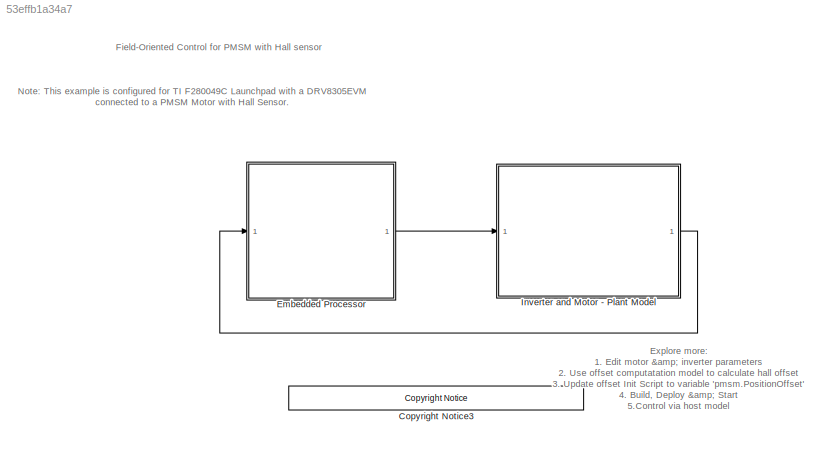
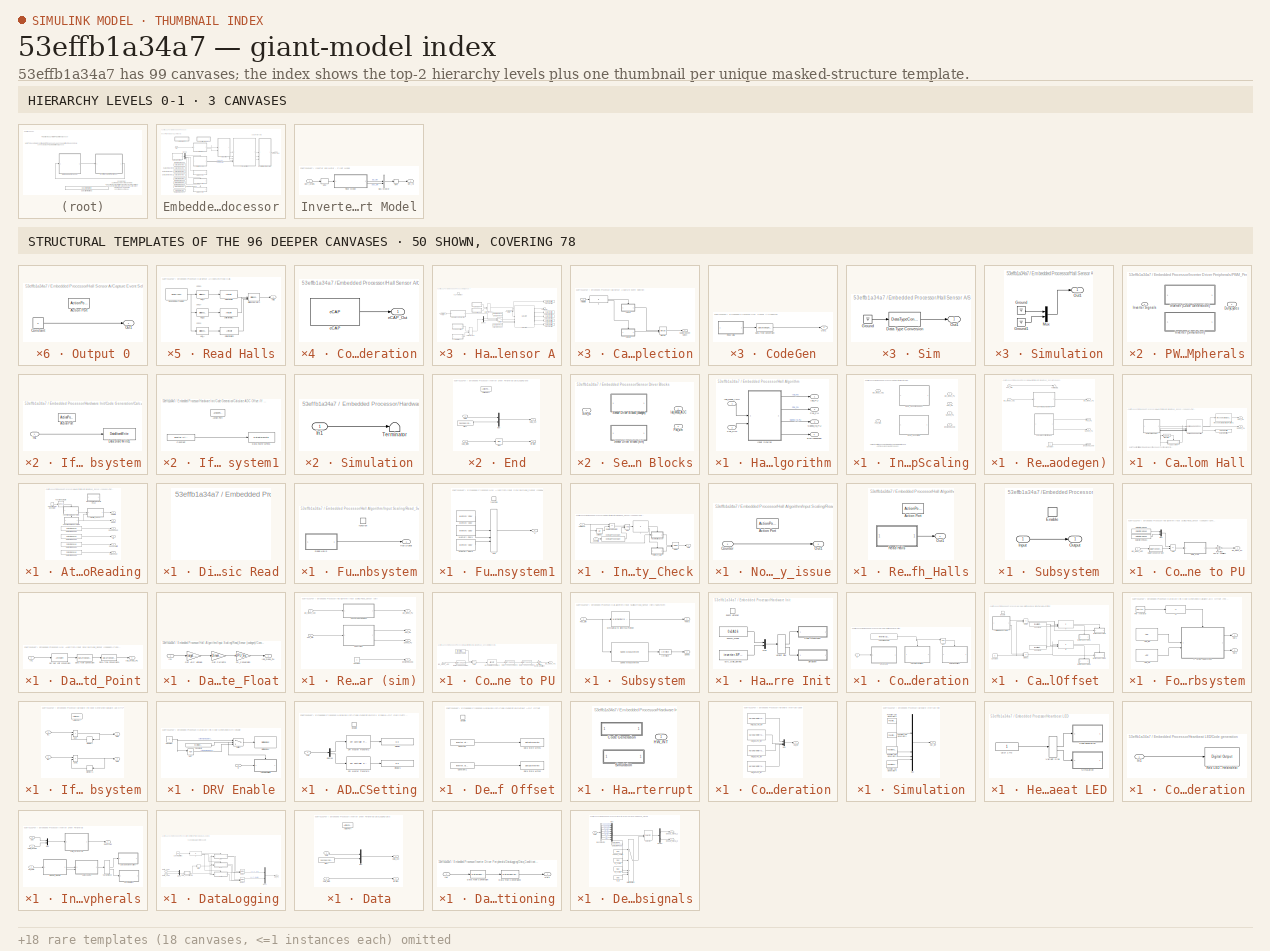
[diagram: thumbnail index - top-2 hierarchy levels (3 canvases) + 50 structural-template representatives of the remaining 96 canvases]
MODEL slx_53effb1a34a7
KIND model
CONFIG AbsTol = auto
CONFIG EnableMultiTasking = on
CONFIG FixedStep = auto
CONFIG InitFcn = position_decoder = 'hall';\nmcb_pmsm_foc_f280049C_data;\n
CONFIG MaxStep = auto
CONFIG MinStep = auto
CONFIG RelTol = 1e-3
CONFIG SampleTimeConstraint = Unconstrained
CONFIG SolverName = FixedStepDiscrete
CONFIG StartTime = 0.0
CONFIG StopTime = 8
BLOCK [Reference] <copyright redacted>
  SourceBlock = demo_controls/<copyright redacted>
  SourceType = <copyright redacted>
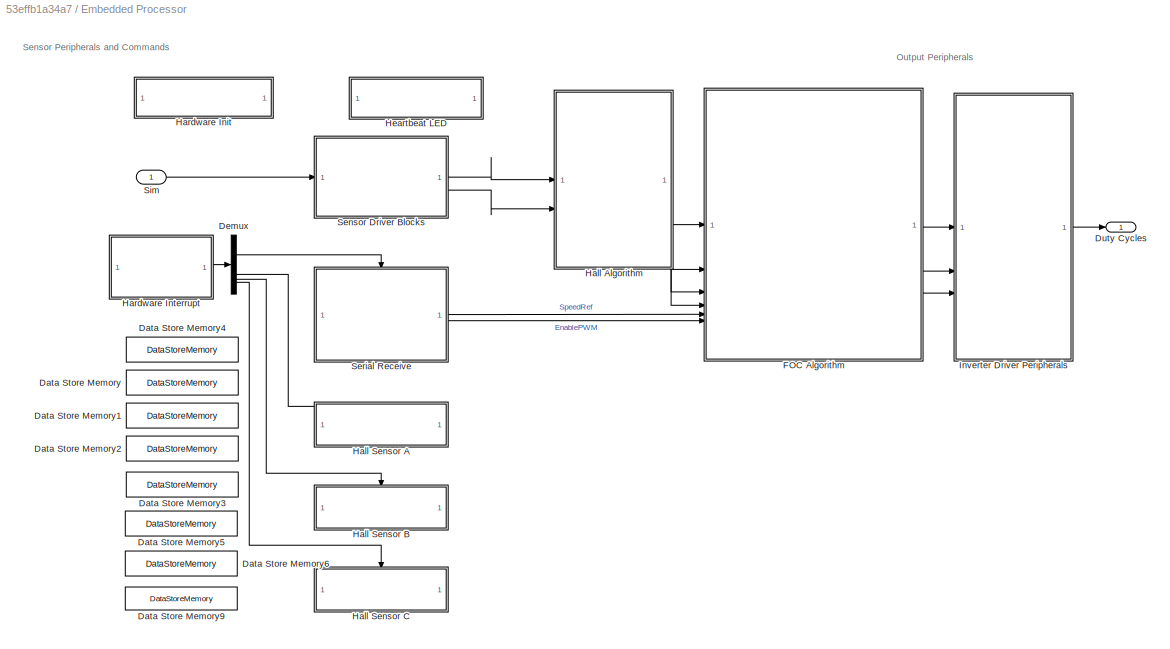
BLOCK [SubSystem] Embedded Processor
BLOCK [DataStoreMemory] Embedded Processor/Data Store Memory
  DataStoreName = HallStateChangeFlag
  ShowAdditionalParam = off
BLOCK [DataStoreMemory] Embedded Processor/Data Store Memory1
  DataStoreName = GlobalSpeedCount
  ShowAdditionalParam = off
BLOCK [DataStoreMemory] Embedded Processor/Data Store Memory2
  DataStoreName = GlobalSpeedValidity
  ShowAdditionalParam = off
BLOCK [DataStoreMemory] Embedded Processor/Data Store Memory3
  DataStoreName = GlobalDirection
  InitialValue = 1
  ShowAdditionalParam = off
BLOCK [DataStoreMemory] Embedded Processor/Data Store Memory4
  DataStoreName = GlobalHallState
  OutDataTypeStr = uint32
  ShowAdditionalParam = off
BLOCK [DataStoreMemory] Embedded Processor/Data Store Memory5
  DataStoreName = IaOffset
  InitialValue = inverter.CtSensAOffset
  ShowAdditionalParam = off
BLOCK [DataStoreMemory] Embedded Processor/Data Store Memory6
  DataStoreName = IbOffset
  InitialValue = inverter.CtSensBOffset
  ShowAdditionalParam = off
BLOCK [DataStoreMemory] Embedded Processor/Data Store Memory9
  DataStoreName = Debug_signals
  InitialValue = 1
  OutDataTypeStr = uint16
  ReadBeforeWriteMsg = warning
  ShowAdditionalParam = off
  WriteAfterReadMsg = warning
  WriteAfterWriteMsg = warning
BLOCK [Demux] Embedded Processor/Demux
BLOCK [Outport] Embedded Processor/Duty Cycles
BLOCK [SubSystem] Embedded Processor/FOC Algorithm
  ReferencedSubsystem = foc_hall_algorithm
BLOCK [SubSystem] Embedded Processor/Hall Algorithm
  RTWMemSecFuncExecute = code_ramfuncs
  RTWSystemCode = Nonreusable function
  TreatAsAtomicUnit = on
BLOCK [Outport] Embedded Processor/Hall Algorithm/EnClosedLoop
  Port = 4
BLOCK [Outport] Embedded Processor/Hall Algorithm/Iab_PU
BLOCK [Inport] Embedded Processor/Hall Algorithm/Iab_meas_ADC
BLOCK [SubSystem] Embedded Processor/Hall Algorithm/Input Scaling
  PropagateVariantConditions = on
  Variant = on
  VariantControl = Variant1
  VariantControlMode = sim codegen switching
BLOCK [Outport] Embedded Processor/Hall Algorithm/Input Scaling/EnClosedLoop
  Port = 4
  VectorParamsAs1DForOutWhenUnconnected = off
BLOCK [Outport] Embedded Processor/Hall Algorithm/Input Scaling/Iab_Meas_PU
  VectorParamsAs1DForOutWhenUnconnected = off
BLOCK [Inport] Embedded Processor/Hall Algorithm/Input Scaling/Iab_meas_ADC
BLOCK [Outport] Embedded Processor/Hall Algorithm/Input Scaling/Pos_PU
  Port = 2
  VectorParamsAs1DForOutWhenUnconnected = off
BLOCK [Inport] Embedded Processor/Hall Algorithm/Input Scaling/Pos_Sim
  Port = 2
BLOCK [SubSystem] Embedded Processor/Hall Algorithm/Input Scaling/Read_Sensor (codegen)
  VariantControl = (codegen)
BLOCK [SubSystem] Embedded Processor/Hall Algorithm/Input Scaling/Read_Sensor (codegen)/Calculate Position from Hall
BLOCK [SubSystem] Embedded Processor/Hall Algorithm/Input Scaling/Read_Sensor (codegen)/Calculate Position from Hall/Atomic Hall Reading
  RTWSystemCode = Nonreusable function
  TreatAsAtomicUnit = on
BLOCK [Outport] Embedded Processor/Hall Algorithm/Input Scaling/Read_Sensor (codegen)/Calculate Position from Hall/Atomic Hall Reading/Count
  Port = 2
BLOCK [DataStoreRead] Embedded Processor/Hall Algorithm/Input Scaling/Read_Sensor (codegen)/Calculate Position from Hall/Atomic Hall Reading/Data Store Read2
  DataStoreName = GlobalSpeedCount
  IndexOptions = Index vector (dialog)
  Indices = 1
  OutputSizes = 1
BLOCK [DataStoreRead] Embedded Processor/Hall Algorithm/Input Scaling/Read_Sensor (codegen)/Calculate Position from Hall/Atomic Hall Reading/Data Store Read3
  DataStoreName = GlobalDirection
  IndexOptions = Index vector (dialog)
  Indices = 1
  OutputSizes = 1
BLOCK [DataStoreRead] Embedded Processor/Hall Algorithm/Input Scaling/Read_Sensor (codegen)/Calculate Position from Hall/Atomic Hall Reading/Data Store Read4
  DataStoreName = GlobalSpeedValidity
  IndexOptions = Index vector (dialog)
  Indices = 1
  OutputSizes = 1
BLOCK [DataStoreRead] Embedded Processor/Hall Algorithm/Input Scaling/Read_Sensor (codegen)/Calculate Position from Hall/Atomic Hall Reading/Data Store Read5
  DataStoreName = HallStateChangeFlag
  IndexOptions = Index vector (dialog)
  Indices = 1
  OutputSizes = 1
  Priority = 1
BLOCK [Outport] Embedded Processor/Hall Algorithm/Input Scaling/Read_Sensor (codegen)/Calculate Position from Hall/Atomic Hall Reading/Dir
  Port = 4
BLOCK [SubSystem] Embedded Processor/Hall Algorithm/Input Scaling/Read_Sensor (codegen)/Calculate Position from Hall/Atomic Hall Reading/Disable Interrupts for Atomic Read
  CopyFcn = cccopyfcn(gcb)
  OpenFcn = ccopenfcn('System Outputs Function')
BLOCK [FunctionCallGenerator] Embedded Processor/Hall Algorithm/Input Scaling/Read_Sensor (codegen)/Calculate Position from Hall/Atomic Hall Reading/Function-Call Generator
  SampleTime = -1
BLOCK [FunctionCallSplit] Embedded Processor/Hall Algorithm/Input Scaling/Read_Sensor (codegen)/Calculate Position from Hall/Atomic Hall Reading/Function-Call Split
  NumOutputPorts = 2
  OutputPortLayout = default
BLOCK [SubSystem] Embedded Processor/Hall Algorithm/Input Scaling/Read_Sensor (codegen)/Calculate Position from Hall/Atomic Hall Reading/Function-Call Subsystem
  TreatAsAtomicUnit = on
BLOCK [Outport] Embedded Processor/Hall Algorithm/Input Scaling/Read_Sensor (codegen)/Calculate Position from Hall/Atomic Hall Reading/Function-Call Subsystem/HallSignal
BLOCK [SubSystem] Embedded Processor/Hall Algorithm/Input Scaling/Read_Sensor (codegen)/Calculate Position from Hall/Atomic Hall Reading/Function-Call Subsystem/Read Halls
BLOCK [Reference] Embedded Processor/Hall Algorithm/Input Scaling/Read_Sensor (codegen)/Calculate Position from Hall/Atomic Hall Reading/Function-Call Subsystem/Read Halls/Bitwise Operator2  REF=simulink/Logic and Bit
Operations/Bitwise
Operator
  SourceBlock = simulink/Logic and Bit\nOperations/Bitwise\nOperator
  SourceType = Bitwise Operator
BLOCK [Reference] Embedded Processor/Hall Algorithm/Input Scaling/Read_Sensor (codegen)/Calculate Position from Hall/Atomic Hall Reading/Function-Call Subsystem/Read Halls/Hall_A  REF=simulink/Logic and Bit
Operations/Bitwise
Operator
  SourceBlock = simulink/Logic and Bit\nOperations/Bitwise\nOperator
  SourceType = Bitwise Operator
BLOCK [Reference] Embedded Processor/Hall Algorithm/Input Scaling/Read_Sensor (codegen)/Calculate Position from Hall/Atomic Hall Reading/Function-Call Subsystem/Read Halls/Hall_B  REF=simulink/Logic and Bit
Operations/Bitwise
Operator
  SourceBlock = simulink/Logic and Bit\nOperations/Bitwise\nOperator
  SourceType = Bitwise Operator
BLOCK [Reference] Embedded Processor/Hall Algorithm/Input Scaling/Read_Sensor (codegen)/Calculate Position from Hall/Atomic Hall Reading/Function-Call Subsystem/Read Halls/Hall_C  REF=simulink/Logic and Bit
Operations/Bitwise
Operator
  SourceBlock = simulink/Logic and Bit\nOperations/Bitwise\nOperator
  SourceType = Bitwise Operator
BLOCK [Outport] Embedded Processor/Hall Algorithm/Input Scaling/Read_Sensor (codegen)/Calculate Position from Hall/Atomic Hall Reading/Function-Call Subsystem/Read Halls/Halls
BLOCK [Reference] Embedded Processor/Hall Algorithm/Input Scaling/Read_Sensor (codegen)/Calculate Position from Hall/Atomic Hall Reading/Function-Call Subsystem/Read Halls/Read GPIO DAT register  REF=idelinklib_common/Memory Copy
  SourceBlock = idelinklib_common/Memory Copy
  SourceType = Memory Copy
BLOCK [ArithShift] Embedded Processor/Hall Algorithm/Input Scaling/Read_Sensor (codegen)/Calculate Position from Hall/Atomic Hall Reading/Function-Call Subsystem/Read Halls/Shift Arithmetic
  BitShiftNumber = 25
  InputPortMap = u0
BLOCK [ArithShift] Embedded Processor/Hall Algorithm/Input Scaling/Read_Sensor (codegen)/Calculate Position from Hall/Atomic Hall Reading/Function-Call Subsystem/Read Halls/Shift Arithmetic1
  BitShiftNumber = 4
  InputPortMap = u0
BLOCK [ArithShift] Embedded Processor/Hall Algorithm/Input Scaling/Read_Sensor (codegen)/Calculate Position from Hall/Atomic Hall Reading/Function-Call Subsystem/Read Halls/Shift Arithmetic2
  BitShiftNumber = 3
  InputPortMap = u0
BLOCK [TriggerPort] Embedded Processor/Hall Algorithm/Input Scaling/Read_Sensor (codegen)/Calculate Position from Hall/Atomic Hall Reading/Function-Call Subsystem/function
  StatesWhenEnabling = held
  TriggerType = function-call
  VariantControl = Variant
BLOCK [SubSystem] Embedded Processor/Hall Algorithm/Input Scaling/Read_Sensor (codegen)/Calculate Position from Hall/Atomic Hall Reading/Function-Call Subsystem1
  TreatAsAtomicUnit = on
BLOCK [Reference] Embedded Processor/Hall Algorithm/Input Scaling/Read_Sensor (codegen)/Calculate Position from Hall/Atomic Hall Reading/Function-Call Subsystem1/Memory Copy  REF=idelinklib_common/Memory Copy
  SourceBlock = idelinklib_common/Memory Copy
  SourceType = Memory Copy
BLOCK [Reference] Embedded Processor/Hall Algorithm/Input Scaling/Read_Sensor (codegen)/Calculate Position from Hall/Atomic Hall Reading/Function-Call Subsystem1/Memory Copy1  REF=idelinklib_common/Memory Copy
  SourceBlock = idelinklib_common/Memory Copy
  SourceType = Memory Copy
BLOCK [Reference] Embedded Processor/Hall Algorithm/Input Scaling/Read_Sensor (codegen)/Calculate Position from Hall/Atomic Hall Reading/Function-Call Subsystem1/Memory Copy2  REF=idelinklib_common/Memory Copy
  SourceBlock = idelinklib_common/Memory Copy
  SourceType = Memory Copy
BLOCK [MinMax] Embedded Processor/Hall Algorithm/Input Scaling/Read_Sensor (codegen)/Calculate Position from Hall/Atomic Hall Reading/Function-Call Subsystem1/Min
  Inputs = 3
BLOCK [TriggerPort] Embedded Processor/Hall Algorithm/Input Scaling/Read_Sensor (codegen)/Calculate Position from Hall/Atomic Hall Reading/Function-Call Subsystem1/function
  StatesWhenEnabling = held
  TriggerType = function-call
  VariantControl = Variant
BLOCK [Outport] Embedded Processor/Hall Algorithm/Input Scaling/Read_Sensor (codegen)/Calculate Position from Hall/Atomic Hall Reading/Function-Call Subsystem1/u
BLOCK [Outport] Embedded Processor/Hall Algorithm/Input Scaling/Read_Sensor (codegen)/Calculate Position from Hall/Atomic Hall Reading/HallChange
  Port = 6
BLOCK [Outport] Embedded Processor/Hall Algorithm/Input Scaling/Read_Sensor (codegen)/Calculate Position from Hall/Atomic Hall Reading/HallState
BLOCK [SubSystem] Embedded Processor/Hall Algorithm/Input Scaling/Read_Sensor (codegen)/Calculate Position from Hall/Atomic Hall Reading/Integrity_Check
BLOCK [Reference] Embedded Processor/Hall Algorithm/Input Scaling/Read_Sensor (codegen)/Calculate Position from Hall/Atomic Hall Reading/Integrity_Check/Compare To Constant  REF=simulink/Logic and Bit
Operations/Compare
To Constant
  SourceBlock = simulink/Logic and Bit\nOperations/Compare\nTo Constant
  SourceType = Compare To Constant
BLOCK [Inport] Embedded Processor/Hall Algorithm/Input Scaling/Read_Sensor (codegen)/Calculate Position from Hall/Atomic Hall Reading/Integrity_Check/CounterIn
  Port = 2
BLOCK [Inport] Embedded Processor/Hall Algorithm/Input Scaling/Read_Sensor (codegen)/Calculate Position from Hall/Atomic Hall Reading/Integrity_Check/HallSignal
BLOCK [Outport] Embedded Processor/Hall Algorithm/Input Scaling/Read_Sensor (codegen)/Calculate Position from Hall/Atomic Hall Reading/Integrity_Check/Halls
BLOCK [If] Embedded Processor/Hall Algorithm/Input Scaling/Read_Sensor (codegen)/Calculate Position from Hall/Atomic Hall Reading/Integrity_Check/If
  IfExpression = u1 == 0
BLOCK [Merge] Embedded Processor/Hall Algorithm/Input Scaling/Read_Sensor (codegen)/Calculate Position from Hall/Atomic Hall Reading/Integrity_Check/Merge
BLOCK [Logic] Embedded Processor/Hall Algorithm/Input Scaling/Read_Sensor (codegen)/Calculate Position from Hall/Atomic Hall Reading/Integrity_Check/NOT
  AllPortsSameDT = off
  IconShape = distinctive
  OutDataTypeStr = boolean
BLOCK [SubSystem] Embedded Processor/Hall Algorithm/Input Scaling/Read_Sensor (codegen)/Calculate Position from Hall/Atomic Hall Reading/Integrity_Check/No_Integrity_issue
  TreatAsAtomicUnit = on
BLOCK [ActionPort] Embedded Processor/Hall Algorithm/Input Scaling/Read_Sensor (codegen)/Calculate Position from Hall/Atomic Hall Reading/Integrity_Check/No_Integrity_issue/Action Port
  ActionPortLabel = if(u1 == 0)
BLOCK [Inport] Embedded Processor/Hall Algorithm/Input Scaling/Read_Sensor (codegen)/Calculate Position from Hall/Atomic Hall Reading/Integrity_Check/No_Integrity_issue/Counter
BLOCK [Outport] Embedded Processor/Hall Algorithm/Input Scaling/Read_Sensor (codegen)/Calculate Position from Hall/Atomic Hall Reading/Integrity_Check/No_Integrity_issue/Out1
BLOCK [SubSystem] Embedded Processor/Hall Algorithm/Input Scaling/Read_Sensor (codegen)/Calculate Position from Hall/Atomic Hall Reading/Integrity_Check/Refresh_Halls
  TreatAsAtomicUnit = on
BLOCK [ActionPort] Embedded Processor/Hall Algorithm/Input Scaling/Read_Sensor (codegen)/Calculate Position from Hall/Atomic Hall Reading/Integrity_Check/Refresh_Halls/Action Port
  ActionPortLabel = else
BLOCK [Outport] Embedded Processor/Hall Algorithm/Input Scaling/Read_Sensor (codegen)/Calculate Position from Hall/Atomic Hall Reading/Integrity_Check/Refresh_Halls/Out1
BLOCK [SubSystem] Embedded Processor/Hall Algorithm/Input Scaling/Read_Sensor (codegen)/Calculate Position from Hall/Atomic Hall Reading/Integrity_Check/Refresh_Halls/Read Halls
BLOCK [Reference] Embedded Processor/Hall Algorithm/Input Scaling/Read_Sensor (codegen)/Calculate Position from Hall/Atomic Hall Reading/Integrity_Check/Refresh_Halls/Read Halls/Bitwise Operator2  REF=simulink/Logic and Bit
Operations/Bitwise
Operator
  SourceBlock = simulink/Logic and Bit\nOperations/Bitwise\nOperator
  SourceType = Bitwise Operator
BLOCK [Reference] Embedded Processor/Hall Algorithm/Input Scaling/Read_Sensor (codegen)/Calculate Position from Hall/Atomic Hall Reading/Integrity_Check/Refresh_Halls/Read Halls/Hall_A  REF=simulink/Logic and Bit
Operations/Bitwise
Operator
  SourceBlock = simulink/Logic and Bit\nOperations/Bitwise\nOperator
  SourceType = Bitwise Operator
BLOCK [Reference] Embedded Processor/Hall Algorithm/Input Scaling/Read_Sensor (codegen)/Calculate Position from Hall/Atomic Hall Reading/Integrity_Check/Refresh_Halls/Read Halls/Hall_B  REF=simulink/Logic and Bit
Operations/Bitwise
Operator
  SourceBlock = simulink/Logic and Bit\nOperations/Bitwise\nOperator
  SourceType = Bitwise Operator
BLOCK [Reference] Embedded Processor/Hall Algorithm/Input Scaling/Read_Sensor (codegen)/Calculate Position from Hall/Atomic Hall Reading/Integrity_Check/Refresh_Halls/Read Halls/Hall_C  REF=simulink/Logic and Bit
Operations/Bitwise
Operator
  SourceBlock = simulink/Logic and Bit\nOperations/Bitwise\nOperator
  SourceType = Bitwise Operator
BLOCK [Outport] Embedded Processor/Hall Algorithm/Input Scaling/Read_Sensor (codegen)/Calculate Position from Hall/Atomic Hall Reading/Integrity_Check/Refresh_Halls/Read Halls/Halls
BLOCK [Reference] Embedded Processor/Hall Algorithm/Input Scaling/Read_Sensor (codegen)/Calculate Position from Hall/Atomic Hall Reading/Integrity_Check/Refresh_Halls/Read Halls/Read GPIO DAT register  REF=idelinklib_common/Memory Copy
  SourceBlock = idelinklib_common/Memory Copy
  SourceType = Memory Copy
BLOCK [ArithShift] Embedded Processor/Hall Algorithm/Input Scaling/Read_Sensor (codegen)/Calculate Position from Hall/Atomic Hall Reading/Integrity_Check/Refresh_Halls/Read Halls/Shift Arithmetic
  BitShiftNumber = 25
  InputPortMap = u0
BLOCK [ArithShift] Embedded Processor/Hall Algorithm/Input Scaling/Read_Sensor (codegen)/Calculate Position from Hall/Atomic Hall Reading/Integrity_Check/Refresh_Halls/Read Halls/Shift Arithmetic1
  BitShiftNumber = 4
  InputPortMap = u0
BLOCK [ArithShift] Embedded Processor/Hall Algorithm/Input Scaling/Read_Sensor (codegen)/Calculate Position from Hall/Atomic Hall Reading/Integrity_Check/Refresh_Halls/Read Halls/Shift Arithmetic2
  BitShiftNumber = 3
  InputPortMap = u0
BLOCK [RelationalOperator] Embedded Processor/Hall Algorithm/Input Scaling/Read_Sensor (codegen)/Calculate Position from Hall/Atomic Hall Reading/Integrity_Check/Relational Operator
  InputSameDT = off
  Operator = ==
  OutDataTypeStr = boolean
  RndMeth = Simplest
BLOCK [UnitDelay] Embedded Processor/Hall Algorithm/Input Scaling/Read_Sensor (codegen)/Calculate Position from Hall/Atomic Hall Reading/Integrity_Check/Unit Delay
  HasFrameUpgradeWarning = on
  SampleTime = -1
BLOCK [Outport] Embedded Processor/Hall Algorithm/Input Scaling/Read_Sensor (codegen)/Calculate Position from Hall/Atomic Hall Reading/SpeedCount
  Port = 3
BLOCK [Outport] Embedded Processor/Hall Algorithm/Input Scaling/Read_Sensor (codegen)/Calculate Position from Hall/Atomic Hall Reading/SpeedValidity
  Port = 5
BLOCK [DataStoreWrite] Embedded Processor/Hall Algorithm/Input Scaling/Read_Sensor (codegen)/Calculate Position from Hall/Data Store Write2
  DataStoreName = HallStateChangeFlag
  IndexOptions = Index vector (dialog)
  Indices = 1
  OutputSizes = 1
  Priority = 2
BLOCK [Reference] Embedded Processor/Hall Algorithm/Input Scaling/Read_Sensor (codegen)/Calculate Position from Hall/Glitch Filter  REF=simulink/Logic and Bit
Operations/Compare
To Constant
  SourceBlock = simulink/Logic and Bit\nOperations/Compare\nTo Constant
  SourceType = Compare To Constant
BLOCK [Reference] Embedded Processor/Hall Algorithm/Input Scaling/Read_Sensor (codegen)/Calculate Position from Hall/Hall Speed and Position  REF=mcbpositiondecoderlib/Hall Speed and Position
  SourceBlock = mcbpositiondecoderlib/Hall Speed and Position
  SourceType = Hall Speed and Position
BLOCK [Reference] Embedded Processor/Hall Algorithm/Input Scaling/Read_Sensor (codegen)/Calculate Position from Hall/Mechanical to Electrical Position1  REF=mcbpositiondecoderlib/Mechanical to Electrical Position
  SourceBlock = mcbpositiondecoderlib/Mechanical to Electrical Position
  SourceType = Mechanical to Electrical Position
BLOCK [Outport] Embedded Processor/Hall Algorithm/Input Scaling/Read_Sensor (codegen)/Calculate Position from Hall/Pos_PU
  InitialOutput = 0
  VectorParamsAs1DForOutWhenUnconnected = off
BLOCK [Outport] Embedded Processor/Hall Algorithm/Input Scaling/Read_Sensor (codegen)/Calculate Position from Hall/Speed_PU
  InitialOutput = 0
  Port = 2
  VectorParamsAs1DForOutWhenUnconnected = off
BLOCK [SubSystem] Embedded Processor/Hall Algorithm/Input Scaling/Read_Sensor (codegen)/Calculate Position from Hall/Subsystem
BLOCK [EnablePort] Embedded Processor/Hall Algorithm/Input Scaling/Read_Sensor (codegen)/Calculate Position from Hall/Subsystem/Enable
BLOCK [Inport] Embedded Processor/Hall Algorithm/Input Scaling/Read_Sensor (codegen)/Calculate Position from Hall/Subsystem/Input
BLOCK [Outport] Embedded Processor/Hall Algorithm/Input Scaling/Read_Sensor (codegen)/Calculate Position from Hall/Subsystem/Output
BLOCK [Constant] Embedded Processor/Hall Algorithm/Input Scaling/Read_Sensor (codegen)/Constant
  OutDataTypeStr = boolean
BLOCK [SubSystem] Embedded Processor/Hall Algorithm/Input Scaling/Read_Sensor (codegen)/Convert ADC value to PU
BLOCK [Sum] Embedded Processor/Hall Algorithm/Input Scaling/Read_Sensor (codegen)/Convert ADC value to PU/Add
  IconShape = rectangular
  Inputs = -+
BLOCK [DataStoreRead] Embedded Processor/Hall Algorithm/Input Scaling/Read_Sensor (codegen)/Convert ADC value to PU/Data Store Read
  DataStoreName = IaOffset
  IndexOptions = Index vector (dialog)
  Indices = 1
  OutputSizes = 1
BLOCK [DataStoreRead] Embedded Processor/Hall Algorithm/Input Scaling/Read_Sensor (codegen)/Convert ADC value to PU/Data Store Read1
  DataStoreName = IbOffset
  IndexOptions = Index vector (dialog)
  Indices = 1
  OutputSizes = 1
BLOCK [DataTypeConversion] Embedded Processor/Hall Algorithm/Input Scaling/Read_Sensor (codegen)/Convert ADC value to PU/Data Type Conversion
  ConvertRealWorld = Stored Integer (SI)
  OutDataTypeStr = int32
  RndMeth = Floor
  SaturateOnIntegerOverflow = off
BLOCK [SubSystem] Embedded Processor/Hall Algorithm/Input Scaling/Read_Sensor (codegen)/Convert ADC value to PU/Data_Type
  Variant = on
BLOCK [SubSystem] Embedded Processor/Hall Algorithm/Input Scaling/Read_Sensor (codegen)/Convert ADC value to PU/Data_Type/Data_Type_Fixed_Point
  VariantControl = ~isequal(dataType,'single')
BLOCK [DataTypeConversion] Embedded Processor/Hall Algorithm/Input Scaling/Read_Sensor (codegen)/Convert ADC value to PU/Data_Type/Data_Type_Fixed_Point/Data Type Conversion
  ConvertRealWorld = Stored Integer (SI)
  OutDataTypeStr = fixdt(1,32,17)
  RndMeth = Simplest
  SaturateOnIntegerOverflow = off
BLOCK [DataTypeConversion] Embedded Processor/Hall Algorithm/Input Scaling/Read_Sensor (codegen)/Convert ADC value to PU/Data_Type/Data_Type_Fixed_Point/Data Type Conversion1
  OutDataTypeStr = dataType
  RndMeth = Simplest
  SaturateOnIntegerOverflow = off
BLOCK [Outport] Embedded Processor/Hall Algorithm/Input Scaling/Read_Sensor (codegen)/Convert ADC value to PU/Data_Type/Data_Type_Fixed_Point/Iab_meas_PU
BLOCK [Inport] Embedded Processor/Hall Algorithm/Input Scaling/Read_Sensor (codegen)/Convert ADC value to PU/Data_Type/Data_Type_Fixed_Point/In1
BLOCK [ArithShift] Embedded Processor/Hall Algorithm/Input Scaling/Read_Sensor (codegen)/Convert ADC value to PU/Data_Type/Data_Type_Fixed_Point/Q17 per unit conversion
  BitShiftNumber = -6
  InputPortMap = u0
BLOCK [SubSystem] Embedded Processor/Hall Algorithm/Input Scaling/Read_Sensor (codegen)/Convert ADC value to PU/Data_Type/Data_Type_Float
  VariantControl = isequal(dataType,'single')
BLOCK [Gain] Embedded Processor/Hall Algorithm/Input Scaling/Read_Sensor (codegen)/Convert ADC value to PU/Data_Type/Data_Type_Float/Get ADC Voltage
  Gain = target.ADC_Vref /target.ADC_MaxCount
  OutDataTypeStr = dataType
  RndMeth = Simplest
BLOCK [Gain] Embedded Processor/Hall Algorithm/Input Scaling/Read_Sensor (codegen)/Convert ADC value to PU/Data_Type/Data_Type_Float/Get Currents
  Gain = 1/inverter.ISenseVoltPerAmp
  OutDataTypeStr = Inherit: Same as input
  RndMeth = Simplest
BLOCK [Outport] Embedded Processor/Hall Algorithm/Input Scaling/Read_Sensor (codegen)/Convert ADC value to PU/Data_Type/Data_Type_Float/Iab_meas_PU
BLOCK [Inport] Embedded Processor/Hall Algorithm/Input Scaling/Read_Sensor (codegen)/Convert ADC value to PU/Data_Type/Data_Type_Float/In1
BLOCK [Gain] Embedded Processor/Hall Algorithm/Input Scaling/Read_Sensor (codegen)/Convert ADC value to PU/Data_Type/Data_Type_Float/PU_Conversion
  Gain = 1/PU_System.I_base
  OutDataTypeStr = Inherit: Same as input
  RndMeth = Simplest
BLOCK [Outport] Embedded Processor/Hall Algorithm/Input Scaling/Read_Sensor (codegen)/Convert ADC value to PU/Data_Type/Iab_meas_PU
BLOCK [Inport] Embedded Processor/Hall Algorithm/Input Scaling/Read_Sensor (codegen)/Convert ADC value to PU/Data_Type/In1
BLOCK [Inport] Embedded Processor/Hall Algorithm/Input Scaling/Read_Sensor (codegen)/Convert ADC value to PU/Iab_meas_ADC
BLOCK [Outport] Embedded Processor/Hall Algorithm/Input Scaling/Read_Sensor (codegen)/Convert ADC value to PU/Iab_meas_PU
BLOCK [Gain] Embedded Processor/Hall Algorithm/Input Scaling/Read_Sensor (codegen)/Convert ADC value to PU/Inverting // Non-inverting Current measurement amplifieer
  Gain = inverter.invertingAmp
  OutDataTypeStr = Inherit: Same as input
  RndMeth = Simplest
BLOCK [Mux] Embedded Processor/Hall Algorithm/Input Scaling/Read_Sensor (codegen)/Convert ADC value to PU/Mux
  DisplayOption = bar
  Inputs = 2
BLOCK [Outport] Embedded Processor/Hall Algorithm/Input Scaling/Read_Sensor (codegen)/EnClosedLoop
  Port = 4
  VectorParamsAs1DForOutWhenUnconnected = off
BLOCK [Outport] Embedded Processor/Hall Algorithm/Input Scaling/Read_Sensor (codegen)/Iab_Meas_PU
  VectorParamsAs1DForOutWhenUnconnected = off
BLOCK [Inport] Embedded Processor/Hall Algorithm/Input Scaling/Read_Sensor (codegen)/Iab_meas_ADC
  OutDataTypeStr = uint16
BLOCK [Outport] Embedded Processor/Hall Algorithm/Input Scaling/Read_Sensor (codegen)/Pos_PU
  Port = 2
  VectorParamsAs1DForOutWhenUnconnected = off
BLOCK [Inport] Embedded Processor/Hall Algorithm/Input Scaling/Read_Sensor (codegen)/Pos_Sim
  OutDataTypeStr = uint16
  Port = 2
BLOCK [Outport] Embedded Processor/Hall Algorithm/Input Scaling/Read_Sensor (codegen)/Speed_PU
  Port = 3
  VectorParamsAs1DForOutWhenUnconnected = off
BLOCK [Terminator] Embedded Processor/Hall Algorithm/Input Scaling/Read_Sensor (codegen)/Terminator1
BLOCK [SubSystem] Embedded Processor/Hall Algorithm/Input Scaling/Read_Sensor (sim)
  VariantControl = (sim)
BLOCK [Constant] Embedded Processor/Hall Algorithm/Input Scaling/Read_Sensor (sim)/Constant
  OutDataTypeStr = boolean
BLOCK [SubSystem] Embedded Processor/Hall Algorithm/Input Scaling/Read_Sensor (sim)/Convert ADC value to PU
BLOCK [Constant] Embedded Processor/Hall Algorithm/Input Scaling/Read_Sensor (sim)/Convert ADC value to PU/0A in ADC counts
  OutDataTypeStr = int32
  SampleTime = -1
  Value = [inverter.CtSensAOffset inverter.CtSensBOffset]
BLOCK [Sum] Embedded Processor/Hall Algorithm/Input Scaling/Read_Sensor (sim)/Convert ADC value to PU/Add
  IconShape = rectangular
  Inputs = -+
BLOCK [DataTypeConversion] Embedded Processor/Hall Algorithm/Input Scaling/Read_Sensor (sim)/Convert ADC value to PU/Data Type Conversion
  ConvertRealWorld = Stored Integer (SI)
  OutDataTypeStr = int32
  RndMeth = Floor
  SaturateOnIntegerOverflow = off
BLOCK [DataTypeConversion] Embedded Processor/Hall Algorithm/Input Scaling/Read_Sensor (sim)/Convert ADC value to PU/Data Type Conversion1
  OutDataTypeStr = dataType
  RndMeth = Floor
  SaturateOnIntegerOverflow = off
BLOCK [DataTypeConversion] Embedded Processor/Hall Algorithm/Input Scaling/Read_Sensor (sim)/Convert ADC value to PU/Data Type Conversion3
  ConvertRealWorld = Stored Integer (SI)
  OutDataTypeStr = fixdt(1,32,17)
  RndMeth = Simplest
  SaturateOnIntegerOverflow = off
BLOCK [Inport] Embedded Processor/Hall Algorithm/Input Scaling/Read_Sensor (sim)/Convert ADC value to PU/Iab_meas_ADC
BLOCK [Outport] Embedded Processor/Hall Algorithm/Input Scaling/Read_Sensor (sim)/Convert ADC value to PU/Iab_meas_PU
  InitialOutput = 0
  VectorParamsAs1DForOutWhenUnconnected = off
BLOCK [Gain] Embedded Processor/Hall Algorithm/Input Scaling/Read_Sensor (sim)/Convert ADC value to PU/Inverting // Non-inverting Current measurement amplifieer
  Gain = inverter.invertingAmp
  OutDataTypeStr = Inherit: Same as input
  RndMeth = Simplest
BLOCK [ArithShift] Embedded Processor/Hall Algorithm/Input Scaling/Read_Sensor (sim)/Convert ADC value to PU/Q17 per unit conversion
  BitShiftNumber = -6
  InputPortMap = u0
BLOCK [Outport] Embedded Processor/Hall Algorithm/Input Scaling/Read_Sensor (sim)/EnClosedLoop
  Port = 4
  VectorParamsAs1DForOutWhenUnconnected = off
BLOCK [Outport] Embedded Processor/Hall Algorithm/Input Scaling/Read_Sensor (sim)/Iab_Meas_PU
  VectorParamsAs1DForOutWhenUnconnected = off
BLOCK [Inport] Embedded Processor/Hall Algorithm/Input Scaling/Read_Sensor (sim)/Iab_meas_ADC
BLOCK [Outport] Embedded Processor/Hall Algorithm/Input Scaling/Read_Sensor (sim)/Pos_PU
  Port = 2
  VectorParamsAs1DForOutWhenUnconnected = off
BLOCK [Inport] Embedded Processor/Hall Algorithm/Input Scaling/Read_Sensor (sim)/Pos_Sim
  Port = 2
BLOCK [Outport] Embedded Processor/Hall Algorithm/Input Scaling/Read_Sensor (sim)/Speed_PU
  Port = 3
  VectorParamsAs1DForOutWhenUnconnected = off
BLOCK [SubSystem] Embedded Processor/Hall Algorithm/Input Scaling/Read_Sensor (sim)/Subsystem
BLOCK [Reference] Embedded Processor/Hall Algorithm/Input Scaling/Read_Sensor (sim)/Subsystem/IIR Filter  REF=mcbcontrolslib/IIR Filter
  SourceBlock = mcbcontrolslib/IIR Filter
  SourceType = IIR Filter
BLOCK [Reference] Embedded Processor/Hall Algorithm/Input Scaling/Read_Sensor (sim)/Subsystem/Mechanical to Electrical Position  REF=mcbpositiondecoderlib/Mechanical to Electrical Position
  SourceBlock = mcbpositiondecoderlib/Mechanical to Electrical Position
  SourceType = Mechanical to Electrical Position
BLOCK [Inport] Embedded Processor/Hall Algorithm/Input Scaling/Read_Sensor (sim)/Subsystem/Pos_Sim
BLOCK [Outport] Embedded Processor/Hall Algorithm/Input Scaling/Read_Sensor (sim)/Subsystem/Speed
  Port = 2
BLOCK [Reference] Embedded Processor/Hall Algorithm/Input Scaling/Read_Sensor (sim)/Subsystem/Speed Measurement  REF=mcbpositiondecoderlib/Speed Measurement
  SourceBlock = mcbpositiondecoderlib/Speed Measurement
  SourceType = Speed Measurement
BLOCK [Outport] Embedded Processor/Hall Algorithm/Input Scaling/Read_Sensor (sim)/Subsystem/Theta
BLOCK [Outport] Embedded Processor/Hall Algorithm/Input Scaling/Speed_PU
  Port = 3
  VectorParamsAs1DForOutWhenUnconnected = off
BLOCK [Outport] Embedded Processor/Hall Algorithm/Pos_PU
  Port = 2
BLOCK [Inport] Embedded Processor/Hall Algorithm/Pos_Sim
  Port = 2
BLOCK [Outport] Embedded Processor/Hall Algorithm/Speed_fb_PU
  Port = 3
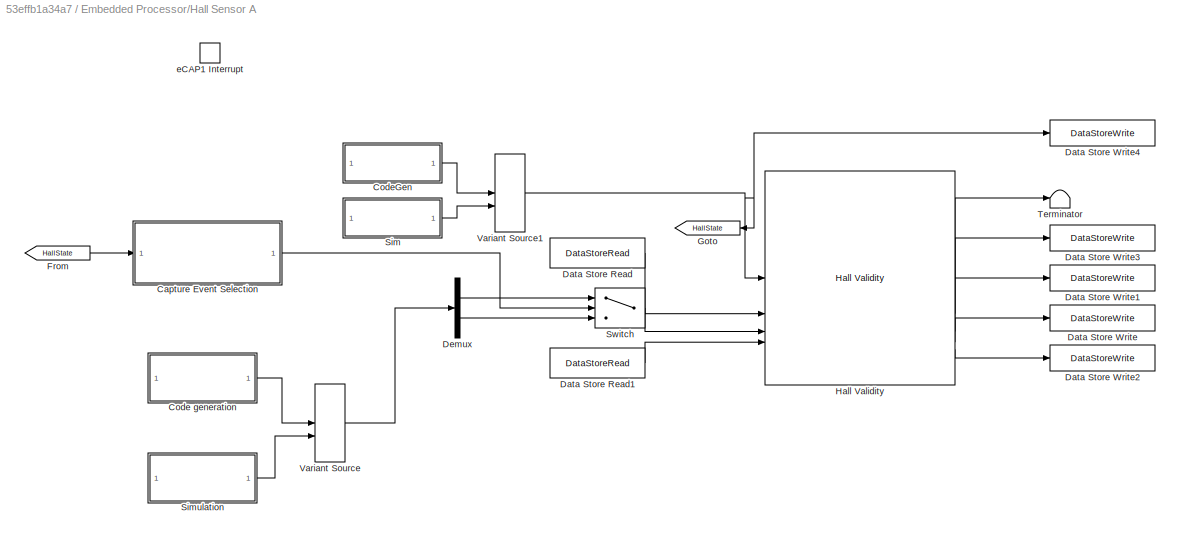
BLOCK [SubSystem] Embedded Processor/Hall Sensor A
BLOCK [SubSystem] Embedded Processor/Hall Sensor A/Capture Event Selection
BLOCK [Outport] Embedded Processor/Hall Sensor A/Capture Event Selection/Capture Event Select
BLOCK [Inport] Embedded Processor/Hall Sensor A/Capture Event Selection/Hall State
BLOCK [If] Embedded Processor/Hall Sensor A/Capture Event Selection/If
  IfExpression = (u1 == 5 | u1 == 3)
BLOCK [Merge] Embedded Processor/Hall Sensor A/Capture Event Selection/Merge
BLOCK [SubSystem] Embedded Processor/Hall Sensor A/Capture Event Selection/Output 0
  TreatAsAtomicUnit = on
BLOCK [ActionPort] Embedded Processor/Hall Sensor A/Capture Event Selection/Output 0/Action Port
  ActionPortLabel = else
BLOCK [Constant] Embedded Processor/Hall Sensor A/Capture Event Selection/Output 0/Constant
  OutDataTypeStr = boolean
  Value = 0
BLOCK [Outport] Embedded Processor/Hall Sensor A/Capture Event Selection/Output 0/Out1
BLOCK [SubSystem] Embedded Processor/Hall Sensor A/Capture Event Selection/Output 1
  TreatAsAtomicUnit = on
BLOCK [ActionPort] Embedded Processor/Hall Sensor A/Capture Event Selection/Output 1/Action Port
  ActionPortLabel = if((u1 == 5 | u1 == 3))
BLOCK [Constant] Embedded Processor/Hall Sensor A/Capture Event Selection/Output 1/Constant
  OutDataTypeStr = boolean
BLOCK [Outport] Embedded Processor/Hall Sensor A/Capture Event Selection/Output 1/Out1
BLOCK [SubSystem] Embedded Processor/Hall Sensor A/Code generation
BLOCK [Reference] Embedded Processor/Hall Sensor A/Code generation/eCAP  REF=c280xlib/eCAP
  SourceBlock = c280xlib/eCAP
  SourceType = C28x eCAP
BLOCK [Outport] Embedded Processor/Hall Sensor A/Code generation/eCAP_Out
BLOCK [SubSystem] Embedded Processor/Hall Sensor A/CodeGen
BLOCK [DataTypeConversion] Embedded Processor/Hall Sensor A/CodeGen/Data Type Conversion
  ConvertRealWorld = Stored Integer (SI)
  OutDataTypeStr = uint32
  RndMeth = Floor
  SaturateOnIntegerOverflow = off
BLOCK [Outport] Embedded Processor/Hall Sensor A/CodeGen/Out1
BLOCK [SubSystem] Embedded Processor/Hall Sensor A/CodeGen/Read Halls
BLOCK [Reference] Embedded Processor/Hall Sensor A/CodeGen/Read Halls/Bitwise Operator2  REF=simulink/Logic and Bit
Operations/Bitwise
Operator
  SourceBlock = simulink/Logic and Bit\nOperations/Bitwise\nOperator
  SourceType = Bitwise Operator
BLOCK [Reference] Embedded Processor/Hall Sensor A/CodeGen/Read Halls/Hall_A  REF=simulink/Logic and Bit
Operations/Bitwise
Operator
  SourceBlock = simulink/Logic and Bit\nOperations/Bitwise\nOperator
  SourceType = Bitwise Operator
BLOCK [Reference] Embedded Processor/Hall Sensor A/CodeGen/Read Halls/Hall_B  REF=simulink/Logic and Bit
Operations/Bitwise
Operator
  SourceBlock = simulink/Logic and Bit\nOperations/Bitwise\nOperator
  SourceType = Bitwise Operator
BLOCK [Reference] Embedded Processor/Hall Sensor A/CodeGen/Read Halls/Hall_C  REF=simulink/Logic and Bit
Operations/Bitwise
Operator
  SourceBlock = simulink/Logic and Bit\nOperations/Bitwise\nOperator
  SourceType = Bitwise Operator
BLOCK [Outport] Embedded Processor/Hall Sensor A/CodeGen/Read Halls/Halls
BLOCK [Reference] Embedded Processor/Hall Sensor A/CodeGen/Read Halls/Read GPIO DAT register  REF=idelinklib_common/Memory Copy
  SourceBlock = idelinklib_common/Memory Copy
  SourceType = Memory Copy
BLOCK [ArithShift] Embedded Processor/Hall Sensor A/CodeGen/Read Halls/Shift Arithmetic
  BitShiftNumber = 25
  InputPortMap = u0
BLOCK [ArithShift] Embedded Processor/Hall Sensor A/CodeGen/Read Halls/Shift Arithmetic1
  BitShiftNumber = 4
  InputPortMap = u0
BLOCK [ArithShift] Embedded Processor/Hall Sensor A/CodeGen/Read Halls/Shift Arithmetic2
  BitShiftNumber = 3
  InputPortMap = u0
BLOCK [DataStoreRead] Embedded Processor/Hall Sensor A/Data Store Read
  DataStoreName = GlobalHallState
  IndexOptions = Index vector (dialog)
  Indices = 1
  OutputSizes = 1
  Priority = 1
BLOCK [DataStoreRead] Embedded Processor/Hall Sensor A/Data Store Read1
  DataStoreName = GlobalDirection
  IndexOptions = Index vector (dialog)
  Indices = 1
  OutputSizes = 1
BLOCK [DataStoreWrite] Embedded Processor/Hall Sensor A/Data Store Write
  DataStoreName = GlobalSpeedValidity
  IndexOptions = Index vector (dialog)
  Indices = 1
  OutputSizes = 1
BLOCK [DataStoreWrite] Embedded Processor/Hall Sensor A/Data Store Write1
  DataStoreName = GlobalDirection
  IndexOptions = Index vector (dialog)
  Indices = 1
  OutputSizes = 1
BLOCK [DataStoreWrite] Embedded Processor/Hall Sensor A/Data Store Write2
  DataStoreName = HallStateChangeFlag
  IndexOptions = Index vector (dialog)
  Indices = 1
  OutputSizes = 1
BLOCK [DataStoreWrite] Embedded Processor/Hall Sensor A/Data Store Write3
  DataStoreName = GlobalSpeedCount
  IndexOptions = Index vector (dialog)
  Indices = 1
  OutputSizes = 1
BLOCK [DataStoreWrite] Embedded Processor/Hall Sensor A/Data Store Write4
  DataStoreName = GlobalHallState
  IndexOptions = Index vector (dialog)
  Indices = 1
  OutputSizes = 1
  Priority = 2
BLOCK [Demux] Embedded Processor/Hall Sensor A/Demux
  Outputs = 2
BLOCK [From] Embedded Processor/Hall Sensor A/From
  GotoTag = HallState
BLOCK [Goto] Embedded Processor/Hall Sensor A/Goto
  GotoTag = HallState
BLOCK [Reference] Embedded Processor/Hall Sensor A/Hall Validity  REF=mcbpositiondecoderlib/Hall Validity
  SourceBlock = mcbpositiondecoderlib/Hall Validity
  SourceType = Hall Validity
BLOCK [SubSystem] Embedded Processor/Hall Sensor A/Sim
BLOCK [DataTypeConversion] Embedded Processor/Hall Sensor A/Sim/Data Type Conversion
  ConvertRealWorld = Stored Integer (SI)
  OutDataTypeStr = uint32
  RndMeth = Floor
  SaturateOnIntegerOverflow = off
BLOCK [Ground] Embedded Processor/Hall Sensor A/Sim/Ground
BLOCK [Outport] Embedded Processor/Hall Sensor A/Sim/Out1
BLOCK [SubSystem] Embedded Processor/Hall Sensor A/Simulation
BLOCK [Ground] Embedded Processor/Hall Sensor A/Simulation/Ground
BLOCK [Ground] Embedded Processor/Hall Sensor A/Simulation/Ground1
BLOCK [Mux] Embedded Processor/Hall Sensor A/Simulation/Mux
  DisplayOption = bar
  Inputs = 2
BLOCK [Outport] Embedded Processor/Hall Sensor A/Simulation/Out1
BLOCK [Switch] Embedded Processor/Hall Sensor A/Switch
  Criteria = u2 ~= 0
  InputSameDT = off
  SaturateOnIntegerOverflow = off
BLOCK [Terminator] Embedded Processor/Hall Sensor A/Terminator
BLOCK [VariantSource] Embedded Processor/Hall Sensor A/Variant Source
  VariantControlMode = sim codegen switching
BLOCK [VariantSource] Embedded Processor/Hall Sensor A/Variant Source1
  VariantControlMode = sim codegen switching
BLOCK [TriggerPort] Embedded Processor/Hall Sensor A/eCAP1 Interrupt
  StatesWhenEnabling = held
  TriggerType = function-call
  VariantControl = Variant
BLOCK [SubSystem] Embedded Processor/Hall Sensor B
BLOCK [SubSystem] Embedded Processor/Hall Sensor B/Capture Event Selection
BLOCK [Outport] Embedded Processor/Hall Sensor B/Capture Event Selection/Capture Event Select
BLOCK [Inport] Embedded Processor/Hall Sensor B/Capture Event Selection/Hall State
BLOCK [If] Embedded Processor/Hall Sensor B/Capture Event Selection/If
  IfExpression = (u1 == 3 | u1 == 6)
BLOCK [Merge] Embedded Processor/Hall Sensor B/Capture Event Selection/Merge
BLOCK [SubSystem] Embedded Processor/Hall Sensor B/Capture Event Selection/Output 0
  TreatAsAtomicUnit = on
BLOCK [ActionPort] Embedded Processor/Hall Sensor B/Capture Event Selection/Output 0/Action Port
  ActionPortLabel = else
BLOCK [Constant] Embedded Processor/Hall Sensor B/Capture Event Selection/Output 0/Constant
  OutDataTypeStr = boolean
  Value = 0
BLOCK [Outport] Embedded Processor/Hall Sensor B/Capture Event Selection/Output 0/Out1
BLOCK [SubSystem] Embedded Processor/Hall Sensor B/Capture Event Selection/Output 1
  TreatAsAtomicUnit = on
BLOCK [ActionPort] Embedded Processor/Hall Sensor B/Capture Event Selection/Output 1/Action Port
  ActionPortLabel = if((u1 == 3 | u1 == 6))
BLOCK [Constant] Embedded Processor/Hall Sensor B/Capture Event Selection/Output 1/Constant
  OutDataTypeStr = boolean
BLOCK [Outport] Embedded Processor/Hall Sensor B/Capture Event Selection/Output 1/Out1
BLOCK [SubSystem] Embedded Processor/Hall Sensor B/Code generation
BLOCK [Reference] Embedded Processor/Hall Sensor B/Code generation/eCAP  REF=c280xlib/eCAP
  SourceBlock = c280xlib/eCAP
  SourceType = C28x eCAP
BLOCK [Outport] Embedded Processor/Hall Sensor B/Code generation/eCAP_Out
BLOCK [SubSystem] Embedded Processor/Hall Sensor B/CodeGen
BLOCK [DataTypeConversion] Embedded Processor/Hall Sensor B/CodeGen/Data Type Conversion
  ConvertRealWorld = Stored Integer (SI)
  OutDataTypeStr = uint32
  RndMeth = Floor
  SaturateOnIntegerOverflow = off
BLOCK [Outport] Embedded Processor/Hall Sensor B/CodeGen/Out1
BLOCK [SubSystem] Embedded Processor/Hall Sensor B/CodeGen/Read Halls
BLOCK [Reference] Embedded Processor/Hall Sensor B/CodeGen/Read Halls/Bitwise Operator2  REF=simulink/Logic and Bit
Operations/Bitwise
Operator
  SourceBlock = simulink/Logic and Bit\nOperations/Bitwise\nOperator
  SourceType = Bitwise Operator
BLOCK [Reference] Embedded Processor/Hall Sensor B/CodeGen/Read Halls/Hall_A  REF=simulink/Logic and Bit
Operations/Bitwise
Operator
  SourceBlock = simulink/Logic and Bit\nOperations/Bitwise\nOperator
  SourceType = Bitwise Operator
BLOCK [Reference] Embedded Processor/Hall Sensor B/CodeGen/Read Halls/Hall_B  REF=simulink/Logic and Bit
Operations/Bitwise
Operator
  SourceBlock = simulink/Logic and Bit\nOperations/Bitwise\nOperator
  SourceType = Bitwise Operator
BLOCK [Reference] Embedded Processor/Hall Sensor B/CodeGen/Read Halls/Hall_C  REF=simulink/Logic and Bit
Operations/Bitwise
Operator
  SourceBlock = simulink/Logic and Bit\nOperations/Bitwise\nOperator
  SourceType = Bitwise Operator
BLOCK [Outport] Embedded Processor/Hall Sensor B/CodeGen/Read Halls/Halls
BLOCK [Reference] Embedded Processor/Hall Sensor B/CodeGen/Read Halls/Read GPIO DAT register  REF=idelinklib_common/Memory Copy
  SourceBlock = idelinklib_common/Memory Copy
  SourceType = Memory Copy
BLOCK [ArithShift] Embedded Processor/Hall Sensor B/CodeGen/Read Halls/Shift Arithmetic
  BitShiftNumber = 25
  InputPortMap = u0
BLOCK [ArithShift] Embedded Processor/Hall Sensor B/CodeGen/Read Halls/Shift Arithmetic1
  BitShiftNumber = 4
  InputPortMap = u0
BLOCK [ArithShift] Embedded Processor/Hall Sensor B/CodeGen/Read Halls/Shift Arithmetic2
  BitShiftNumber = 3
  InputPortMap = u0
BLOCK [DataStoreRead] Embedded Processor/Hall Sensor B/Data Store Read
  DataStoreName = GlobalHallState
  IndexOptions = Index vector (dialog)
  Indices = 1
  OutputSizes = 1
  Priority = 1
BLOCK [DataStoreRead] Embedded Processor/Hall Sensor B/Data Store Read1
  DataStoreName = GlobalDirection
  IndexOptions = Index vector (dialog)
  Indices = 1
  OutputSizes = 1
BLOCK [DataStoreWrite] Embedded Processor/Hall Sensor B/Data Store Write
  DataStoreName = GlobalSpeedValidity
  IndexOptions = Index vector (dialog)
  Indices = 1
  OutputSizes = 1
BLOCK [DataStoreWrite] Embedded Processor/Hall Sensor B/Data Store Write1
  DataStoreName = GlobalDirection
  IndexOptions = Index vector (dialog)
  Indices = 1
  OutputSizes = 1
BLOCK [DataStoreWrite] Embedded Processor/Hall Sensor B/Data Store Write2
  DataStoreName = HallStateChangeFlag
  IndexOptions = Index vector (dialog)
  Indices = 1
  OutputSizes = 1
BLOCK [DataStoreWrite] Embedded Processor/Hall Sensor B/Data Store Write3
  DataStoreName = GlobalSpeedCount
  IndexOptions = Index vector (dialog)
  Indices = 1
  OutputSizes = 1
BLOCK [DataStoreWrite] Embedded Processor/Hall Sensor B/Data Store Write4
  DataStoreName = GlobalHallState
  IndexOptions = Index vector (dialog)
  Indices = 1
  OutputSizes = 1
  Priority = 2
BLOCK [Demux] Embedded Processor/Hall Sensor B/Demux
  Outputs = 2
BLOCK [From] Embedded Processor/Hall Sensor B/From
  GotoTag = HallState
BLOCK [Goto] Embedded Processor/Hall Sensor B/Goto
  GotoTag = HallState
BLOCK [Reference] Embedded Processor/Hall Sensor B/Hall Validity  REF=mcbpositiondecoderlib/Hall Validity
  SourceBlock = mcbpositiondecoderlib/Hall Validity
  SourceType = Hall Validity
BLOCK [SubSystem] Embedded Processor/Hall Sensor B/Sim
BLOCK [DataTypeConversion] Embedded Processor/Hall Sensor B/Sim/Data Type Conversion
  ConvertRealWorld = Stored Integer (SI)
  OutDataTypeStr = uint32
  RndMeth = Floor
  SaturateOnIntegerOverflow = off
BLOCK [Ground] Embedded Processor/Hall Sensor B/Sim/Ground
BLOCK [Outport] Embedded Processor/Hall Sensor B/Sim/Out1
BLOCK [SubSystem] Embedded Processor/Hall Sensor B/Simulation
BLOCK [Ground] Embedded Processor/Hall Sensor B/Simulation/Ground
BLOCK [Ground] Embedded Processor/Hall Sensor B/Simulation/Ground1
BLOCK [Mux] Embedded Processor/Hall Sensor B/Simulation/Mux
  DisplayOption = bar
  Inputs = 2
BLOCK [Outport] Embedded Processor/Hall Sensor B/Simulation/Out1
BLOCK [Switch] Embedded Processor/Hall Sensor B/Switch
  Criteria = u2 ~= 0
  InputSameDT = off
  SaturateOnIntegerOverflow = off
  Threshold = 3
BLOCK [Terminator] Embedded Processor/Hall Sensor B/Terminator
BLOCK [VariantSource] Embedded Processor/Hall Sensor B/Variant Source
  VariantControlMode = sim codegen switching
BLOCK [VariantSource] Embedded Processor/Hall Sensor B/Variant Source1
  VariantControlMode = sim codegen switching
BLOCK [TriggerPort] Embedded Processor/Hall Sensor B/eCAP2 Interrupt
  StatesWhenEnabling = held
  TriggerType = function-call
  VariantControl = Variant
BLOCK [SubSystem] Embedded Processor/Hall Sensor C
BLOCK [SubSystem] Embedded Processor/Hall Sensor C/Capture Event Selection
BLOCK [Outport] Embedded Processor/Hall Sensor C/Capture Event Selection/Capture Event Select
BLOCK [Inport] Embedded Processor/Hall Sensor C/Capture Event Selection/Hall State
BLOCK [If] Embedded Processor/Hall Sensor C/Capture Event Selection/If
  IfExpression = (u1 == 5 | u1 == 6)
BLOCK [Merge] Embedded Processor/Hall Sensor C/Capture Event Selection/Merge
BLOCK [SubSystem] Embedded Processor/Hall Sensor C/Capture Event Selection/Output 0
  TreatAsAtomicUnit = on
BLOCK [ActionPort] Embedded Processor/Hall Sensor C/Capture Event Selection/Output 0/Action Port
  ActionPortLabel = else
BLOCK [Constant] Embedded Processor/Hall Sensor C/Capture Event Selection/Output 0/Constant
  OutDataTypeStr = boolean
  Value = 0
BLOCK [Outport] Embedded Processor/Hall Sensor C/Capture Event Selection/Output 0/Out1
BLOCK [SubSystem] Embedded Processor/Hall Sensor C/Capture Event Selection/Output 1
  TreatAsAtomicUnit = on
BLOCK [ActionPort] Embedded Processor/Hall Sensor C/Capture Event Selection/Output 1/Action Port
  ActionPortLabel = if((u1 == 5 | u1 == 6))
BLOCK [Constant] Embedded Processor/Hall Sensor C/Capture Event Selection/Output 1/Constant
  OutDataTypeStr = boolean
BLOCK [Outport] Embedded Processor/Hall Sensor C/Capture Event Selection/Output 1/Out1
BLOCK [SubSystem] Embedded Processor/Hall Sensor C/Code generation
BLOCK [Reference] Embedded Processor/Hall Sensor C/Code generation/eCAP  REF=c280xlib/eCAP
  SourceBlock = c280xlib/eCAP
  SourceType = C28x eCAP
BLOCK [Outport] Embedded Processor/Hall Sensor C/Code generation/eCAP_Out
BLOCK [SubSystem] Embedded Processor/Hall Sensor C/CodeGen
BLOCK [DataTypeConversion] Embedded Processor/Hall Sensor C/CodeGen/Data Type Conversion
  ConvertRealWorld = Stored Integer (SI)
  OutDataTypeStr = uint32
  RndMeth = Floor
  SaturateOnIntegerOverflow = off
BLOCK [Outport] Embedded Processor/Hall Sensor C/CodeGen/Out1
BLOCK [SubSystem] Embedded Processor/Hall Sensor C/CodeGen/Read Halls
BLOCK [Reference] Embedded Processor/Hall Sensor C/CodeGen/Read Halls/Bitwise Operator2  REF=simulink/Logic and Bit
Operations/Bitwise
Operator
  SourceBlock = simulink/Logic and Bit\nOperations/Bitwise\nOperator
  SourceType = Bitwise Operator
BLOCK [Reference] Embedded Processor/Hall Sensor C/CodeGen/Read Halls/Hall_A  REF=simulink/Logic and Bit
Operations/Bitwise
Operator
  SourceBlock = simulink/Logic and Bit\nOperations/Bitwise\nOperator
  SourceType = Bitwise Operator
BLOCK [Reference] Embedded Processor/Hall Sensor C/CodeGen/Read Halls/Hall_B  REF=simulink/Logic and Bit
Operations/Bitwise
Operator
  SourceBlock = simulink/Logic and Bit\nOperations/Bitwise\nOperator
  SourceType = Bitwise Operator
BLOCK [Reference] Embedded Processor/Hall Sensor C/CodeGen/Read Halls/Hall_C  REF=simulink/Logic and Bit
Operations/Bitwise
Operator
  SourceBlock = simulink/Logic and Bit\nOperations/Bitwise\nOperator
  SourceType = Bitwise Operator
BLOCK [Outport] Embedded Processor/Hall Sensor C/CodeGen/Read Halls/Halls
BLOCK [Reference] Embedded Processor/Hall Sensor C/CodeGen/Read Halls/Read GPIO DAT register  REF=idelinklib_common/Memory Copy
  SourceBlock = idelinklib_common/Memory Copy
  SourceType = Memory Copy
BLOCK [ArithShift] Embedded Processor/Hall Sensor C/CodeGen/Read Halls/Shift Arithmetic
  BitShiftNumber = 25
  InputPortMap = u0
BLOCK [ArithShift] Embedded Processor/Hall Sensor C/CodeGen/Read Halls/Shift Arithmetic1
  BitShiftNumber = 4
  InputPortMap = u0
BLOCK [ArithShift] Embedded Processor/Hall Sensor C/CodeGen/Read Halls/Shift Arithmetic2
  BitShiftNumber = 3
  InputPortMap = u0
BLOCK [DataStoreRead] Embedded Processor/Hall Sensor C/Data Store Read
  DataStoreName = GlobalHallState
  IndexOptions = Index vector (dialog)
  Indices = 1
  OutputSizes = 1
  Priority = 1
BLOCK [DataStoreRead] Embedded Processor/Hall Sensor C/Data Store Read1
  DataStoreName = GlobalDirection
  IndexOptions = Index vector (dialog)
  Indices = 1
  OutputSizes = 1
BLOCK [DataStoreWrite] Embedded Processor/Hall Sensor C/Data Store Write
  DataStoreName = GlobalSpeedValidity
  IndexOptions = Index vector (dialog)
  Indices = 1
  OutputSizes = 1
BLOCK [DataStoreWrite] Embedded Processor/Hall Sensor C/Data Store Write1
  DataStoreName = GlobalDirection
  IndexOptions = Index vector (dialog)
  Indices = 1
  OutputSizes = 1
BLOCK [DataStoreWrite] Embedded Processor/Hall Sensor C/Data Store Write2
  DataStoreName = HallStateChangeFlag
  IndexOptions = Index vector (dialog)
  Indices = 1
  OutputSizes = 1
BLOCK [DataStoreWrite] Embedded Processor/Hall Sensor C/Data Store Write3
  DataStoreName = GlobalSpeedCount
  IndexOptions = Index vector (dialog)
  Indices = 1
  OutputSizes = 1
BLOCK [DataStoreWrite] Embedded Processor/Hall Sensor C/Data Store Write4
  DataStoreName = GlobalHallState
  IndexOptions = Index vector (dialog)
  Indices = 1
  OutputSizes = 1
  Priority = 2
BLOCK [Demux] Embedded Processor/Hall Sensor C/Demux
  Outputs = 2
BLOCK [From] Embedded Processor/Hall Sensor C/From1
  GotoTag = HallState
BLOCK [Goto] Embedded Processor/Hall Sensor C/Goto1
  GotoTag = HallState
BLOCK [Reference] Embedded Processor/Hall Sensor C/Hall Validity  REF=mcbpositiondecoderlib/Hall Validity
  SourceBlock = mcbpositiondecoderlib/Hall Validity
  SourceType = Hall Validity
BLOCK [SubSystem] Embedded Processor/Hall Sensor C/Sim
BLOCK [DataTypeConversion] Embedded Processor/Hall Sensor C/Sim/Data Type Conversion
  ConvertRealWorld = Stored Integer (SI)
  OutDataTypeStr = uint32
  RndMeth = Floor
  SaturateOnIntegerOverflow = off
BLOCK [Ground] Embedded Processor/Hall Sensor C/Sim/Ground
BLOCK [Outport] Embedded Processor/Hall Sensor C/Sim/Out1
BLOCK [SubSystem] Embedded Processor/Hall Sensor C/Simulation
BLOCK [Ground] Embedded Processor/Hall Sensor C/Simulation/Ground
BLOCK [Ground] Embedded Processor/Hall Sensor C/Simulation/Ground1
BLOCK [Mux] Embedded Processor/Hall Sensor C/Simulation/Mux
  DisplayOption = bar
  Inputs = 2
BLOCK [Outport] Embedded Processor/Hall Sensor C/Simulation/Out1
BLOCK [Switch] Embedded Processor/Hall Sensor C/Switch
  Criteria = u2 ~= 0
  InputSameDT = off
  SaturateOnIntegerOverflow = off
  Threshold = 3
BLOCK [Terminator] Embedded Processor/Hall Sensor C/Terminator
BLOCK [VariantSource] Embedded Processor/Hall Sensor C/Variant Source
  VariantControlMode = sim codegen switching
BLOCK [VariantSource] Embedded Processor/Hall Sensor C/Variant Source1
  VariantControlMode = sim codegen switching
BLOCK [TriggerPort] Embedded Processor/Hall Sensor C/eCAP3 Interrupt
  StatesWhenEnabling = held
  TriggerType = function-call
  VariantControl = Variant
BLOCK [SubSystem] Embedded Processor/Hardware Init
  TreatAsAtomicUnit = on
BLOCK [Constant] Embedded Processor/Hardware Init/6PWM_Mode
  OutDataTypeStr = uint16
  Priority = 1000
  SampleTime = -1
  Value = 0x3A16
BLOCK [Constant] Embedded Processor/Hardware Init/ADC_Gain_Setting
  OutDataTypeStr = uint16
  Priority = 1000
  SampleTime = -1
  Value = inverter.SPI_Gain_Setting
BLOCK [SubSystem] Embedded Processor/Hardware Init/Code Generation
BLOCK [Constant] Embedded Processor/Hardware Init/Code Generation/ADC Calib Enable
  OutDataTypeStr = Inherit: Inherit via back propagation
  Value = inverter.ADCOffsetCalibEnable
BLOCK [SubSystem] Embedded Processor/Hardware Init/Code Generation/Calculate ADC Offset 
  Priority = 1001
  TreatAsAtomicUnit = on
BLOCK [Constant] Embedded Processor/Hardware Init/Code Generation/Calculate ADC Offset /Constant
  Value = 8
BLOCK [Constant] Embedded Processor/Hardware Init/Code Generation/Calculate ADC Offset /Constant1
  OutDataTypeStr = Inherit: Inherit via back propagation
  Value = inverter.CtSensOffsetMax
BLOCK [Constant] Embedded Processor/Hardware Init/Code Generation/Calculate ADC Offset /Constant2
  OutDataTypeStr = Inherit: Inherit via back propagation
  Value = inverter.CtSensOffsetMin
BLOCK [Product] Embedded Processor/Hardware Init/Code Generation/Calculate ADC Offset /Divide
  Inputs = */
  OutDataTypeStr = uint16
BLOCK [Product] Embedded Processor/Hardware Init/Code Generation/Calculate ADC Offset /Divide1
  Inputs = */
  OutDataTypeStr = uint16
BLOCK [EnablePort] Embedded Processor/Hardware Init/Code Generation/Calculate ADC Offset /Enable
BLOCK [SubSystem] Embedded Processor/Hardware Init/Code Generation/Calculate ADC Offset /For Iterator Subsystem
  TreatAsAtomicUnit = on
BLOCK [Reference] Embedded Processor/Hardware Init/Code Generation/Calculate ADC Offset /For Iterator Subsystem/ADC_B2  REF=c2802xlib/ADC
  SourceBlock = c2802xlib/ADC
  SourceType = ADC Type 3-5
  UserDataPersistent = on
BLOCK [Reference] Embedded Processor/Hardware Init/Code Generation/Calculate ADC Offset /For Iterator Subsystem/ADC_C0  REF=c2802xlib/ADC
  SourceBlock = c2802xlib/ADC
  SourceType = ADC Type 3-5
  UserDataPersistent = on
BLOCK [ForIterator] Embedded Processor/Hardware Init/Code Generation/Calculate ADC Offset /For Iterator Subsystem/For Iterator
  IterationLimit = 16
  IterationVariableDataType = uint16
BLOCK [If] Embedded Processor/Hardware Init/Code Generation/Calculate ADC Offset /For Iterator Subsystem/If
  IfExpression = u1 > 8
  ShowElse = off
BLOCK [SubSystem] Embedded Processor/Hardware Init/Code Generation/Calculate ADC Offset /For Iterator Subsystem/If Action Subsystem
  TreatAsAtomicUnit = on
BLOCK [ActionPort] Embedded Processor/Hardware Init/Code Generation/Calculate ADC Offset /For Iterator Subsystem/If Action Subsystem/Action Port
  ActionPortLabel = if(u1 > 8)
BLOCK [Inport] Embedded Processor/Hardware Init/Code Generation/Calculate ADC Offset /For Iterator Subsystem/If Action Subsystem/In1
BLOCK [Inport] Embedded Processor/Hardware Init/Code Generation/Calculate ADC Offset /For Iterator Subsystem/If Action Subsystem/In2
  Port = 2
BLOCK [Memory] Embedded Processor/Hardware Init/Code Generation/Calculate ADC Offset /For Iterator Subsystem/If Action Subsystem/Memory
  InheritSampleTime = on
  NameLocation = top
BLOCK [Memory] Embedded Processor/Hardware Init/Code Generation/Calculate ADC Offset /For Iterator Subsystem/If Action Subsystem/Memory1
  InheritSampleTime = on
  NameLocation = top
BLOCK [Outport] Embedded Processor/Hardware Init/Code Generation/Calculate ADC Offset /For Iterator Subsystem/If Action Subsystem/Out1
BLOCK [Outport] Embedded Processor/Hardware Init/Code Generation/Calculate ADC Offset /For Iterator Subsystem/If Action Subsystem/Out2
  Port = 2
BLOCK [Sum] Embedded Processor/Hardware Init/Code Generation/Calculate ADC Offset /For Iterator Subsystem/If Action Subsystem/Sum
  IconShape = rectangular
BLOCK [Sum] Embedded Processor/Hardware Init/Code Generation/Calculate ADC Offset /For Iterator Subsystem/If Action Subsystem/Sum1
  IconShape = rectangular
BLOCK [Outport] Embedded Processor/Hardware Init/Code Generation/Calculate ADC Offset /For Iterator Subsystem/Out1
BLOCK [Outport] Embedded Processor/Hardware Init/Code Generation/Calculate ADC Offset /For Iterator Subsystem/Out2
  Port = 2
BLOCK [If] Embedded Processor/Hardware Init/Code Generation/Calculate ADC Offset /If
  IfExpression = u1 > u3 & u1 < u2
  NumInputs = 3
BLOCK [SubSystem] Embedded Processor/Hardware Init/Code Generation/Calculate ADC Offset /If Action Subsystem
  TreatAsAtomicUnit = on
BLOCK [ActionPort] Embedded Processor/Hardware Init/Code Generation/Calculate ADC Offset /If Action Subsystem/Action Port
  ActionPortLabel = if(u1 > u3 & u1 < u2)
BLOCK [DataStoreWrite] Embedded Processor/Hardware Init/Code Generation/Calculate ADC Offset /If Action Subsystem/Data Store Write1
  DataStoreName = IaOffset
  IndexOptions = Index vector (dialog)
  Indices = 1
  OutputSizes = 1
BLOCK [Inport] Embedded Processor/Hardware Init/Code Generation/Calculate ADC Offset /If Action Subsystem/In1
BLOCK [SubSystem] Embedded Processor/Hardware Init/Code Generation/Calculate ADC Offset /If Action Subsystem1
  TreatAsAtomicUnit = on
BLOCK [ActionPort] Embedded Processor/Hardware Init/Code Generation/Calculate ADC Offset /If Action Subsystem1/Action Port
  ActionPortLabel = else
BLOCK [Constant] Embedded Processor/Hardware Init/Code Generation/Calculate ADC Offset /If Action Subsystem1/Constant
  OutDataTypeStr = Inherit: Inherit via back propagation
  Value = inverter.CtSensAOffset
BLOCK [DataStoreWrite] Embedded Processor/Hardware Init/Code Generation/Calculate ADC Offset /If Action Subsystem1/Data Store Write1
  DataStoreName = IaOffset
  IndexOptions = Index vector (dialog)
  Indices = 1
  OutputSizes = 1
BLOCK [SubSystem] Embedded Processor/Hardware Init/Code Generation/Calculate ADC Offset /If Action Subsystem2
  TreatAsAtomicUnit = on
BLOCK [ActionPort] Embedded Processor/Hardware Init/Code Generation/Calculate ADC Offset /If Action Subsystem2/Action Port
  ActionPortLabel = if(u1 > u3 & u1 < u2)
BLOCK [DataStoreWrite] Embedded Processor/Hardware Init/Code Generation/Calculate ADC Offset /If Action Subsystem2/Data Store Write2
  DataStoreName = IbOffset
  IndexOptions = Index vector (dialog)
  Indices = 1
  OutputSizes = 1
BLOCK [Inport] Embedded Processor/Hardware Init/Code Generation/Calculate ADC Offset /If Action Subsystem2/In1
BLOCK [SubSystem] Embedded Processor/Hardware Init/Code Generation/Calculate ADC Offset /If Action Subsystem3
  TreatAsAtomicUnit = on
BLOCK [ActionPort] Embedded Processor/Hardware Init/Code Generation/Calculate ADC Offset /If Action Subsystem3/Action Port
  ActionPortLabel = else
BLOCK [Constant] Embedded Processor/Hardware Init/Code Generation/Calculate ADC Offset /If Action Subsystem3/Constant1
  OutDataTypeStr = Inherit: Inherit via back propagation
  Value = inverter.CtSensBOffset
BLOCK [DataStoreWrite] Embedded Processor/Hardware Init/Code Generation/Calculate ADC Offset /If Action Subsystem3/Data Store Write2
  DataStoreName = IbOffset
  IndexOptions = Index vector (dialog)
  Indices = 1
  OutputSizes = 1
BLOCK [If] Embedded Processor/Hardware Init/Code Generation/Calculate ADC Offset /If1
  IfExpression = u1 > u3 & u1 < u2
  NumInputs = 3
BLOCK [SubSystem] Embedded Processor/Hardware Init/Code Generation/DRV Enable
  Priority = 1
BLOCK [SubSystem] Embedded Processor/Hardware Init/Code Generation/DRV Enable/ADC Gain Setting
BLOCK [Demux] Embedded Processor/Hardware Init/Code Generation/DRV Enable/ADC Gain Setting/Demux
  Outputs = 2
BLOCK [Display] Embedded Processor/Hardware Init/Code Generation/DRV Enable/ADC Gain Setting/Display
  Decimation = 1
  Format = hex (Stored Integer)
BLOCK [Display] Embedded Processor/Hardware Init/Code Generation/DRV Enable/ADC Gain Setting/Display1
  Decimation = 1
  Format = hex (Stored Integer)
BLOCK [EnablePort] Embedded Processor/Hardware Init/Code Generation/DRV Enable/ADC Gain Setting/Enable
BLOCK [Inport] Embedded Processor/Hardware Init/Code Generation/DRV Enable/ADC Gain Setting/In1
BLOCK [Reference] Embedded Processor/Hardware Init/Code Generation/DRV Enable/ADC Gain Setting/SPI Master Transfer2  REF=c280xlib/SPI Controller Transfer
  SourceBlock = c280xlib/SPI Controller Transfer
  SourceType = codertarget.tic2000.blocks.SPIMasterTransfer
BLOCK [Reference] Embedded Processor/Hardware Init/Code Generation/DRV Enable/ADC Gain Setting/SPI Master Transfer3  REF=c280xlib/SPI Controller Transfer
  SourceBlock = c280xlib/SPI Controller Transfer
  SourceType = codertarget.tic2000.blocks.SPIMasterTransfer
BLOCK [Constant] Embedded Processor/Hardware Init/Code Generation/DRV Enable/Constant
  OutDataTypeStr = Inherit: Inherit via back propagation
BLOCK [Constant] Embedded Processor/Hardware Init/Code Generation/DRV Enable/Constant1
  Value = inverter.EnableLogic
BLOCK [Reference] Embedded Processor/Hardware Init/Code Generation/DRV Enable/Digital Output  REF=c28004xlib/Digital Output
  SourceBlock = c28004xlib/Digital Output
  SourceType = F28004x GPIO Digital Output
  UserDataPersistent = on
BLOCK [Inport] Embedded Processor/Hardware Init/Code Generation/DRV Enable/In
BLOCK [Logic] Embedded Processor/Hardware Init/Code Generation/DRV Enable/NOT
  AllPortsSameDT = off
  IconShape = distinctive
  Operator = NOT
  OutDataTypeStr = boolean
BLOCK [Switch] Embedded Processor/Hardware Init/Code Generation/DRV Enable/Switch
  Criteria = u2 > Threshold
  InputSameDT = off
  SaturateOnIntegerOverflow = off
BLOCK [SubSystem] Embedded Processor/Hardware Init/Code Generation/Default ADC Offset
  Priority = 1001
  TreatAsAtomicUnit = on
BLOCK [Constant] Embedded Processor/Hardware Init/Code Generation/Default ADC Offset/Constant
  OutDataTypeStr = Inherit: Inherit via back propagation
  Value = inverter.CtSensAOffset
BLOCK [Constant] Embedded Processor/Hardware Init/Code Generation/Default ADC Offset/Constant1
  OutDataTypeStr = Inherit: Inherit via back propagation
  Value = inverter.CtSensBOffset
BLOCK [DataStoreWrite] Embedded Processor/Hardware Init/Code Generation/Default ADC Offset/Data Store Write1
  DataStoreName = IaOffset
  IndexOptions = Index vector (dialog)
  Indices = 1
  OutputSizes = 1
BLOCK [DataStoreWrite] Embedded Processor/Hardware Init/Code Generation/Default ADC Offset/Data Store Write2
  DataStoreName = IbOffset
  IndexOptions = Index vector (dialog)
  Indices = 1
  OutputSizes = 1
BLOCK [EnablePort] Embedded Processor/Hardware Init/Code Generation/Default ADC Offset/Enable
BLOCK [Inport] Embedded Processor/Hardware Init/Code Generation/In
BLOCK [Logic] Embedded Processor/Hardware Init/Code Generation/NOT
  AllPortsSameDT = off
  IconShape = distinctive
  Operator = NOT
  OutDataTypeStr = boolean
BLOCK [EventListener] Embedded Processor/Hardware Init/Event Listener
  DisableCoverage = on
  EventName = reset
BLOCK [Mux] Embedded Processor/Hardware Init/Mux
  DisplayOption = bar
  Inputs = 2
BLOCK [SubSystem] Embedded Processor/Hardware Init/Simulation
BLOCK [Inport] Embedded Processor/Hardware Init/Simulation/In1
BLOCK [Terminator] Embedded Processor/Hardware Init/Simulation/Terminator
BLOCK [VariantSink] Embedded Processor/Hardware Init/Variant Sink
  VariantControlMode = sim codegen switching
BLOCK [SubSystem] Embedded Processor/Hardware Interrupt
  Variant = on
  VariantControl = Choice
  VariantControlMode = sim codegen switching
BLOCK [SubSystem] Embedded Processor/Hardware Interrupt/Code Generation
  VariantControl = (codegen)
BLOCK [Reference] Embedded Processor/Hardware Interrupt/Code Generation/HWI_ECAP1_INT  REF=svdschedulerlib/Hardware Interrupt v2
  LibrarySourceBlock = c2000lib/Scheduling/Hardware Interrupt
  SourceBlock = svdschedulerlib/Hardware Interrupt v2
  SourceType = HardwareInterrupt
  UserDataPersistent = on
BLOCK [Reference] Embedded Processor/Hardware Interrupt/Code Generation/HWI_ECAP2_INT  REF=svdschedulerlib/Hardware Interrupt v2
  LibrarySourceBlock = c2000lib/Scheduling/Hardware Interrupt
  SourceBlock = svdschedulerlib/Hardware Interrupt v2
  SourceType = HardwareInterrupt
  UserDataPersistent = on
BLOCK [Reference] Embedded Processor/Hardware Interrupt/Code Generation/HWI_ECAP3_INT  REF=svdschedulerlib/Hardware Interrupt v2
  LibrarySourceBlock = c2000lib/Scheduling/Hardware Interrupt
  SourceBlock = svdschedulerlib/Hardware Interrupt v2
  SourceType = HardwareInterrupt
  UserDataPersistent = on
BLOCK [Reference] Embedded Processor/Hardware Interrupt/Code Generation/HWI_SCIA_RX_INT  REF=svdschedulerlib/Hardware Interrupt v2
  LibrarySourceBlock = c2000lib/Scheduling/Hardware Interrupt
  SourceBlock = svdschedulerlib/Hardware Interrupt v2
  SourceType = HardwareInterrupt
  UserDataPersistent = on
BLOCK [Outport] Embedded Processor/Hardware Interrupt/Code Generation/HW_INT
  VectorParamsAs1DForOutWhenUnconnected = off
BLOCK [Mux] Embedded Processor/Hardware Interrupt/Code Generation/Mux
  DisplayOption = bar
BLOCK [Outport] Embedded Processor/Hardware Interrupt/HW_INT
  OutputFunctionCall = on
BLOCK [SubSystem] Embedded Processor/Hardware Interrupt/Simulation
  VariantControl = (sim)
BLOCK [FunctionCallGenerator] Embedded Processor/Hardware Interrupt/Simulation/Function-Call Generator1
  SampleTime = Ts
BLOCK [FunctionCallGenerator] Embedded Processor/Hardware Interrupt/Simulation/Function-Call Generator2
  SampleTime = 0.1
BLOCK [FunctionCallGenerator] Embedded Processor/Hardware Interrupt/Simulation/Function-Call Generator3
  SampleTime = Ts
BLOCK [FunctionCallGenerator] Embedded Processor/Hardware Interrupt/Simulation/Function-Call Generator4
  SampleTime = Ts
BLOCK [Outport] Embedded Processor/Hardware Interrupt/Simulation/HW_INT
  VectorParamsAs1DForOutWhenUnconnected = off
BLOCK [Mux] Embedded Processor/Hardware Interrupt/Simulation/Mux
  DisplayOption = bar
BLOCK [SubSystem] Embedded Processor/Heartbeat LED
  TreatAsAtomicUnit = on
BLOCK [SubSystem] Embedded Processor/Heartbeat LED/Code generation
BLOCK [Inport] Embedded Processor/Heartbeat LED/Code generation/In1
BLOCK [Reference] Embedded Processor/Heartbeat LED/Code generation/Red LED - Heartbeat  REF=c28004xlib/Digital Output
  SourceBlock = c28004xlib/Digital Output
  SourceType = F28004x GPIO Digital Output
  UserDataPersistent = on
BLOCK [Constant] Embedded Processor/Heartbeat LED/LED 1 Hz
  OutDataTypeStr = uint16
  SampleTime = 0.5
BLOCK [SubSystem] Embedded Processor/Heartbeat LED/Simulation
BLOCK [Inport] Embedded Processor/Heartbeat LED/Simulation/In1
BLOCK [Terminator] Embedded Processor/Heartbeat LED/Simulation/Simulation_Terminator
BLOCK [VariantSink] Embedded Processor/Heartbeat LED/Variant Sink
  VariantControlMode = sim codegen switching
BLOCK [SubSystem] Embedded Processor/Inverter Driver Peripherals
  RTWMemSecFuncExecute = code_ramfuncs
  RTWSystemCode = Nonreusable function
  TreatAsAtomicUnit = on
BLOCK [SubSystem] Embedded Processor/Inverter Driver Peripherals/DataLogging
BLOCK [Reference] Embedded Processor/Inverter Driver Peripherals/DataLogging/Counter Limited  REF=simulink/Sources/Counter
Limited
  SourceBlock = simulink/Sources/Counter\nLimited
  SourceType = Counter Limited
BLOCK [SubSystem] Embedded Processor/Inverter Driver Peripherals/DataLogging/Data
  TreatAsAtomicUnit = on
BLOCK [ActionPort] Embedded Processor/Inverter Driver Peripherals/DataLogging/Data/Action Port
  ActionPortLabel = else
BLOCK [Inport] Embedded Processor/Inverter Driver Peripherals/DataLogging/Data/Data
BLOCK [Outport] Embedded Processor/Inverter Driver Peripherals/DataLogging/Data/Data_out
  VectorParamsAs1DForOutWhenUnconnected = off
BLOCK [Inport] Embedded Processor/Inverter Driver Peripherals/DataLogging/Data/Data_width
  Port = 2
BLOCK [Outport] Embedded Processor/Inverter Driver Peripherals/DataLogging/Data/Iteration
  Port = 2
  VectorParamsAs1DForOutWhenUnconnected = off
BLOCK [Mux] Embedded Processor/Inverter Driver Peripherals/DataLogging/Data/Mux
  DisplayOption = bar
  Inputs = 2
BLOCK [Constant] Embedded Processor/Inverter Driver Peripherals/DataLogging/Data/Start
  OutDataTypeStr = uint16
  Value = hex2dec('0000')
BLOCK [SubSystem] Embedded Processor/Inverter Driver Peripherals/DataLogging/Data_Conditioning
BLOCK [DataTypeConversion] Embedded Processor/Inverter Driver Peripherals/DataLogging/Data_Conditioning/Data Type Conversion
  OutDataTypeStr = fixdt(1,32,12)
  RndMeth = Simplest
  SaturateOnIntegerOverflow = off
BLOCK [DataTypeConversion] Embedded Processor/Inverter Driver Peripherals/DataLogging/Data_Conditioning/Data Type Conversion3
  ConvertRealWorld = Stored Integer (SI)
  OutDataTypeStr = uint16
  RndMeth = Simplest
  SaturateOnIntegerOverflow = off
BLOCK [Inport] Embedded Processor/Inverter Driver Peripherals/DataLogging/Data_Conditioning/In1
BLOCK [Outport] Embedded Processor/Inverter Driver Peripherals/DataLogging/Data_Conditioning/Out1
  VectorParamsAs1DForOutWhenUnconnected = off
BLOCK [Inport] Embedded Processor/Inverter Driver Peripherals/DataLogging/Data_Log1
BLOCK [Inport] Embedded Processor/Inverter Driver Peripherals/DataLogging/Data_Log2
  Port = 2
BLOCK [SubSystem] Embedded Processor/Inverter Driver Peripherals/DataLogging/End
  TreatAsAtomicUnit = on
BLOCK [ActionPort] Embedded Processor/Inverter Driver Peripherals/DataLogging/End/Action Port
  ActionPortLabel = elseif(u1 == 599)
BLOCK [Bias] Embedded Processor/Inverter Driver Peripherals/DataLogging/End/Bias
  Bias = 1
  SaturateOnIntegerOverflow = off
BLOCK [Inport] Embedded Processor/Inverter Driver Peripherals/DataLogging/End/Data
BLOCK [Outport] Embedded Processor/Inverter Driver Peripherals/DataLogging/End/Data_out
  VectorParamsAs1DForOutWhenUnconnected = off
BLOCK [Inport] Embedded Processor/Inverter Driver Peripherals/DataLogging/End/Data_width
  Port = 2
BLOCK [Outport] Embedded Processor/Inverter Driver Peripherals/DataLogging/End/Iteration
  Port = 2
  VectorParamsAs1DForOutWhenUnconnected = off
BLOCK [Mux] Embedded Processor/Inverter Driver Peripherals/DataLogging/End/Mux
  DisplayOption = bar
  Inputs = 2
BLOCK [Constant] Embedded Processor/Inverter Driver Peripherals/DataLogging/End/Start
  OutDataTypeStr = uint16
  Value = hex2dec('4545')
BLOCK [If] Embedded Processor/Inverter Driver Peripherals/DataLogging/If
  ElseIfExpressions = u1 == 599
  IfExpression = u1 == 0
BLOCK [Merge] Embedded Processor/Inverter Driver Peripherals/DataLogging/Merge
  Inputs = 3
BLOCK [Merge] Embedded Processor/Inverter Driver Peripherals/DataLogging/Merge1
  Inputs = 3
BLOCK [Mux] Embedded Processor/Inverter Driver Peripherals/DataLogging/Mux1
  DisplayOption = bar
  Inputs = 2
BLOCK [Mux] Embedded Processor/Inverter Driver Peripherals/DataLogging/Mux3
  DisplayOption = bar
  Inputs = 2
BLOCK [Outport] Embedded Processor/Inverter Driver Peripherals/DataLogging/SCI_Tx
BLOCK [SubSystem] Embedded Processor/Inverter Driver Peripherals/DataLogging/Start
  TreatAsAtomicUnit = on
BLOCK [ActionPort] Embedded Processor/Inverter Driver Peripherals/DataLogging/Start/Action Port
  ActionPortLabel = if(u1 == 0)
BLOCK [Bias] Embedded Processor/Inverter Driver Peripherals/DataLogging/Start/Bias
  Bias = 1
  SaturateOnIntegerOverflow = off
BLOCK [Inport] Embedded Processor/Inverter Driver Peripherals/DataLogging/Start/Data
BLOCK [Outport] Embedded Processor/Inverter Driver Peripherals/DataLogging/Start/Data_out
  VectorParamsAs1DForOutWhenUnconnected = off
BLOCK [Inport] Embedded Processor/Inverter Driver Peripherals/DataLogging/Start/Data_width
  Port = 2
BLOCK [Constant] Embedded Processor/Inverter Driver Peripherals/DataLogging/Start/End
  OutDataTypeStr = uint16
  Value = hex2dec('5353')
BLOCK [Outport] Embedded Processor/Inverter Driver Peripherals/DataLogging/Start/Iteration
  Port = 2
  VectorParamsAs1DForOutWhenUnconnected = off
BLOCK [Mux] Embedded Processor/Inverter Driver Peripherals/DataLogging/Start/Mux
  DisplayOption = bar
  Inputs = 2
BLOCK [Width] Embedded Processor/Inverter Driver Peripherals/DataLogging/Width
  DataType = uint16
  OutDataTypeMode = All ports same datatype
BLOCK [SubSystem] Embedded Processor/Inverter Driver Peripherals/Debug_signals
BLOCK [BusSelector] Embedded Processor/Inverter Driver Peripherals/Debug_signals/Bus Selector
  OutputSignals = SpeedRef,Speedfb,Id_Ref,Id_fb,Iq_Ref,Iq_fb,Ia,Ib
BLOCK [Inport] Embedded Processor/Inverter Driver Peripherals/Debug_signals/Data
BLOCK [DataStoreRead] Embedded Processor/Inverter Driver Peripherals/Debug_signals/Data Store Read
  DataStoreName = Debug_signals
  IndexOptions = Index vector (dialog)
  Indices = 1
  OutputSizes = 1
BLOCK [Outport] Embedded Processor/Inverter Driver Peripherals/Debug_signals/Debug_signal_1
BLOCK [Outport] Embedded Processor/Inverter Driver Peripherals/Debug_signals/Debug_signal_2
  Port = 2
BLOCK [Demux] Embedded Processor/Inverter Driver Peripherals/Debug_signals/Demux
  Outputs = 2
BLOCK [Constant] Embedded Processor/Inverter Driver Peripherals/Debug_signals/Ia_Ib
  OutDataTypeStr = uint16
  SampleTime = -1
  Value = [7 8]
BLOCK [Constant] Embedded Processor/Inverter Driver Peripherals/Debug_signals/Id_control
  OutDataTypeStr = uint16
  SampleTime = -1
  Value = [3 4]
BLOCK [Constant] Embedded Processor/Inverter Driver Peripherals/Debug_signals/Iq_control
  OutDataTypeStr = uint16
  SampleTime = -1
  Value = [5 6]
BLOCK [MultiPortSwitch] Embedded Processor/Inverter Driver Peripherals/Debug_signals/Multiport Switch
  DiagnosticForDefault = Warning
  InputSameDT = off
  Inputs = 4
  OutDataTypeStr = uint16
  RndMeth = Simplest
  SaturateOnIntegerOverflow = off
BLOCK [Mux] Embedded Processor/Inverter Driver Peripherals/Debug_signals/Mux
  DisplayOption = bar
  Inputs = 8
BLOCK [Selector] Embedded Processor/Inverter Driver Peripherals/Debug_signals/Selector
  IndexOptions = Index vector (port)
  Indices = [1 3]
  InputPortWidth = 8
  OutputSizes = 1
BLOCK [Constant] Embedded Processor/Inverter Driver Peripherals/Debug_signals/speed_control
  OutDataTypeStr = uint16
  SampleTime = -1
  Value = [1 2]
BLOCK [Inport] Embedded Processor/Inverter Driver Peripherals/Duty
BLOCK [Outport] Embedded Processor/Inverter Driver Peripherals/Duty Cycles
  InitialOutput = 0
  VectorParamsAs1DForOutWhenUnconnected = off
BLOCK [Mux] Embedded Processor/Inverter Driver Peripherals/Mux
  DisplayOption = bar
  Inputs = 2
BLOCK [Inport] Embedded Processor/Inverter Driver Peripherals/PWM_Enable
  Port = 2
BLOCK [SubSystem] Embedded Processor/Inverter Driver Peripherals/PWM_Peripherals
  Variant = on
  VariantControl = Choice
  VariantControlMode = sim codegen switching
BLOCK [Outport] Embedded Processor/Inverter Driver Peripherals/PWM_Peripherals/DutyCycles
BLOCK [SubSystem] Embedded Processor/Inverter Driver Peripherals/PWM_Peripherals/Inverter (Code Generation)
  VariantControl = (codegen)
BLOCK [Demux] Embedded Processor/Inverter Driver Peripherals/PWM_Peripherals/Inverter (Code Generation)/Demux
BLOCK [Demux] Embedded Processor/Inverter Driver Peripherals/PWM_Peripherals/Inverter (Code Generation)/Demux1
  Outputs = 3
BLOCK [Reference] Embedded Processor/Inverter Driver Peripherals/PWM_Peripherals/Inverter (Code Generation)/Digital Output  REF=c28004xlib/Digital Output
  SourceBlock = c28004xlib/Digital Output
  SourceType = F28004x GPIO Digital Output
  UserDataPersistent = on
BLOCK [Outport] Embedded Processor/Inverter Driver Peripherals/PWM_Peripherals/Inverter (Code Generation)/DutyCycles
  VectorParamsAs1DForOutWhenUnconnected = off
BLOCK [Ground] Embedded Processor/Inverter Driver Peripherals/PWM_Peripherals/Inverter (Code Generation)/Ground
BLOCK [Ground] Embedded Processor/Inverter Driver Peripherals/PWM_Peripherals/Inverter (Code Generation)/Ground1
BLOCK [Ground] Embedded Processor/Inverter Driver Peripherals/PWM_Peripherals/Inverter (Code Generation)/Ground2
BLOCK [Inport] Embedded Processor/Inverter Driver Peripherals/PWM_Peripherals/Inverter (Code Generation)/Inverter Signals
BLOCK [Mux] Embedded Processor/Inverter Driver Peripherals/PWM_Peripherals/Inverter (Code Generation)/Mux
  DisplayOption = bar
  Inputs = 3
BLOCK [Mux] Embedded Processor/Inverter Driver Peripherals/PWM_Peripherals/Inverter (Code Generation)/Mux1
  DisplayOption = bar
  Inputs = 3
BLOCK [Mux] Embedded Processor/Inverter Driver Peripherals/PWM_Peripherals/Inverter (Code Generation)/Mux2
  DisplayOption = bar
  Inputs = 3
BLOCK [Gain] Embedded Processor/Inverter Driver Peripherals/PWM_Peripherals/Inverter (Code Generation)/Scale_to_PWM_Counter_PRD
  Gain = target.PWM_Counter_Period
  OutDataTypeStr = uint16
  RndMeth = Simplest
BLOCK [Switch] Embedded Processor/Inverter Driver Peripherals/PWM_Peripherals/Inverter (Code Generation)/Switch1
  InputSameDT = off
  SaturateOnIntegerOverflow = off
  Threshold = 0.5
BLOCK [Reference] Embedded Processor/Inverter Driver Peripherals/PWM_Peripherals/Inverter (Code Generation)/ePWM1  REF=c2802xlib/ePWM
  SourceBlock = c2802xlib/ePWM
  SourceType = ePWM Type 1-4
  UserDataPersistent = on
BLOCK [Reference] Embedded Processor/Inverter Driver Peripherals/PWM_Peripherals/Inverter (Code Generation)/ePWM2  REF=c2802xlib/ePWM
  SourceBlock = c2802xlib/ePWM
  SourceType = ePWM Type 1-4
  UserDataPersistent = on
BLOCK [Reference] Embedded Processor/Inverter Driver Peripherals/PWM_Peripherals/Inverter (Code Generation)/ePWM3  REF=c2802xlib/ePWM
  SourceBlock = c2802xlib/ePWM
  SourceType = ePWM Type 1-4
  UserDataPersistent = on
BLOCK [Constant] Embedded Processor/Inverter Driver Peripherals/PWM_Peripherals/Inverter (Code Generation)/stop
  OutDataTypeStr = uint16
  Value = 0
BLOCK [SubSystem] Embedded Processor/Inverter Driver Peripherals/PWM_Peripherals/Inverter (Simulation)
  VariantControl = (sim)
BLOCK [DataTypeDuplicate] Embedded Processor/Inverter Driver Peripherals/PWM_Peripherals/Inverter (Simulation)/Data Type Duplicate
BLOCK [Demux] Embedded Processor/Inverter Driver Peripherals/PWM_Peripherals/Inverter (Simulation)/Demux
BLOCK [Outport] Embedded Processor/Inverter Driver Peripherals/PWM_Peripherals/Inverter (Simulation)/DutyCycles
  VectorParamsAs1DForOutWhenUnconnected = off
BLOCK [Inport] Embedded Processor/Inverter Driver Peripherals/PWM_Peripherals/Inverter (Simulation)/Inverter Signals
BLOCK [Mux] Embedded Processor/Inverter Driver Peripherals/PWM_Peripherals/Inverter (Simulation)/Mux
  DisplayOption = bar
  Inputs = 3
BLOCK [Mux] Embedded Processor/Inverter Driver Peripherals/PWM_Peripherals/Inverter (Simulation)/Mux2
  DisplayOption = bar
  Inputs = 3
BLOCK [Switch] Embedded Processor/Inverter Driver Peripherals/PWM_Peripherals/Inverter (Simulation)/Switch1
  InputSameDT = off
  RndMeth = Simplest
  SaturateOnIntegerOverflow = off
  Threshold = 0.5
BLOCK [Constant] Embedded Processor/Inverter Driver Peripherals/PWM_Peripherals/Inverter (Simulation)/stop
  OutDataTypeStr = Inherit: Inherit via back propagation
  Value = 0
BLOCK [Inport] Embedded Processor/Inverter Driver Peripherals/PWM_Peripherals/Inverter Signals
BLOCK [SubSystem] Embedded Processor/Inverter Driver Peripherals/SCI (Code Generation)
BLOCK [Demux] Embedded Processor/Inverter Driver Peripherals/SCI (Code Generation)/Demux2
  Outputs = 2
BLOCK [Inport] Embedded Processor/Inverter Driver Peripherals/SCI (Code Generation)/SCI_Data
BLOCK [SubSystem] Embedded Processor/Inverter Driver Peripherals/SCI (Code Generation)/While Iterator Subsystem
  TreatAsAtomicUnit = on
BLOCK [Sum] Embedded Processor/Inverter Driver Peripherals/SCI (Code Generation)/While Iterator Subsystem/Add
  IconShape = rectangular
  Inputs = +-
  OutDataTypeStr = Inherit: Same as first input
BLOCK [Inport] Embedded Processor/Inverter Driver Peripherals/SCI (Code Generation)/While Iterator Subsystem/Data
BLOCK [MultiPortSwitch] Embedded Processor/Inverter Driver Peripherals/SCI (Code Generation)/While Iterator Subsystem/Index Vector
  InputSameDT = off
  Inputs = 1
  SaturateOnIntegerOverflow = off
BLOCK [Inport] Embedded Processor/Inverter Driver Peripherals/SCI (Code Generation)/While Iterator Subsystem/Iteration
  Port = 2
BLOCK [Reference] Embedded Processor/Inverter Driver Peripherals/SCI (Code Generation)/While Iterator Subsystem/SCI Transmit  REF=c280xlib/SCI Transmit
  SourceBlock = c280xlib/SCI Transmit
  SourceType = C28x SCI Transmit
BLOCK [WhileIterator] Embedded Processor/Inverter Driver Peripherals/SCI (Code Generation)/While Iterator Subsystem/While Iterator
  MaxIters = -1
  OutputDataType = int16
  ShowIterationPort = on
  WhileBlockType = do-while
BLOCK [SubSystem] Embedded Processor/Inverter Driver Peripherals/SCI (Simulation)
BLOCK [Demux] Embedded Processor/Inverter Driver Peripherals/SCI (Simulation)/Demux
  Outputs = 2
BLOCK [Inport] Embedded Processor/Inverter Driver Peripherals/SCI (Simulation)/SCI_Data
BLOCK [Terminator] Embedded Processor/Inverter Driver Peripherals/SCI (Simulation)/Terminator1
BLOCK [Terminator] Embedded Processor/Inverter Driver Peripherals/SCI (Simulation)/Terminator2
BLOCK [Inport] Embedded Processor/Inverter Driver Peripherals/SCI_Data
  Port = 3
BLOCK [VariantSink] Embedded Processor/Inverter Driver Peripherals/Variant Sink2
  VariantControlMode = sim codegen switching
BLOCK [SubSystem] Embedded Processor/Sensor Driver Blocks
  Variant = on
  VariantControlMode = sim codegen switching
BLOCK [Outport] Embedded Processor/Sensor Driver Blocks/Iab_Meas_ADC
BLOCK [Outport] Embedded Processor/Sensor Driver Blocks/Pos_sim
  Port = 2
BLOCK [SubSystem] Embedded Processor/Sensor Driver Blocks/Sensor Driver Blocks (codegen)
  RTWMemSecFuncExecute = code_ramfuncs
  RTWSystemCode = Nonreusable function
  TreatAsAtomicUnit = on
  VariantControl = (codegen)
BLOCK [Reference] Embedded Processor/Sensor Driver Blocks/Sensor Driver Blocks (codegen)/ADC_B2  REF=c2802xlib/ADC
  SourceBlock = c2802xlib/ADC
  SourceType = ADC Type 3-5
  UserDataPersistent = on
BLOCK [Reference] Embedded Processor/Sensor Driver Blocks/Sensor Driver Blocks (codegen)/ADC_C0  REF=c2802xlib/ADC
  SourceBlock = c2802xlib/ADC
  SourceType = ADC Type 3-5
  UserDataPersistent = on
BLOCK [Ground] Embedded Processor/Sensor Driver Blocks/Sensor Driver Blocks (codegen)/Ground
BLOCK [Outport] Embedded Processor/Sensor Driver Blocks/Sensor Driver Blocks (codegen)/Iab_Meas_ADC
BLOCK [Mux] Embedded Processor/Sensor Driver Blocks/Sensor Driver Blocks (codegen)/Mux
  DisplayOption = bar
  Inputs = 2
BLOCK [Outport] Embedded Processor/Sensor Driver Blocks/Sensor Driver Blocks (codegen)/Pos_sim
  Port = 2
BLOCK [Inport] Embedded Processor/Sensor Driver Blocks/Sensor Driver Blocks (codegen)/Sim_fb
BLOCK [Terminator] Embedded Processor/Sensor Driver Blocks/Sensor Driver Blocks (codegen)/Terminator
BLOCK [SubSystem] Embedded Processor/Sensor Driver Blocks/Sensor Driver Blocks (sim)
  VariantControl = (sim)
BLOCK [BusSelector] Embedded Processor/Sensor Driver Blocks/Sensor Driver Blocks (sim)/Bus Selector
  OutputSignals = Iab_sim,pos_sim
BLOCK [Outport] Embedded Processor/Sensor Driver Blocks/Sensor Driver Blocks (sim)/Iab_Meas_ADC
BLOCK [Outport] Embedded Processor/Sensor Driver Blocks/Sensor Driver Blocks (sim)/Pos_sim
  Port = 2
BLOCK [Inport] Embedded Processor/Sensor Driver Blocks/Sensor Driver Blocks (sim)/Sim_fb
BLOCK [Inport] Embedded Processor/Sensor Driver Blocks/Sim_fb
BLOCK [SubSystem] Embedded Processor/Serial Receive
  RTWMemSecFuncExecute = code_ramfuncs
  SystemSampleTime = 1e-3
BLOCK [SubSystem] Embedded Processor/Serial Receive/Code Generation
BLOCK [Outport] Embedded Processor/Serial Receive/Code Generation/Data
BLOCK [Reference] Embedded Processor/Serial Receive/Code Generation/SCI Receive  REF=c280xlib/SCI Receive
  SourceBlock = c280xlib/SCI Receive
  SourceType = C28x SCI Receive
BLOCK [DataStoreWrite] Embedded Processor/Serial Receive/Data Store Write1
  DataStoreName = Debug_signals
  IndexOptions = Index vector (dialog)
  Indices = 1
  OutputSizes = 1
BLOCK [DataTypeConversion] Embedded Processor/Serial Receive/Data Type Conversion1
  OutDataTypeStr = dataType
  RndMeth = Simplest
  SaturateOnIntegerOverflow = off
BLOCK [SubSystem] Embedded Processor/Serial Receive/Data_Conditioning
BLOCK [Outport] Embedded Processor/Serial Receive/Data_Conditioning/Data
  Port = 2
  VectorParamsAs1DForOutWhenUnconnected = off
BLOCK [DataTypeConversion] Embedded Processor/Serial Receive/Data_Conditioning/Data Type Conversion1
  OutDataTypeStr = single
  RndMeth = Simplest
  SaturateOnIntegerOverflow = off
BLOCK [DataTypeConversion] Embedded Processor/Serial Receive/Data_Conditioning/Data Type Conversion2
  ConvertRealWorld = Stored Integer (SI)
  OutDataTypeStr = fixdt(1,16,12)
  RndMeth = Simplest
  SaturateOnIntegerOverflow = off
BLOCK [Demux] Embedded Processor/Serial Receive/Data_Conditioning/Demux
  Outputs = 2
BLOCK [Inport] Embedded Processor/Serial Receive/Data_Conditioning/In1
BLOCK [Outport] Embedded Processor/Serial Receive/Data_Conditioning/Out1
  VectorParamsAs1DForOutWhenUnconnected = off
BLOCK [Outport] Embedded Processor/Serial Receive/Desired Speed
  VectorParamsAs1DForOutWhenUnconnected = off
BLOCK [Outport] Embedded Processor/Serial Receive/EnablePWM
  Port = 2
BLOCK [TriggerPort] Embedded Processor/Serial Receive/SCI_Rx_INT
  StatesWhenEnabling = held
  TriggerType = function-call
  VariantControl = Variant
BLOCK [SubSystem] Embedded Processor/Serial Receive/Simulation
BLOCK [Outport] Embedded Processor/Serial Receive/Simulation/Data
BLOCK [DataTypeConversion] Embedded Processor/Serial Receive/Simulation/Data Type Conversion2
  OutDataTypeStr = dataType
  RndMeth = Simplest
  SaturateOnIntegerOverflow = off
BLOCK [DataTypeConversion] Embedded Processor/Serial Receive/Simulation/Data Type Conversion4
  OutDataTypeStr = uint16
  RndMeth = Simplest
  SaturateOnIntegerOverflow = off
BLOCK [SubSystem] Embedded Processor/Serial Receive/Simulation/Data_Conditioning_Tx
  VariantControl = ~isequal(dataType, 'single')
BLOCK [Outport] Embedded Processor/Serial Receive/Simulation/Data_Conditioning_Tx/Data
BLOCK [DataTypeConversion] Embedded Processor/Serial Receive/Simulation/Data_Conditioning_Tx/Data Type Conversion
  OutDataTypeStr = fixdt(1,16,12)
  RndMeth = Simplest
  SaturateOnIntegerOverflow = off
BLOCK [DataTypeConversion] Embedded Processor/Serial Receive/Simulation/Data_Conditioning_Tx/Data Type Conversion3
  ConvertRealWorld = Stored Integer (SI)
  OutDataTypeStr = uint16
  RndMeth = Simplest
  SaturateOnIntegerOverflow = off
BLOCK [Inport] Embedded Processor/Serial Receive/Simulation/Data_Conditioning_Tx/In1
BLOCK [Inport] Embedded Processor/Serial Receive/Simulation/Data_Conditioning_Tx/In2
  Port = 2
BLOCK [Mux] Embedded Processor/Serial Receive/Simulation/Data_Conditioning_Tx/Mux
  DisplayOption = bar
  Inputs = 2
BLOCK [Constant] Embedded Processor/Serial Receive/Simulation/Debug_signals
  OutDataTypeStr = uint16
  SampleTime = -1
BLOCK [Constant] Embedded Processor/Serial Receive/Simulation/Enable
  OutDataTypeStr = single
  SampleTime = -1
BLOCK [SubSystem] Embedded Processor/Serial Receive/Simulation/Parse
BLOCK [Reference] Embedded Processor/Serial Receive/Simulation/Parse/Bitwise Operator  REF=simulink/Logic and Bit
Operations/Bitwise
Operator
  SourceBlock = simulink/Logic and Bit\nOperations/Bitwise\nOperator
  SourceType = Bitwise Operator
BLOCK [Reference] Embedded Processor/Serial Receive/Simulation/Parse/Bitwise Operator1  REF=simulink/Logic and Bit
Operations/Bitwise
Operator
  SourceBlock = simulink/Logic and Bit\nOperations/Bitwise\nOperator
  SourceType = Bitwise Operator
BLOCK [Outport] Embedded Processor/Serial Receive/Simulation/Parse/Data
BLOCK [Inport] Embedded Processor/Serial Receive/Simulation/Parse/Debug_signals
  Port = 2
BLOCK [Inport] Embedded Processor/Serial Receive/Simulation/Parse/Enable_PWM
BLOCK [ArithShift] Embedded Processor/Serial Receive/Simulation/Parse/Shift Arithmetic1
  BitShiftNumber = -4
  InputPortMap = u0
BLOCK [Sum] Embedded Processor/Serial Receive/Simulation/Parse/Sum
  IconShape = rectangular
  Inputs = |++
BLOCK [Step] Embedded Processor/Serial Receive/Simulation/Reversal
  Time = 6
BLOCK [Constant] Embedded Processor/Serial Receive/Simulation/Speed_Ref_Final (rpm)
  OutDataTypeStr = dataType
  SampleTime = -1
  Value = -0.8*pmsm.N_base
BLOCK [Step] Embedded Processor/Serial Receive/Simulation/Speed_Ref_Init (rpm)
  After = 0.8*pmsm.N_base
  Before = 0.2*pmsm.N_base
  Time = 4
BLOCK [Switch] Embedded Processor/Serial Receive/Simulation/Switch
  Criteria = u2 > Threshold
  InputSameDT = off
  SaturateOnIntegerOverflow = off
BLOCK [Gain] Embedded Processor/Serial Receive/Simulation/rpm2PU
  Gain = 1/pmsm.N_base
  OutDataTypeStr = Inherit: Same as input
  RndMeth = Simplest
BLOCK [VariantSource] Embedded Processor/Serial Receive/Variant Source
  VariantControlMode = sim codegen switching
BLOCK [SubSystem] Embedded Processor/Serial Receive/unParse
BLOCK [Reference] Embedded Processor/Serial Receive/unParse/Bitwise Operator  REF=simulink/Logic and Bit
Operations/Bitwise
Operator
  SourceBlock = simulink/Logic and Bit\nOperations/Bitwise\nOperator
  SourceType = Bitwise Operator
BLOCK [Reference] Embedded Processor/Serial Receive/unParse/Bitwise Operator1  REF=simulink/Logic and Bit
Operations/Bitwise
Operator
  SourceBlock = simulink/Logic and Bit\nOperations/Bitwise\nOperator
  SourceType = Bitwise Operator
BLOCK [Inport] Embedded Processor/Serial Receive/unParse/Data
BLOCK [DataTypeConversion] Embedded Processor/Serial Receive/unParse/Data Type Conversion3
  OutDataTypeStr = boolean
  RndMeth = Simplest
  SaturateOnIntegerOverflow = off
BLOCK [DataTypeConversion] Embedded Processor/Serial Receive/unParse/Data Type Conversion4
  NameLocation = left
  OutDataTypeStr = uint16
  RndMeth = Simplest
  SaturateOnIntegerOverflow = off
BLOCK [Outport] Embedded Processor/Serial Receive/unParse/Debug_signals
  Port = 2
BLOCK [Outport] Embedded Processor/Serial Receive/unParse/Enable_PWM
BLOCK [ArithShift] Embedded Processor/Serial Receive/unParse/Shift Arithmetic1
  BitShiftNumber = 4
  InputPortMap = u0
BLOCK [Inport] Embedded Processor/Sim
BLOCK [SubSystem] Inverter and Motor - Plant Model
  RTWSystemCode = Reusable function
BLOCK [BusCreator] Inverter and Motor - Plant Model/Bus Creator
  DisplayOption = bar
  InheritFromInputs = on
  Inputs = 2
BLOCK [Inport] Inverter and Motor - Plant Model/Duty_Cycles
BLOCK [SubSystem] Inverter and Motor - Plant Model/Plant Model
  Variant = on
  VariantControl = Choice
  VariantControlMode = sim codegen switching
BLOCK [SubSystem] Inverter and Motor - Plant Model/Plant Model/Codegeneration
  VariantControl = (codegen)
BLOCK [Inport] Inverter and Motor - Plant Model/Plant Model/Codegeneration/Duty_Cycles
BLOCK [Ground] Inverter and Motor - Plant Model/Plant Model/Codegeneration/Ground
BLOCK [Ground] Inverter and Motor - Plant Model/Plant Model/Codegeneration/Ground1
BLOCK [Outport] Inverter and Motor - Plant Model/Plant Model/Codegeneration/Iab_sim
  VectorParamsAs1DForOutWhenUnconnected = off
BLOCK [Terminator] Inverter and Motor - Plant Model/Plant Model/Codegeneration/Terminator
BLOCK [Outport] Inverter and Motor - Plant Model/Plant Model/Codegeneration/pos_Sim
  Port = 2
  VectorParamsAs1DForOutWhenUnconnected = off
BLOCK [Inport] Inverter and Motor - Plant Model/Plant Model/Duty_Cycles
BLOCK [Outport] Inverter and Motor - Plant Model/Plant Model/Iab_sim
BLOCK [SubSystem] Inverter and Motor - Plant Model/Plant Model/Simulation
  VariantControl = (sim)
BLOCK [SubSystem] Inverter and Motor - Plant Model/Plant Model/Simulation/Average Inverter
BLOCK [Reference] Inverter and Motor - Plant Model/Plant Model/Simulation/Average Inverter/Average-Value Inverter  REF=mcbplantlib/Average-Value Inverter
  SourceBlock = mcbplantlib/Average-Value Inverter
  SourceType = Average Value Inverter
BLOCK [Constant] Inverter and Motor - Plant Model/Plant Model/Simulation/Average Inverter/Constant2
  OutDataTypeStr = single
  SampleTime = -1
  Value = inverter.V_dc
BLOCK [DataTypeConversion] Inverter and Motor - Plant Model/Plant Model/Simulation/Average Inverter/Data Type Conversion1
  OutDataTypeStr = single
  RndMeth = Simplest
  SaturateOnIntegerOverflow = off
BLOCK [Inport] Inverter and Motor - Plant Model/Plant Model/Simulation/Average Inverter/Duty_abc
BLOCK [RateTransition] Inverter and Motor - Plant Model/Plant Model/Simulation/Average Inverter/Rate Transition3
  Integrity = off
  OutPortSampleTime = Ts_inverter
BLOCK [Outport] Inverter and Motor - Plant Model/Plant Model/Simulation/Average Inverter/Vabc
  VectorParamsAs1DForOutWhenUnconnected = off
BLOCK [Inport] Inverter and Motor - Plant Model/Plant Model/Simulation/Duty_Cycles
BLOCK [Outport] Inverter and Motor - Plant Model/Plant Model/Simulation/Iab_sim
BLOCK [SubSystem] Inverter and Motor - Plant Model/Plant Model/Simulation/Load_Profile (Torque)
BLOCK [DataTypeConversion] Inverter and Motor - Plant Model/Plant Model/Simulation/Load_Profile (Torque)/Data Type Conversion
  OutDataTypeStr = single
  RndMeth = Floor
  SaturateOnIntegerOverflow = off
BLOCK [Reference] Inverter and Motor - Plant Model/Plant Model/Simulation/Load_Profile (Torque)/IIR Filter  REF=mcbcontrolslib/IIR Filter
  SourceBlock = mcbcontrolslib/IIR Filter
  SourceType = IIR Filter
BLOCK [Outport] Inverter and Motor - Plant Model/Plant Model/Simulation/Load_Profile (Torque)/Load_Trq
  VectorParamsAs1DForOutWhenUnconnected = off
BLOCK [Step] Inverter and Motor - Plant Model/Plant Model/Simulation/Load_Profile (Torque)/T_load
  After = 0.5*pmsm.T_rated
  Before = 0.05*pmsm.T_rated
  SampleTime = Ts_simulink
  Time = 1.5
BLOCK [RateTransition] Inverter and Motor - Plant Model/Plant Model/Simulation/RT1
  Deterministic = off
  OutPortSampleTime = Ts_simulink
BLOCK [RateTransition] Inverter and Motor - Plant Model/Plant Model/Simulation/RT3
  Deterministic = off
  OutPortSampleTime = Ts_simulink
BLOCK [Gain] Inverter and Motor - Plant Model/Plant Model/Simulation/Rad//sec2RPM
  Gain = 9.549297
  NameLocation = left
BLOCK [RateTransition] Inverter and Motor - Plant Model/Plant Model/Simulation/Rate Transition
  Integrity = off
  OutPortSampleTime = Ts_motor
BLOCK [RateTransition] Inverter and Motor - Plant Model/Plant Model/Simulation/Rate Transition1
  Integrity = off
  OutPortSampleTime = Ts_motor
BLOCK [Scope] Inverter and Motor - Plant Model/Plant Model/Simulation/Scope
  ActiveDisplayYMaximum = 2988.45711
  ActiveDisplayYMinimum = -2463.16935
  Floating = off
  GraphicalSettings = {"GraphicalSettings":{"LegacySettings":true,"Style":{"AxesScalingProperties":{"ScaleAxesLimitsAtStop":false},"Style":{"AxesColor":"[0 0 0]","ChannelNames":[""],"ColorOrder":"[1 1 0.0666666666666667;0.0745098039215686 0.623529411764706 1;1 0.411764705882353 0.16078431372549;0.392156862745098 0.831372549019608 0.0745098039215686;0.717647058823529 0.274509803921569 1;0.0588235294117647 1 1;1 0.074509...<+424ch>
  MultipleDisplayCache = [{"MaxYLimMag":2988.45711,"MaxYLimReal":2988.45711,"MinYLimMag":0,"MinYLimReal":-2463.16935,"PlotAsMagnitudePhase":false,"ShowGrid":true,"ShowLegend":false,"Title":"%<SignalLabel>","YLabel":""}]
  NumInputPorts = 1
  WasSavedAsWebScope = on
  WindowPosition = [1067 393 560 420]
BLOCK [SubSystem] Inverter and Motor - Plant Model/Plant Model/Simulation/Sensor_Measurements
BLOCK [Sum] Inverter and Motor - Plant Model/Plant Model/Simulation/Sensor_Measurements/Add Offset
  IconShape = rectangular
  RndMeth = Simplest
BLOCK [BusSelector] Inverter and Motor - Plant Model/Plant Model/Simulation/Sensor_Measurements/Bus Selector
  OutputSignals = MtrPos
BLOCK [Constant] Inverter and Motor - Plant Model/Plant Model/Simulation/Sensor_Measurements/Constant2
  OutDataTypeStr = single
  SampleTime = -1
  Value = 2*pi
BLOCK [DataTypeConversion] Inverter and Motor - Plant Model/Plant Model/Simulation/Sensor_Measurements/Data Type Conversion3
  OutDataTypeStr = single
  RndMeth = Simplest
  SaturateOnIntegerOverflow = off
BLOCK [DataTypeConversion] Inverter and Motor - Plant Model/Plant Model/Simulation/Sensor_Measurements/Data Type Conversion4
  OutDataTypeStr = single
  RndMeth = Simplest
  SaturateOnIntegerOverflow = off
BLOCK [Delay] Inverter and Motor - Plant Model/Plant Model/Simulation/Sensor_Measurements/Delay
  DelayLength = PI_params.delay_Currents
  InputPortMap = u0
BLOCK [Delay] Inverter and Motor - Plant Model/Plant Model/Simulation/Sensor_Measurements/Delay1
  DelayLength = PI_params.delay_Position
  InputPortMap = u0
BLOCK [Gain] Inverter and Motor - Plant Model/Plant Model/Simulation/Sensor_Measurements/Get ADC Count
  Gain = target.ADC_MaxCount/target.ADC_Vref
  OutDataTypeStr = uint16
  OutMax = target.ADC_MaxCount
  OutMin = 0
  RndMeth = Simplest
BLOCK [Gain] Inverter and Motor - Plant Model/Plant Model/Simulation/Sensor_Measurements/Get Current Sense Voltage
  Gain = inverter.invertingAmp * inverter.ISenseVoltPerAmp
  OutDataTypeStr = Inherit: Same as input
  RndMeth = Simplest
BLOCK [Gain] Inverter and Motor - Plant Model/Plant Model/Simulation/Sensor_Measurements/Get_PU1
  Gain = 1/(2*pi)
  OutDataTypeStr = dataType
  RndMeth = Simplest
BLOCK [Inport] Inverter and Motor - Plant Model/Plant Model/Simulation/Sensor_Measurements/Iab meas
  Port = 2
BLOCK [Outport] Inverter and Motor - Plant Model/Plant Model/Simulation/Sensor_Measurements/Iab meas ADC
  VectorParamsAs1DForOutWhenUnconnected = off
BLOCK [Inport] Inverter and Motor - Plant Model/Plant Model/Simulation/Sensor_Measurements/Info
BLOCK [Math] Inverter and Motor - Plant Model/Plant Model/Simulation/Sensor_Measurements/Mod
  Operator = mod
BLOCK [Gain] Inverter and Motor - Plant Model/Plant Model/Simulation/Sensor_Measurements/Offset voltage
  Gain = target.ADC_Vref / target.ADC_MaxCount
  RndMeth = Simplest
BLOCK [Outport] Inverter and Motor - Plant Model/Plant Model/Simulation/Sensor_Measurements/Pos_mech
  Port = 2
BLOCK [Saturate] Inverter and Motor - Plant Model/Plant Model/Simulation/Sensor_Measurements/Saturate at ADC Vref
  LowerLimit = 0
  UpperLimit = target.ADC_Vref
BLOCK [Saturate] Inverter and Motor - Plant Model/Plant Model/Simulation/Sensor_Measurements/Saturate at inverter Vref
  LowerLimit = 0
  UpperLimit = inverter.ISenseVref
BLOCK [Selector] Inverter and Motor - Plant Model/Plant Model/Simulation/Sensor_Measurements/Selector
  IndexOptions = Index vector (dialog)
  Indices = [1 2]
  InputPortWidth = 3
  OutputSizes = 1
BLOCK [Constant] Inverter and Motor - Plant Model/Plant Model/Simulation/Sensor_Measurements/~1.65V in ADC counts
  OutDataTypeStr = uint16
  SampleTime = -1
  Value = [inverter.CtSensAOffset inverter.CtSensBOffset]
BLOCK [Reference] Inverter and Motor - Plant Model/Plant Model/Simulation/Surface Mount PMSM  REF=autolibpmsmexterior/Surface Mount PMSM
  LibrarySourceBlock = mcblib/Electrical Systems/Motors/Surface Mount PMSM
  SourceBlock = autolibpmsmexterior/Surface Mount PMSM
  SourceType = Surface Mount PMSM
BLOCK [Terminator] Inverter and Motor - Plant Model/Plant Model/Simulation/Terminator
BLOCK [Outport] Inverter and Motor - Plant Model/Plant Model/Simulation/pos_Sim
  Port = 2
BLOCK [Outport] Inverter and Motor - Plant Model/Plant Model/pos_Sim
  Port = 2
BLOCK [RateTransition] Inverter and Motor - Plant Model/RT3
  Deterministic = off
BLOCK [RateTransition] Inverter and Motor - Plant Model/RT4
  Deterministic = off
  OutPortSampleTime = Ts
BLOCK [Outport] Inverter and Motor - Plant Model/sim_fb
  VectorParamsAs1DForOutWhenUnconnected = off
ANNOTATION (root): Explore more: 1. Edit motor & inverter parameters 2. Use offset computatation model to calculate hall offset 3. Update offset Init Script to variable ' pmsm.PositionOffset' 4. Build, Deploy & Start 5. Control via host model
ANNOTATION (root): Field-Oriented Control for PMSM with Hall sensor
ANNOTATION (root): Note: This example is configured for TI F280049C Launchpad with a DRV8305EVM connected to a PMSM Motor with Hall Sensor.
ANNOTATION Embedded Processor: Output Peripherals
ANNOTATION Embedded Processor: Sensor Peripherals and Commands
ANNOTATION Embedded Processor/Hall Algorithm/Input Scaling: Variant control to pass plant simulated value for simulation and ADC measured value for codegen.
ANNOTATION Embedded Processor/Hall Algorithm/Input Scaling/Read_Sensor (codegen)/Calculate Position from Hall: Note: The glitch filter rejects lower values of the speed count input, which resutls in motor speed greater than 10 times Base speed
ANNOTATION Embedded Processor/Hall Algorithm/Input Scaling/Read_Sensor (codegen)/Calculate Position from Hall/Atomic Hall Reading/Function-Call Subsystem/Read Halls: GPIO 35
ANNOTATION Embedded Processor/Hall Algorithm/Input Scaling/Read_Sensor (codegen)/Calculate Position from Hall/Atomic Hall Reading/Function-Call Subsystem/Read Halls: GPIO 37
ANNOTATION Embedded Processor/Hall Algorithm/Input Scaling/Read_Sensor (codegen)/Calculate Position from Hall/Atomic Hall Reading/Function-Call Subsystem/Read Halls: GPIO 59
ANNOTATION Embedded Processor/Hall Algorithm/Input Scaling/Read_Sensor (codegen)/Calculate Position from Hall/Atomic Hall Reading/Integrity_Check/Refresh_Halls/Read Halls: GPIO 35
ANNOTATION Embedded Processor/Hall Algorithm/Input Scaling/Read_Sensor (codegen)/Calculate Position from Hall/Atomic Hall Reading/Integrity_Check/Refresh_Halls/Read Halls: GPIO 37
ANNOTATION Embedded Processor/Hall Algorithm/Input Scaling/Read_Sensor (codegen)/Calculate Position from Hall/Atomic Hall Reading/Integrity_Check/Refresh_Halls/Read Halls: GPIO 59
ANNOTATION Embedded Processor/Hall Sensor A/CodeGen/Read Halls: GPIO 35
ANNOTATION Embedded Processor/Hall Sensor A/CodeGen/Read Halls: GPIO 37
ANNOTATION Embedded Processor/Hall Sensor A/CodeGen/Read Halls: GPIO 59
ANNOTATION Embedded Processor/Hall Sensor B/CodeGen/Read Halls: GPIO 35
ANNOTATION Embedded Processor/Hall Sensor B/CodeGen/Read Halls: GPIO 37
ANNOTATION Embedded Processor/Hall Sensor B/CodeGen/Read Halls: GPIO 59
ANNOTATION Embedded Processor/Hall Sensor C/CodeGen/Read Halls: GPIO 35
ANNOTATION Embedded Processor/Hall Sensor C/CodeGen/Read Halls: GPIO 37
ANNOTATION Embedded Processor/Hall Sensor C/CodeGen/Read Halls: GPIO 59
ANNOTATION Embedded Processor/Inverter Driver Peripherals/DataLogging: Fast Serial Data Monitoring (16-bit)
ANNOTATION Embedded Processor/Inverter Driver Peripherals/PWM_Peripherals/Inverter (Code Generation): System Outputs
ANNOTATION Embedded Processor/Inverter Driver Peripherals/PWM_Peripherals/Inverter (Code Generation): for inverter connected with F280049C with DRV8305EVM
ANNOTATION Inverter and Motor - Plant Model/Plant Model/Simulation/Sensor_Measurements: Delays
ANNOTATION Inverter and Motor - Plant Model/Plant Model/Simulation/Sensor_Measurements: Scaling
LINE Embedded Processor/Demux:1 -> Embedded Processor/Serial Receive:trigger
LINE Embedded Processor/Demux:2 -> Embedded Processor/Hall Sensor A:trigger
LINE Embedded Processor/Demux:3 -> Embedded Processor/Hall Sensor B:trigger
LINE Embedded Processor/Demux:4 -> Embedded Processor/Hall Sensor C:trigger
LINE Embedded Processor/FOC Algorithm:1 -> Embedded Processor/Inverter Driver Peripherals:1
LINE Embedded Processor/FOC Algorithm:2 -> Embedded Processor/Inverter Driver Peripherals:2
LINE Embedded Processor/FOC Algorithm:3 -> Embedded Processor/Inverter Driver Peripherals:3
LINE Embedded Processor/Hall Algorithm/Iab_meas_ADC:1 -> Embedded Processor/Hall Algorithm/Input Scaling:1
LINE Embedded Processor/Hall Algorithm/Input Scaling/Read_Sensor (codegen)/Calculate Position from Hall/Atomic Hall Reading/Data Store Read2:1 -> Embedded Processor/Hall Algorithm/Input Scaling/Read_Sensor (codegen)/Calculate Position from Hall/Atomic Hall Reading/SpeedCount:1
LINE Embedded Processor/Hall Algorithm/Input Scaling/Read_Sensor (codegen)/Calculate Position from Hall/Atomic Hall Reading/Data Store Read3:1 -> Embedded Processor/Hall Algorithm/Input Scaling/Read_Sensor (codegen)/Calculate Position from Hall/Atomic Hall Reading/Dir:1
LINE Embedded Processor/Hall Algorithm/Input Scaling/Read_Sensor (codegen)/Calculate Position from Hall/Atomic Hall Reading/Data Store Read4:1 -> Embedded Processor/Hall Algorithm/Input Scaling/Read_Sensor (codegen)/Calculate Position from Hall/Atomic Hall Reading/SpeedValidity:1
LINE Embedded Processor/Hall Algorithm/Input Scaling/Read_Sensor (codegen)/Calculate Position from Hall/Atomic Hall Reading/Data Store Read5:1 -> Embedded Processor/Hall Algorithm/Input Scaling/Read_Sensor (codegen)/Calculate Position from Hall/Atomic Hall Reading/HallChange:1
LINE Embedded Processor/Hall Algorithm/Input Scaling/Read_Sensor (codegen)/Calculate Position from Hall/Atomic Hall Reading/Function-Call Generator:1 -> Embedded Processor/Hall Algorithm/Input Scaling/Read_Sensor (codegen)/Calculate Position from Hall/Atomic Hall Reading/Function-Call Split:1
LINE Embedded Processor/Hall Algorithm/Input Scaling/Read_Sensor (codegen)/Calculate Position from Hall/Atomic Hall Reading/Function-Call Split:1 -> Embedded Processor/Hall Algorithm/Input Scaling/Read_Sensor (codegen)/Calculate Position from Hall/Atomic Hall Reading/Function-Call Subsystem:trigger
LINE Embedded Processor/Hall Algorithm/Input Scaling/Read_Sensor (codegen)/Calculate Position from Hall/Atomic Hall Reading/Function-Call Split:2 -> Embedded Processor/Hall Algorithm/Input Scaling/Read_Sensor (codegen)/Calculate Position from Hall/Atomic Hall Reading/Function-Call Subsystem1:trigger
LINE Embedded Processor/Hall Algorithm/Input Scaling/Read_Sensor (codegen)/Calculate Position from Hall/Atomic Hall Reading/Function-Call Subsystem/Read Halls/Bitwise Operator2:1 -> Embedded Processor/Hall Algorithm/Input Scaling/Read_Sensor (codegen)/Calculate Position from Hall/Atomic Hall Reading/Function-Call Subsystem/Read Halls/Halls:1
LINE Embedded Processor/Hall Algorithm/Input Scaling/Read_Sensor (codegen)/Calculate Position from Hall/Atomic Hall Reading/Function-Call Subsystem/Read Halls/Hall_A:1 -> Embedded Processor/Hall Algorithm/Input Scaling/Read_Sensor (codegen)/Calculate Position from Hall/Atomic Hall Reading/Function-Call Subsystem/Read Halls/Shift Arithmetic2:1
LINE Embedded Processor/Hall Algorithm/Input Scaling/Read_Sensor (codegen)/Calculate Position from Hall/Atomic Hall Reading/Function-Call Subsystem/Read Halls/Hall_B:1 -> Embedded Processor/Hall Algorithm/Input Scaling/Read_Sensor (codegen)/Calculate Position from Hall/Atomic Hall Reading/Function-Call Subsystem/Read Halls/Shift Arithmetic1:1
LINE Embedded Processor/Hall Algorithm/Input Scaling/Read_Sensor (codegen)/Calculate Position from Hall/Atomic Hall Reading/Function-Call Subsystem/Read Halls/Hall_C:1 -> Embedded Processor/Hall Algorithm/Input Scaling/Read_Sensor (codegen)/Calculate Position from Hall/Atomic Hall Reading/Function-Call Subsystem/Read Halls/Shift Arithmetic:1
NET Embedded Processor/Hall Algorithm/Input Scaling/Read_Sensor (codegen)/Calculate Position from Hall/Atomic Hall Reading/Function-Call Subsystem/Read Halls/Read GPIO DAT register:1 -> Embedded Processor/Hall Algorithm/Input Scaling/Read_Sensor (codegen)/Calculate Position from Hall/Atomic Hall Reading/Function-Call Subsystem/Read Halls/Hall_A:1, Embedded Processor/Hall Algorithm/Input Scaling/Read_Sensor (codegen)/Calculate Position from Hall/Atomic Hall Reading/Function-Call Subsystem/Read Halls/Hall_B:1, Embedded Processor/Hall Algorithm/Input Scaling/Read_Sensor (codegen)/Calculate Position from Hall/Atomic Hall Reading/Function-Call Subsystem/Read Halls/Hall_C:1
LINE Embedded Processor/Hall Algorithm/Input Scaling/Read_Sensor (codegen)/Calculate Position from Hall/Atomic Hall Reading/Function-Call Subsystem/Read Halls/Shift Arithmetic1:1 -> Embedded Processor/Hall Algorithm/Input Scaling/Read_Sensor (codegen)/Calculate Position from Hall/Atomic Hall Reading/Function-Call Subsystem/Read Halls/Bitwise Operator2:2
LINE Embedded Processor/Hall Algorithm/Input Scaling/Read_Sensor (codegen)/Calculate Position from Hall/Atomic Hall Reading/Function-Call Subsystem/Read Halls/Shift Arithmetic2:1 -> Embedded Processor/Hall Algorithm/Input Scaling/Read_Sensor (codegen)/Calculate Position from Hall/Atomic Hall Reading/Function-Call Subsystem/Read Halls/Bitwise Operator2:3
LINE Embedded Processor/Hall Algorithm/Input Scaling/Read_Sensor (codegen)/Calculate Position from Hall/Atomic Hall Reading/Function-Call Subsystem/Read Halls/Shift Arithmetic:1 -> Embedded Processor/Hall Algorithm/Input Scaling/Read_Sensor (codegen)/Calculate Position from Hall/Atomic Hall Reading/Function-Call Subsystem/Read Halls/Bitwise Operator2:1
LINE Embedded Processor/Hall Algorithm/Input Scaling/Read_Sensor (codegen)/Calculate Position from Hall/Atomic Hall Reading/Function-Call Subsystem/Read Halls:1 -> Embedded Processor/Hall Algorithm/Input Scaling/Read_Sensor (codegen)/Calculate Position from Hall/Atomic Hall Reading/Function-Call Subsystem/HallSignal:1
LINE Embedded Processor/Hall Algorithm/Input Scaling/Read_Sensor (codegen)/Calculate Position from Hall/Atomic Hall Reading/Function-Call Subsystem1/Memory Copy1:1 -> Embedded Processor/Hall Algorithm/Input Scaling/Read_Sensor (codegen)/Calculate Position from Hall/Atomic Hall Reading/Function-Call Subsystem1/Min:2
LINE Embedded Processor/Hall Algorithm/Input Scaling/Read_Sensor (codegen)/Calculate Position from Hall/Atomic Hall Reading/Function-Call Subsystem1/Memory Copy2:1 -> Embedded Processor/Hall Algorithm/Input Scaling/Read_Sensor (codegen)/Calculate Position from Hall/Atomic Hall Reading/Function-Call Subsystem1/Min:3
LINE Embedded Processor/Hall Algorithm/Input Scaling/Read_Sensor (codegen)/Calculate Position from Hall/Atomic Hall Reading/Function-Call Subsystem1/Memory Copy:1 -> Embedded Processor/Hall Algorithm/Input Scaling/Read_Sensor (codegen)/Calculate Position from Hall/Atomic Hall Reading/Function-Call Subsystem1/Min:1
LINE Embedded Processor/Hall Algorithm/Input Scaling/Read_Sensor (codegen)/Calculate Position from Hall/Atomic Hall Reading/Function-Call Subsystem1/Min:1 -> Embedded Processor/Hall Algorithm/Input Scaling/Read_Sensor (codegen)/Calculate Position from Hall/Atomic Hall Reading/Function-Call Subsystem1/u:1
NET Embedded Processor/Hall Algorithm/Input Scaling/Read_Sensor (codegen)/Calculate Position from Hall/Atomic Hall Reading/Function-Call Subsystem1:1 -> Embedded Processor/Hall Algorithm/Input Scaling/Read_Sensor (codegen)/Calculate Position from Hall/Atomic Hall Reading/Count:1, Embedded Processor/Hall Algorithm/Input Scaling/Read_Sensor (codegen)/Calculate Position from Hall/Atomic Hall Reading/Integrity_Check:2
LINE Embedded Processor/Hall Algorithm/Input Scaling/Read_Sensor (codegen)/Calculate Position from Hall/Atomic Hall Reading/Function-Call Subsystem:1 -> Embedded Processor/Hall Algorithm/Input Scaling/Read_Sensor (codegen)/Calculate Position from Hall/Atomic Hall Reading/Integrity_Check:1
LINE Embedded Processor/Hall Algorithm/Input Scaling/Read_Sensor (codegen)/Calculate Position from Hall/Atomic Hall Reading/Integrity_Check/Compare To Constant:1 -> Embedded Processor/Hall Algorithm/Input Scaling/Read_Sensor (codegen)/Calculate Position from Hall/Atomic Hall Reading/Integrity_Check/NOT:2
LINE Embedded Processor/Hall Algorithm/Input Scaling/Read_Sensor (codegen)/Calculate Position from Hall/Atomic Hall Reading/Integrity_Check/CounterIn:1 -> Embedded Processor/Hall Algorithm/Input Scaling/Read_Sensor (codegen)/Calculate Position from Hall/Atomic Hall Reading/Integrity_Check/Compare To Constant:1
NET Embedded Processor/Hall Algorithm/Input Scaling/Read_Sensor (codegen)/Calculate Position from Hall/Atomic Hall Reading/Integrity_Check/HallSignal:1 -> Embedded Processor/Hall Algorithm/Input Scaling/Read_Sensor (codegen)/Calculate Position from Hall/Atomic Hall Reading/Integrity_Check/No_Integrity_issue:1, Embedded Processor/Hall Algorithm/Input Scaling/Read_Sensor (codegen)/Calculate Position from Hall/Atomic Hall Reading/Integrity_Check/Relational Operator:1, Embedded Processor/Hall Algorithm/Input Scaling/Read_Sensor (codegen)/Calculate Position from Hall/Atomic Hall Reading/Integrity_Check/Unit Delay:1
LINE Embedded Processor/Hall Algorithm/Input Scaling/Read_Sensor (codegen)/Calculate Position from Hall/Atomic Hall Reading/Integrity_Check/If:1 -> Embedded Processor/Hall Algorithm/Input Scaling/Read_Sensor (codegen)/Calculate Position from Hall/Atomic Hall Reading/Integrity_Check/No_Integrity_issue:ifaction
LINE Embedded Processor/Hall Algorithm/Input Scaling/Read_Sensor (codegen)/Calculate Position from Hall/Atomic Hall Reading/Integrity_Check/If:2 -> Embedded Processor/Hall Algorithm/Input Scaling/Read_Sensor (codegen)/Calculate Position from Hall/Atomic Hall Reading/Integrity_Check/Refresh_Halls:ifaction
LINE Embedded Processor/Hall Algorithm/Input Scaling/Read_Sensor (codegen)/Calculate Position from Hall/Atomic Hall Reading/Integrity_Check/Merge:1 -> Embedded Processor/Hall Algorithm/Input Scaling/Read_Sensor (codegen)/Calculate Position from Hall/Atomic Hall Reading/Integrity_Check/Halls:1
LINE Embedded Processor/Hall Algorithm/Input Scaling/Read_Sensor (codegen)/Calculate Position from Hall/Atomic Hall Reading/Integrity_Check/NOT:1 -> Embedded Processor/Hall Algorithm/Input Scaling/Read_Sensor (codegen)/Calculate Position from Hall/Atomic Hall Reading/Integrity_Check/If:1
LINE Embedded Processor/Hall Algorithm/Input Scaling/Read_Sensor (codegen)/Calculate Position from Hall/Atomic Hall Reading/Integrity_Check/No_Integrity_issue/Counter:1 -> Embedded Processor/Hall Algorithm/Input Scaling/Read_Sensor (codegen)/Calculate Position from Hall/Atomic Hall Reading/Integrity_Check/No_Integrity_issue/Out1:1
LINE Embedded Processor/Hall Algorithm/Input Scaling/Read_Sensor (codegen)/Calculate Position from Hall/Atomic Hall Reading/Integrity_Check/No_Integrity_issue:1 -> Embedded Processor/Hall Algorithm/Input Scaling/Read_Sensor (codegen)/Calculate Position from Hall/Atomic Hall Reading/Integrity_Check/Merge:1
LINE Embedded Processor/Hall Algorithm/Input Scaling/Read_Sensor (codegen)/Calculate Position from Hall/Atomic Hall Reading/Integrity_Check/Refresh_Halls/Read Halls/Bitwise Operator2:1 -> Embedded Processor/Hall Algorithm/Input Scaling/Read_Sensor (codegen)/Calculate Position from Hall/Atomic Hall Reading/Integrity_Check/Refresh_Halls/Read Halls/Halls:1
LINE Embedded Processor/Hall Algorithm/Input Scaling/Read_Sensor (codegen)/Calculate Position from Hall/Atomic Hall Reading/Integrity_Check/Refresh_Halls/Read Halls/Hall_A:1 -> Embedded Processor/Hall Algorithm/Input Scaling/Read_Sensor (codegen)/Calculate Position from Hall/Atomic Hall Reading/Integrity_Check/Refresh_Halls/Read Halls/Shift Arithmetic2:1
LINE Embedded Processor/Hall Algorithm/Input Scaling/Read_Sensor (codegen)/Calculate Position from Hall/Atomic Hall Reading/Integrity_Check/Refresh_Halls/Read Halls/Hall_B:1 -> Embedded Processor/Hall Algorithm/Input Scaling/Read_Sensor (codegen)/Calculate Position from Hall/Atomic Hall Reading/Integrity_Check/Refresh_Halls/Read Halls/Shift Arithmetic1:1
LINE Embedded Processor/Hall Algorithm/Input Scaling/Read_Sensor (codegen)/Calculate Position from Hall/Atomic Hall Reading/Integrity_Check/Refresh_Halls/Read Halls/Hall_C:1 -> Embedded Processor/Hall Algorithm/Input Scaling/Read_Sensor (codegen)/Calculate Position from Hall/Atomic Hall Reading/Integrity_Check/Refresh_Halls/Read Halls/Shift Arithmetic:1
NET Embedded Processor/Hall Algorithm/Input Scaling/Read_Sensor (codegen)/Calculate Position from Hall/Atomic Hall Reading/Integrity_Check/Refresh_Halls/Read Halls/Read GPIO DAT register:1 -> Embedded Processor/Hall Algorithm/Input Scaling/Read_Sensor (codegen)/Calculate Position from Hall/Atomic Hall Reading/Integrity_Check/Refresh_Halls/Read Halls/Hall_A:1, Embedded Processor/Hall Algorithm/Input Scaling/Read_Sensor (codegen)/Calculate Position from Hall/Atomic Hall Reading/Integrity_Check/Refresh_Halls/Read Halls/Hall_B:1, Embedded Processor/Hall Algorithm/Input Scaling/Read_Sensor (codegen)/Calculate Position from Hall/Atomic Hall Reading/Integrity_Check/Refresh_Halls/Read Halls/Hall_C:1
LINE Embedded Processor/Hall Algorithm/Input Scaling/Read_Sensor (codegen)/Calculate Position from Hall/Atomic Hall Reading/Integrity_Check/Refresh_Halls/Read Halls/Shift Arithmetic1:1 -> Embedded Processor/Hall Algorithm/Input Scaling/Read_Sensor (codegen)/Calculate Position from Hall/Atomic Hall Reading/Integrity_Check/Refresh_Halls/Read Halls/Bitwise Operator2:2
LINE Embedded Processor/Hall Algorithm/Input Scaling/Read_Sensor (codegen)/Calculate Position from Hall/Atomic Hall Reading/Integrity_Check/Refresh_Halls/Read Halls/Shift Arithmetic2:1 -> Embedded Processor/Hall Algorithm/Input Scaling/Read_Sensor (codegen)/Calculate Position from Hall/Atomic Hall Reading/Integrity_Check/Refresh_Halls/Read Halls/Bitwise Operator2:3
LINE Embedded Processor/Hall Algorithm/Input Scaling/Read_Sensor (codegen)/Calculate Position from Hall/Atomic Hall Reading/Integrity_Check/Refresh_Halls/Read Halls/Shift Arithmetic:1 -> Embedded Processor/Hall Algorithm/Input Scaling/Read_Sensor (codegen)/Calculate Position from Hall/Atomic Hall Reading/Integrity_Check/Refresh_Halls/Read Halls/Bitwise Operator2:1
LINE Embedded Processor/Hall Algorithm/Input Scaling/Read_Sensor (codegen)/Calculate Position from Hall/Atomic Hall Reading/Integrity_Check/Refresh_Halls/Read Halls:1 -> Embedded Processor/Hall Algorithm/Input Scaling/Read_Sensor (codegen)/Calculate Position from Hall/Atomic Hall Reading/Integrity_Check/Refresh_Halls/Out1:1
LINE Embedded Processor/Hall Algorithm/Input Scaling/Read_Sensor (codegen)/Calculate Position from Hall/Atomic Hall Reading/Integrity_Check/Refresh_Halls:1 -> Embedded Processor/Hall Algorithm/Input Scaling/Read_Sensor (codegen)/Calculate Position from Hall/Atomic Hall Reading/Integrity_Check/Merge:2
LINE Embedded Processor/Hall Algorithm/Input Scaling/Read_Sensor (codegen)/Calculate Position from Hall/Atomic Hall Reading/Integrity_Check/Relational Operator:1 -> Embedded Processor/Hall Algorithm/Input Scaling/Read_Sensor (codegen)/Calculate Position from Hall/Atomic Hall Reading/Integrity_Check/NOT:1
LINE Embedded Processor/Hall Algorithm/Input Scaling/Read_Sensor (codegen)/Calculate Position from Hall/Atomic Hall Reading/Integrity_Check/Unit Delay:1 -> Embedded Processor/Hall Algorithm/Input Scaling/Read_Sensor (codegen)/Calculate Position from Hall/Atomic Hall Reading/Integrity_Check/Relational Operator:2
LINE Embedded Processor/Hall Algorithm/Input Scaling/Read_Sensor (codegen)/Calculate Position from Hall/Atomic Hall Reading/Integrity_Check:1 -> Embedded Processor/Hall Algorithm/Input Scaling/Read_Sensor (codegen)/Calculate Position from Hall/Atomic Hall Reading/HallState:1
LINE Embedded Processor/Hall Algorithm/Input Scaling/Read_Sensor (codegen)/Calculate Position from Hall/Atomic Hall Reading:1 -> Embedded Processor/Hall Algorithm/Input Scaling/Read_Sensor (codegen)/Calculate Position from Hall/Hall Speed and Position:1
LINE Embedded Processor/Hall Algorithm/Input Scaling/Read_Sensor (codegen)/Calculate Position from Hall/Atomic Hall Reading:2 -> Embedded Processor/Hall Algorithm/Input Scaling/Read_Sensor (codegen)/Calculate Position from Hall/Hall Speed and Position:2
NET Embedded Processor/Hall Algorithm/Input Scaling/Read_Sensor (codegen)/Calculate Position from Hall/Atomic Hall Reading:3 -> Embedded Processor/Hall Algorithm/Input Scaling/Read_Sensor (codegen)/Calculate Position from Hall/Glitch Filter:1, Embedded Processor/Hall Algorithm/Input Scaling/Read_Sensor (codegen)/Calculate Position from Hall/Subsystem:1
LINE Embedded Processor/Hall Algorithm/Input Scaling/Read_Sensor (codegen)/Calculate Position from Hall/Atomic Hall Reading:4 -> Embedded Processor/Hall Algorithm/Input Scaling/Read_Sensor (codegen)/Calculate Position from Hall/Hall Speed and Position:4
LINE Embedded Processor/Hall Algorithm/Input Scaling/Read_Sensor (codegen)/Calculate Position from Hall/Atomic Hall Reading:5 -> Embedded Processor/Hall Algorithm/Input Scaling/Read_Sensor (codegen)/Calculate Position from Hall/Hall Speed and Position:5
LINE Embedded Processor/Hall Algorithm/Input Scaling/Read_Sensor (codegen)/Calculate Position from Hall/Atomic Hall Reading:6 -> Embedded Processor/Hall Algorithm/Input Scaling/Read_Sensor (codegen)/Calculate Position from Hall/Hall Speed and Position:6
LINE Embedded Processor/Hall Algorithm/Input Scaling/Read_Sensor (codegen)/Calculate Position from Hall/Glitch Filter:1 -> Embedded Processor/Hall Algorithm/Input Scaling/Read_Sensor (codegen)/Calculate Position from Hall/Subsystem:enable
LINE Embedded Processor/Hall Algorithm/Input Scaling/Read_Sensor (codegen)/Calculate Position from Hall/Hall Speed and Position:1 -> Embedded Processor/Hall Algorithm/Input Scaling/Read_Sensor (codegen)/Calculate Position from Hall/Mechanical to Electrical Position1:1
LINE Embedded Processor/Hall Algorithm/Input Scaling/Read_Sensor (codegen)/Calculate Position from Hall/Hall Speed and Position:2 -> Embedded Processor/Hall Algorithm/Input Scaling/Read_Sensor (codegen)/Calculate Position from Hall/Speed_PU:1
LINE Embedded Processor/Hall Algorithm/Input Scaling/Read_Sensor (codegen)/Calculate Position from Hall/Hall Speed and Position:3 -> Embedded Processor/Hall Algorithm/Input Scaling/Read_Sensor (codegen)/Calculate Position from Hall/Data Store Write2:1
LINE Embedded Processor/Hall Algorithm/Input Scaling/Read_Sensor (codegen)/Calculate Position from Hall/Mechanical to Electrical Position1:1 -> Embedded Processor/Hall Algorithm/Input Scaling/Read_Sensor (codegen)/Calculate Position from Hall/Pos_PU:1
LINE Embedded Processor/Hall Algorithm/Input Scaling/Read_Sensor (codegen)/Calculate Position from Hall/Subsystem/Input:1 -> Embedded Processor/Hall Algorithm/Input Scaling/Read_Sensor (codegen)/Calculate Position from Hall/Subsystem/Output:1
LINE Embedded Processor/Hall Algorithm/Input Scaling/Read_Sensor (codegen)/Calculate Position from Hall/Subsystem:1 -> Embedded Processor/Hall Algorithm/Input Scaling/Read_Sensor (codegen)/Calculate Position from Hall/Hall Speed and Position:3
LINE Embedded Processor/Hall Algorithm/Input Scaling/Read_Sensor (codegen)/Calculate Position from Hall:1 -> Embedded Processor/Hall Algorithm/Input Scaling/Read_Sensor (codegen)/Pos_PU:1
LINE Embedded Processor/Hall Algorithm/Input Scaling/Read_Sensor (codegen)/Calculate Position from Hall:2 -> Embedded Processor/Hall Algorithm/Input Scaling/Read_Sensor (codegen)/Speed_PU:1
LINE Embedded Processor/Hall Algorithm/Input Scaling/Read_Sensor (codegen)/Constant:1 -> Embedded Processor/Hall Algorithm/Input Scaling/Read_Sensor (codegen)/EnClosedLoop:1
LINE Embedded Processor/Hall Algorithm/Input Scaling/Read_Sensor (codegen)/Convert ADC value to PU/Add:1 -> Embedded Processor/Hall Algorithm/Input Scaling/Read_Sensor (codegen)/Convert ADC value to PU/Data_Type:1
LINE Embedded Processor/Hall Algorithm/Input Scaling/Read_Sensor (codegen)/Convert ADC value to PU/Data Store Read1:1 -> Embedded Processor/Hall Algorithm/Input Scaling/Read_Sensor (codegen)/Convert ADC value to PU/Mux:2
LINE Embedded Processor/Hall Algorithm/Input Scaling/Read_Sensor (codegen)/Convert ADC value to PU/Data Store Read:1 -> Embedded Processor/Hall Algorithm/Input Scaling/Read_Sensor (codegen)/Convert ADC value to PU/Mux:1
LINE Embedded Processor/Hall Algorithm/Input Scaling/Read_Sensor (codegen)/Convert ADC value to PU/Data Type Conversion:1 -> Embedded Processor/Hall Algorithm/Input Scaling/Read_Sensor (codegen)/Convert ADC value to PU/Add:2
LINE Embedded Processor/Hall Algorithm/Input Scaling/Read_Sensor (codegen)/Convert ADC value to PU/Data_Type/Data_Type_Fixed_Point/Data Type Conversion1:1 -> Embedded Processor/Hall Algorithm/Input Scaling/Read_Sensor (codegen)/Convert ADC value to PU/Data_Type/Data_Type_Fixed_Point/Iab_meas_PU:1
LINE Embedded Processor/Hall Algorithm/Input Scaling/Read_Sensor (codegen)/Convert ADC value to PU/Data_Type/Data_Type_Fixed_Point/Data Type Conversion:1 -> Embedded Processor/Hall Algorithm/Input Scaling/Read_Sensor (codegen)/Convert ADC value to PU/Data_Type/Data_Type_Fixed_Point/Data Type Conversion1:1
LINE Embedded Processor/Hall Algorithm/Input Scaling/Read_Sensor (codegen)/Convert ADC value to PU/Data_Type/Data_Type_Fixed_Point/In1:1 -> Embedded Processor/Hall Algorithm/Input Scaling/Read_Sensor (codegen)/Convert ADC value to PU/Data_Type/Data_Type_Fixed_Point/Q17 per unit conversion:1
LINE Embedded Processor/Hall Algorithm/Input Scaling/Read_Sensor (codegen)/Convert ADC value to PU/Data_Type/Data_Type_Fixed_Point/Q17 per unit conversion:1 -> Embedded Processor/Hall Algorithm/Input Scaling/Read_Sensor (codegen)/Convert ADC value to PU/Data_Type/Data_Type_Fixed_Point/Data Type Conversion:1
LINE Embedded Processor/Hall Algorithm/Input Scaling/Read_Sensor (codegen)/Convert ADC value to PU/Data_Type/Data_Type_Float/Get ADC Voltage:1 -> Embedded Processor/Hall Algorithm/Input Scaling/Read_Sensor (codegen)/Convert ADC value to PU/Data_Type/Data_Type_Float/Get Currents:1
LINE Embedded Processor/Hall Algorithm/Input Scaling/Read_Sensor (codegen)/Convert ADC value to PU/Data_Type/Data_Type_Float/Get Currents:1 -> Embedded Processor/Hall Algorithm/Input Scaling/Read_Sensor (codegen)/Convert ADC value to PU/Data_Type/Data_Type_Float/PU_Conversion:1
LINE Embedded Processor/Hall Algorithm/Input Scaling/Read_Sensor (codegen)/Convert ADC value to PU/Data_Type/Data_Type_Float/In1:1 -> Embedded Processor/Hall Algorithm/Input Scaling/Read_Sensor (codegen)/Convert ADC value to PU/Data_Type/Data_Type_Float/Get ADC Voltage:1
LINE Embedded Processor/Hall Algorithm/Input Scaling/Read_Sensor (codegen)/Convert ADC value to PU/Data_Type/Data_Type_Float/PU_Conversion:1 -> Embedded Processor/Hall Algorithm/Input Scaling/Read_Sensor (codegen)/Convert ADC value to PU/Data_Type/Data_Type_Float/Iab_meas_PU:1
LINE Embedded Processor/Hall Algorithm/Input Scaling/Read_Sensor (codegen)/Convert ADC value to PU/Data_Type:1 -> Embedded Processor/Hall Algorithm/Input Scaling/Read_Sensor (codegen)/Convert ADC value to PU/Inverting // Non-inverting Current measurement amplifieer:1
LINE Embedded Processor/Hall Algorithm/Input Scaling/Read_Sensor (codegen)/Convert ADC value to PU/Iab_meas_ADC:1 -> Embedded Processor/Hall Algorithm/Input Scaling/Read_Sensor (codegen)/Convert ADC value to PU/Data Type Conversion:1
LINE Embedded Processor/Hall Algorithm/Input Scaling/Read_Sensor (codegen)/Convert ADC value to PU/Inverting // Non-inverting Current measurement amplifieer:1 -> Embedded Processor/Hall Algorithm/Input Scaling/Read_Sensor (codegen)/Convert ADC value to PU/Iab_meas_PU:1
LINE Embedded Processor/Hall Algorithm/Input Scaling/Read_Sensor (codegen)/Convert ADC value to PU/Mux:1 -> Embedded Processor/Hall Algorithm/Input Scaling/Read_Sensor (codegen)/Convert ADC value to PU/Add:1
LINE Embedded Processor/Hall Algorithm/Input Scaling/Read_Sensor (codegen)/Convert ADC value to PU:1 -> Embedded Processor/Hall Algorithm/Input Scaling/Read_Sensor (codegen)/Iab_Meas_PU:1
LINE Embedded Processor/Hall Algorithm/Input Scaling/Read_Sensor (codegen)/Iab_meas_ADC:1 -> Embedded Processor/Hall Algorithm/Input Scaling/Read_Sensor (codegen)/Convert ADC value to PU:1
LINE Embedded Processor/Hall Algorithm/Input Scaling/Read_Sensor (codegen)/Pos_Sim:1 -> Embedded Processor/Hall Algorithm/Input Scaling/Read_Sensor (codegen)/Terminator1:1
LINE Embedded Processor/Hall Algorithm/Input Scaling/Read_Sensor (sim)/Constant:1 -> Embedded Processor/Hall Algorithm/Input Scaling/Read_Sensor (sim)/EnClosedLoop:1
LINE Embedded Processor/Hall Algorithm/Input Scaling/Read_Sensor (sim)/Convert ADC value to PU/0A in ADC counts:1 -> Embedded Processor/Hall Algorithm/Input Scaling/Read_Sensor (sim)/Convert ADC value to PU/Add:1
LINE Embedded Processor/Hall Algorithm/Input Scaling/Read_Sensor (sim)/Convert ADC value to PU/Add:1 -> Embedded Processor/Hall Algorithm/Input Scaling/Read_Sensor (sim)/Convert ADC value to PU/Q17 per unit conversion:1
LINE Embedded Processor/Hall Algorithm/Input Scaling/Read_Sensor (sim)/Convert ADC value to PU/Data Type Conversion1:1 -> Embedded Processor/Hall Algorithm/Input Scaling/Read_Sensor (sim)/Convert ADC value to PU/Inverting // Non-inverting Current measurement amplifieer:1
LINE Embedded Processor/Hall Algorithm/Input Scaling/Read_Sensor (sim)/Convert ADC value to PU/Data Type Conversion3:1 -> Embedded Processor/Hall Algorithm/Input Scaling/Read_Sensor (sim)/Convert ADC value to PU/Data Type Conversion1:1
LINE Embedded Processor/Hall Algorithm/Input Scaling/Read_Sensor (sim)/Convert ADC value to PU/Data Type Conversion:1 -> Embedded Processor/Hall Algorithm/Input Scaling/Read_Sensor (sim)/Convert ADC value to PU/Add:2
LINE Embedded Processor/Hall Algorithm/Input Scaling/Read_Sensor (sim)/Convert ADC value to PU/Iab_meas_ADC:1 -> Embedded Processor/Hall Algorithm/Input Scaling/Read_Sensor (sim)/Convert ADC value to PU/Data Type Conversion:1
LINE Embedded Processor/Hall Algorithm/Input Scaling/Read_Sensor (sim)/Convert ADC value to PU/Inverting // Non-inverting Current measurement amplifieer:1 -> Embedded Processor/Hall Algorithm/Input Scaling/Read_Sensor (sim)/Convert ADC value to PU/Iab_meas_PU:1
LINE Embedded Processor/Hall Algorithm/Input Scaling/Read_Sensor (sim)/Convert ADC value to PU/Q17 per unit conversion:1 -> Embedded Processor/Hall Algorithm/Input Scaling/Read_Sensor (sim)/Convert ADC value to PU/Data Type Conversion3:1
LINE Embedded Processor/Hall Algorithm/Input Scaling/Read_Sensor (sim)/Convert ADC value to PU:1 -> Embedded Processor/Hall Algorithm/Input Scaling/Read_Sensor (sim)/Iab_Meas_PU:1
LINE Embedded Processor/Hall Algorithm/Input Scaling/Read_Sensor (sim)/Iab_meas_ADC:1 -> Embedded Processor/Hall Algorithm/Input Scaling/Read_Sensor (sim)/Convert ADC value to PU:1
LINE Embedded Processor/Hall Algorithm/Input Scaling/Read_Sensor (sim)/Pos_Sim:1 -> Embedded Processor/Hall Algorithm/Input Scaling/Read_Sensor (sim)/Subsystem:1
LINE Embedded Processor/Hall Algorithm/Input Scaling/Read_Sensor (sim)/Subsystem/IIR Filter:1 -> Embedded Processor/Hall Algorithm/Input Scaling/Read_Sensor (sim)/Subsystem/Speed:1
LINE Embedded Processor/Hall Algorithm/Input Scaling/Read_Sensor (sim)/Subsystem/Mechanical to Electrical Position:1 -> Embedded Processor/Hall Algorithm/Input Scaling/Read_Sensor (sim)/Subsystem/Theta:1
NET Embedded Processor/Hall Algorithm/Input Scaling/Read_Sensor (sim)/Subsystem/Pos_Sim:1 -> Embedded Processor/Hall Algorithm/Input Scaling/Read_Sensor (sim)/Subsystem/Mechanical to Electrical Position:1, Embedded Processor/Hall Algorithm/Input Scaling/Read_Sensor (sim)/Subsystem/Speed Measurement:1
LINE Embedded Processor/Hall Algorithm/Input Scaling/Read_Sensor (sim)/Subsystem/Speed Measurement:1 -> Embedded Processor/Hall Algorithm/Input Scaling/Read_Sensor (sim)/Subsystem/IIR Filter:1
LINE Embedded Processor/Hall Algorithm/Input Scaling/Read_Sensor (sim)/Subsystem:1 -> Embedded Processor/Hall Algorithm/Input Scaling/Read_Sensor (sim)/Pos_PU:1
LINE Embedded Processor/Hall Algorithm/Input Scaling/Read_Sensor (sim)/Subsystem:2 -> Embedded Processor/Hall Algorithm/Input Scaling/Read_Sensor (sim)/Speed_PU:1
LINE Embedded Processor/Hall Algorithm/Input Scaling:1 -> Embedded Processor/Hall Algorithm/Iab_PU:1
LINE Embedded Processor/Hall Algorithm/Input Scaling:2 -> Embedded Processor/Hall Algorithm/Pos_PU:1
LINE Embedded Processor/Hall Algorithm/Input Scaling:3 -> Embedded Processor/Hall Algorithm/Speed_fb_PU:1
LINE Embedded Processor/Hall Algorithm/Input Scaling:4 -> Embedded Processor/Hall Algorithm/EnClosedLoop:1
LINE Embedded Processor/Hall Algorithm/Pos_Sim:1 -> Embedded Processor/Hall Algorithm/Input Scaling:2
LINE Embedded Processor/Hall Algorithm:1 -> Embedded Processor/FOC Algorithm:1
LINE Embedded Processor/Hall Algorithm:2 -> Embedded Processor/FOC Algorithm:2
LINE Embedded Processor/Hall Algorithm:3 -> Embedded Processor/FOC Algorithm:3
LINE Embedded Processor/Hall Algorithm:4 -> Embedded Processor/FOC Algorithm:4
LINE Embedded Processor/Hall Sensor A/Capture Event Selection/Hall State:1 -> Embedded Processor/Hall Sensor A/Capture Event Selection/If:1
LINE Embedded Processor/Hall Sensor A/Capture Event Selection/If:1 -> Embedded Processor/Hall Sensor A/Capture Event Selection/Output 1:ifaction
LINE Embedded Processor/Hall Sensor A/Capture Event Selection/If:2 -> Embedded Processor/Hall Sensor A/Capture Event Selection/Output 0:ifaction
LINE Embedded Processor/Hall Sensor A/Capture Event Selection/Merge:1 -> Embedded Processor/Hall Sensor A/Capture Event Selection/Capture Event Select:1
LINE Embedded Processor/Hall Sensor A/Capture Event Selection/Output 0/Constant:1 -> Embedded Processor/Hall Sensor A/Capture Event Selection/Output 0/Out1:1
LINE Embedded Processor/Hall Sensor A/Capture Event Selection/Output 0:1 -> Embedded Processor/Hall Sensor A/Capture Event Selection/Merge:2
LINE Embedded Processor/Hall Sensor A/Capture Event Selection/Output 1/Constant:1 -> Embedded Processor/Hall Sensor A/Capture Event Selection/Output 1/Out1:1
LINE Embedded Processor/Hall Sensor A/Capture Event Selection/Output 1:1 -> Embedded Processor/Hall Sensor A/Capture Event Selection/Merge:1
LINE Embedded Processor/Hall Sensor A/Capture Event Selection:1 -> Embedded Processor/Hall Sensor A/Switch:2
LINE Embedded Processor/Hall Sensor A/Code generation/eCAP:1 -> Embedded Processor/Hall Sensor A/Code generation/eCAP_Out:1
LINE Embedded Processor/Hall Sensor A/Code generation:1 -> Embedded Processor/Hall Sensor A/Variant Source:1
LINE Embedded Processor/Hall Sensor A/CodeGen/Data Type Conversion:1 -> Embedded Processor/Hall Sensor A/CodeGen/Out1:1
LINE Embedded Processor/Hall Sensor A/CodeGen/Read Halls/Bitwise Operator2:1 -> Embedded Processor/Hall Sensor A/CodeGen/Read Halls/Halls:1
LINE Embedded Processor/Hall Sensor A/CodeGen/Read Halls/Hall_A:1 -> Embedded Processor/Hall Sensor A/CodeGen/Read Halls/Shift Arithmetic2:1
LINE Embedded Processor/Hall Sensor A/CodeGen/Read Halls/Hall_B:1 -> Embedded Processor/Hall Sensor A/CodeGen/Read Halls/Shift Arithmetic1:1
LINE Embedded Processor/Hall Sensor A/CodeGen/Read Halls/Hall_C:1 -> Embedded Processor/Hall Sensor A/CodeGen/Read Halls/Shift Arithmetic:1
NET Embedded Processor/Hall Sensor A/CodeGen/Read Halls/Read GPIO DAT register:1 -> Embedded Processor/Hall Sensor A/CodeGen/Read Halls/Hall_A:1, Embedded Processor/Hall Sensor A/CodeGen/Read Halls/Hall_B:1, Embedded Processor/Hall Sensor A/CodeGen/Read Halls/Hall_C:1
LINE Embedded Processor/Hall Sensor A/CodeGen/Read Halls/Shift Arithmetic1:1 -> Embedded Processor/Hall Sensor A/CodeGen/Read Halls/Bitwise Operator2:2
LINE Embedded Processor/Hall Sensor A/CodeGen/Read Halls/Shift Arithmetic2:1 -> Embedded Processor/Hall Sensor A/CodeGen/Read Halls/Bitwise Operator2:3
LINE Embedded Processor/Hall Sensor A/CodeGen/Read Halls/Shift Arithmetic:1 -> Embedded Processor/Hall Sensor A/CodeGen/Read Halls/Bitwise Operator2:1
LINE Embedded Processor/Hall Sensor A/CodeGen/Read Halls:1 -> Embedded Processor/Hall Sensor A/CodeGen/Data Type Conversion:1
LINE Embedded Processor/Hall Sensor A/CodeGen:1 -> Embedded Processor/Hall Sensor A/Variant Source1:1
LINE Embedded Processor/Hall Sensor A/Data Store Read1:1 -> Embedded Processor/Hall Sensor A/Hall Validity:4
LINE Embedded Processor/Hall Sensor A/Data Store Read:1 -> Embedded Processor/Hall Sensor A/Hall Validity:2
LINE Embedded Processor/Hall Sensor A/Demux:1 -> Embedded Processor/Hall Sensor A/Switch:1
LINE Embedded Processor/Hall Sensor A/Demux:2 -> Embedded Processor/Hall Sensor A/Switch:3
LINE Embedded Processor/Hall Sensor A/From:1 -> Embedded Processor/Hall Sensor A/Capture Event Selection:1
LINE Embedded Processor/Hall Sensor A/Hall Validity:1 -> Embedded Processor/Hall Sensor A/Terminator:1
LINE Embedded Processor/Hall Sensor A/Hall Validity:2 -> Embedded Processor/Hall Sensor A/Data Store Write3:1
LINE Embedded Processor/Hall Sensor A/Hall Validity:3 -> Embedded Processor/Hall Sensor A/Data Store Write1:1
LINE Embedded Processor/Hall Sensor A/Hall Validity:4 -> Embedded Processor/Hall Sensor A/Data Store Write:1
LINE Embedded Processor/Hall Sensor A/Hall Validity:5 -> Embedded Processor/Hall Sensor A/Data Store Write2:1
LINE Embedded Processor/Hall Sensor A/Sim/Data Type Conversion:1 -> Embedded Processor/Hall Sensor A/Sim/Out1:1
LINE Embedded Processor/Hall Sensor A/Sim/Ground:1 -> Embedded Processor/Hall Sensor A/Sim/Data Type Conversion:1
LINE Embedded Processor/Hall Sensor A/Sim:1 -> Embedded Processor/Hall Sensor A/Variant Source1:2
LINE Embedded Processor/Hall Sensor A/Simulation/Ground1:1 -> Embedded Processor/Hall Sensor A/Simulation/Mux:2
LINE Embedded Processor/Hall Sensor A/Simulation/Ground:1 -> Embedded Processor/Hall Sensor A/Simulation/Mux:1
LINE Embedded Processor/Hall Sensor A/Simulation/Mux:1 -> Embedded Processor/Hall Sensor A/Simulation/Out1:1
LINE Embedded Processor/Hall Sensor A/Simulation:1 -> Embedded Processor/Hall Sensor A/Variant Source:2
LINE Embedded Processor/Hall Sensor A/Switch:1 -> Embedded Processor/Hall Sensor A/Hall Validity:3
NET Embedded Processor/Hall Sensor A/Variant Source1:1 -> Embedded Processor/Hall Sensor A/Data Store Write4:1, Embedded Processor/Hall Sensor A/Goto:1, Embedded Processor/Hall Sensor A/Hall Validity:1
LINE Embedded Processor/Hall Sensor A/Variant Source:1 -> Embedded Processor/Hall Sensor A/Demux:1
LINE Embedded Processor/Hall Sensor B/Capture Event Selection/Hall State:1 -> Embedded Processor/Hall Sensor B/Capture Event Selection/If:1
LINE Embedded Processor/Hall Sensor B/Capture Event Selection/If:1 -> Embedded Processor/Hall Sensor B/Capture Event Selection/Output 1:ifaction
LINE Embedded Processor/Hall Sensor B/Capture Event Selection/If:2 -> Embedded Processor/Hall Sensor B/Capture Event Selection/Output 0:ifaction
LINE Embedded Processor/Hall Sensor B/Capture Event Selection/Merge:1 -> Embedded Processor/Hall Sensor B/Capture Event Selection/Capture Event Select:1
LINE Embedded Processor/Hall Sensor B/Capture Event Selection/Output 0/Constant:1 -> Embedded Processor/Hall Sensor B/Capture Event Selection/Output 0/Out1:1
LINE Embedded Processor/Hall Sensor B/Capture Event Selection/Output 0:1 -> Embedded Processor/Hall Sensor B/Capture Event Selection/Merge:2
LINE Embedded Processor/Hall Sensor B/Capture Event Selection/Output 1/Constant:1 -> Embedded Processor/Hall Sensor B/Capture Event Selection/Output 1/Out1:1
LINE Embedded Processor/Hall Sensor B/Capture Event Selection/Output 1:1 -> Embedded Processor/Hall Sensor B/Capture Event Selection/Merge:1
LINE Embedded Processor/Hall Sensor B/Capture Event Selection:1 -> Embedded Processor/Hall Sensor B/Switch:2
LINE Embedded Processor/Hall Sensor B/Code generation/eCAP:1 -> Embedded Processor/Hall Sensor B/Code generation/eCAP_Out:1
LINE Embedded Processor/Hall Sensor B/Code generation:1 -> Embedded Processor/Hall Sensor B/Variant Source:1
LINE Embedded Processor/Hall Sensor B/CodeGen/Data Type Conversion:1 -> Embedded Processor/Hall Sensor B/CodeGen/Out1:1
LINE Embedded Processor/Hall Sensor B/CodeGen/Read Halls/Bitwise Operator2:1 -> Embedded Processor/Hall Sensor B/CodeGen/Read Halls/Halls:1
LINE Embedded Processor/Hall Sensor B/CodeGen/Read Halls/Hall_A:1 -> Embedded Processor/Hall Sensor B/CodeGen/Read Halls/Shift Arithmetic2:1
LINE Embedded Processor/Hall Sensor B/CodeGen/Read Halls/Hall_B:1 -> Embedded Processor/Hall Sensor B/CodeGen/Read Halls/Shift Arithmetic1:1
LINE Embedded Processor/Hall Sensor B/CodeGen/Read Halls/Hall_C:1 -> Embedded Processor/Hall Sensor B/CodeGen/Read Halls/Shift Arithmetic:1
NET Embedded Processor/Hall Sensor B/CodeGen/Read Halls/Read GPIO DAT register:1 -> Embedded Processor/Hall Sensor B/CodeGen/Read Halls/Hall_A:1, Embedded Processor/Hall Sensor B/CodeGen/Read Halls/Hall_B:1, Embedded Processor/Hall Sensor B/CodeGen/Read Halls/Hall_C:1
LINE Embedded Processor/Hall Sensor B/CodeGen/Read Halls/Shift Arithmetic1:1 -> Embedded Processor/Hall Sensor B/CodeGen/Read Halls/Bitwise Operator2:2
LINE Embedded Processor/Hall Sensor B/CodeGen/Read Halls/Shift Arithmetic2:1 -> Embedded Processor/Hall Sensor B/CodeGen/Read Halls/Bitwise Operator2:3
LINE Embedded Processor/Hall Sensor B/CodeGen/Read Halls/Shift Arithmetic:1 -> Embedded Processor/Hall Sensor B/CodeGen/Read Halls/Bitwise Operator2:1
LINE Embedded Processor/Hall Sensor B/CodeGen/Read Halls:1 -> Embedded Processor/Hall Sensor B/CodeGen/Data Type Conversion:1
LINE Embedded Processor/Hall Sensor B/CodeGen:1 -> Embedded Processor/Hall Sensor B/Variant Source1:1
LINE Embedded Processor/Hall Sensor B/Data Store Read1:1 -> Embedded Processor/Hall Sensor B/Hall Validity:4
LINE Embedded Processor/Hall Sensor B/Data Store Read:1 -> Embedded Processor/Hall Sensor B/Hall Validity:2
LINE Embedded Processor/Hall Sensor B/Demux:1 -> Embedded Processor/Hall Sensor B/Switch:1
LINE Embedded Processor/Hall Sensor B/Demux:2 -> Embedded Processor/Hall Sensor B/Switch:3
LINE Embedded Processor/Hall Sensor B/From:1 -> Embedded Processor/Hall Sensor B/Capture Event Selection:1
LINE Embedded Processor/Hall Sensor B/Hall Validity:1 -> Embedded Processor/Hall Sensor B/Terminator:1
LINE Embedded Processor/Hall Sensor B/Hall Validity:2 -> Embedded Processor/Hall Sensor B/Data Store Write3:1
LINE Embedded Processor/Hall Sensor B/Hall Validity:3 -> Embedded Processor/Hall Sensor B/Data Store Write1:1
LINE Embedded Processor/Hall Sensor B/Hall Validity:4 -> Embedded Processor/Hall Sensor B/Data Store Write:1
LINE Embedded Processor/Hall Sensor B/Hall Validity:5 -> Embedded Processor/Hall Sensor B/Data Store Write2:1
LINE Embedded Processor/Hall Sensor B/Sim/Data Type Conversion:1 -> Embedded Processor/Hall Sensor B/Sim/Out1:1
LINE Embedded Processor/Hall Sensor B/Sim/Ground:1 -> Embedded Processor/Hall Sensor B/Sim/Data Type Conversion:1
LINE Embedded Processor/Hall Sensor B/Sim:1 -> Embedded Processor/Hall Sensor B/Variant Source1:2
LINE Embedded Processor/Hall Sensor B/Simulation/Ground1:1 -> Embedded Processor/Hall Sensor B/Simulation/Mux:2
LINE Embedded Processor/Hall Sensor B/Simulation/Ground:1 -> Embedded Processor/Hall Sensor B/Simulation/Mux:1
LINE Embedded Processor/Hall Sensor B/Simulation/Mux:1 -> Embedded Processor/Hall Sensor B/Simulation/Out1:1
LINE Embedded Processor/Hall Sensor B/Simulation:1 -> Embedded Processor/Hall Sensor B/Variant Source:2
LINE Embedded Processor/Hall Sensor B/Switch:1 -> Embedded Processor/Hall Sensor B/Hall Validity:3
NET Embedded Processor/Hall Sensor B/Variant Source1:1 -> Embedded Processor/Hall Sensor B/Data Store Write4:1, Embedded Processor/Hall Sensor B/Goto:1, Embedded Processor/Hall Sensor B/Hall Validity:1
LINE Embedded Processor/Hall Sensor B/Variant Source:1 -> Embedded Processor/Hall Sensor B/Demux:1
LINE Embedded Processor/Hall Sensor C/Capture Event Selection/Hall State:1 -> Embedded Processor/Hall Sensor C/Capture Event Selection/If:1
LINE Embedded Processor/Hall Sensor C/Capture Event Selection/If:1 -> Embedded Processor/Hall Sensor C/Capture Event Selection/Output 1:ifaction
LINE Embedded Processor/Hall Sensor C/Capture Event Selection/If:2 -> Embedded Processor/Hall Sensor C/Capture Event Selection/Output 0:ifaction
LINE Embedded Processor/Hall Sensor C/Capture Event Selection/Merge:1 -> Embedded Processor/Hall Sensor C/Capture Event Selection/Capture Event Select:1
LINE Embedded Processor/Hall Sensor C/Capture Event Selection/Output 0/Constant:1 -> Embedded Processor/Hall Sensor C/Capture Event Selection/Output 0/Out1:1
LINE Embedded Processor/Hall Sensor C/Capture Event Selection/Output 0:1 -> Embedded Processor/Hall Sensor C/Capture Event Selection/Merge:2
LINE Embedded Processor/Hall Sensor C/Capture Event Selection/Output 1/Constant:1 -> Embedded Processor/Hall Sensor C/Capture Event Selection/Output 1/Out1:1
LINE Embedded Processor/Hall Sensor C/Capture Event Selection/Output 1:1 -> Embedded Processor/Hall Sensor C/Capture Event Selection/Merge:1
LINE Embedded Processor/Hall Sensor C/Capture Event Selection:1 -> Embedded Processor/Hall Sensor C/Switch:2
LINE Embedded Processor/Hall Sensor C/Code generation/eCAP:1 -> Embedded Processor/Hall Sensor C/Code generation/eCAP_Out:1
LINE Embedded Processor/Hall Sensor C/Code generation:1 -> Embedded Processor/Hall Sensor C/Variant Source:1
LINE Embedded Processor/Hall Sensor C/CodeGen/Data Type Conversion:1 -> Embedded Processor/Hall Sensor C/CodeGen/Out1:1
LINE Embedded Processor/Hall Sensor C/CodeGen/Read Halls/Bitwise Operator2:1 -> Embedded Processor/Hall Sensor C/CodeGen/Read Halls/Halls:1
LINE Embedded Processor/Hall Sensor C/CodeGen/Read Halls/Hall_A:1 -> Embedded Processor/Hall Sensor C/CodeGen/Read Halls/Shift Arithmetic2:1
LINE Embedded Processor/Hall Sensor C/CodeGen/Read Halls/Hall_B:1 -> Embedded Processor/Hall Sensor C/CodeGen/Read Halls/Shift Arithmetic1:1
LINE Embedded Processor/Hall Sensor C/CodeGen/Read Halls/Hall_C:1 -> Embedded Processor/Hall Sensor C/CodeGen/Read Halls/Shift Arithmetic:1
NET Embedded Processor/Hall Sensor C/CodeGen/Read Halls/Read GPIO DAT register:1 -> Embedded Processor/Hall Sensor C/CodeGen/Read Halls/Hall_A:1, Embedded Processor/Hall Sensor C/CodeGen/Read Halls/Hall_B:1, Embedded Processor/Hall Sensor C/CodeGen/Read Halls/Hall_C:1
LINE Embedded Processor/Hall Sensor C/CodeGen/Read Halls/Shift Arithmetic1:1 -> Embedded Processor/Hall Sensor C/CodeGen/Read Halls/Bitwise Operator2:2
LINE Embedded Processor/Hall Sensor C/CodeGen/Read Halls/Shift Arithmetic2:1 -> Embedded Processor/Hall Sensor C/CodeGen/Read Halls/Bitwise Operator2:3
LINE Embedded Processor/Hall Sensor C/CodeGen/Read Halls/Shift Arithmetic:1 -> Embedded Processor/Hall Sensor C/CodeGen/Read Halls/Bitwise Operator2:1
LINE Embedded Processor/Hall Sensor C/CodeGen/Read Halls:1 -> Embedded Processor/Hall Sensor C/CodeGen/Data Type Conversion:1
LINE Embedded Processor/Hall Sensor C/CodeGen:1 -> Embedded Processor/Hall Sensor C/Variant Source1:1
LINE Embedded Processor/Hall Sensor C/Data Store Read1:1 -> Embedded Processor/Hall Sensor C/Hall Validity:4
LINE Embedded Processor/Hall Sensor C/Data Store Read:1 -> Embedded Processor/Hall Sensor C/Hall Validity:2
LINE Embedded Processor/Hall Sensor C/Demux:1 -> Embedded Processor/Hall Sensor C/Switch:1
LINE Embedded Processor/Hall Sensor C/Demux:2 -> Embedded Processor/Hall Sensor C/Switch:3
LINE Embedded Processor/Hall Sensor C/From1:1 -> Embedded Processor/Hall Sensor C/Capture Event Selection:1
LINE Embedded Processor/Hall Sensor C/Hall Validity:1 -> Embedded Processor/Hall Sensor C/Terminator:1
LINE Embedded Processor/Hall Sensor C/Hall Validity:2 -> Embedded Processor/Hall Sensor C/Data Store Write3:1
LINE Embedded Processor/Hall Sensor C/Hall Validity:3 -> Embedded Processor/Hall Sensor C/Data Store Write1:1
LINE Embedded Processor/Hall Sensor C/Hall Validity:4 -> Embedded Processor/Hall Sensor C/Data Store Write:1
LINE Embedded Processor/Hall Sensor C/Hall Validity:5 -> Embedded Processor/Hall Sensor C/Data Store Write2:1
LINE Embedded Processor/Hall Sensor C/Sim/Data Type Conversion:1 -> Embedded Processor/Hall Sensor C/Sim/Out1:1
LINE Embedded Processor/Hall Sensor C/Sim/Ground:1 -> Embedded Processor/Hall Sensor C/Sim/Data Type Conversion:1
LINE Embedded Processor/Hall Sensor C/Sim:1 -> Embedded Processor/Hall Sensor C/Variant Source1:2
LINE Embedded Processor/Hall Sensor C/Simulation/Ground1:1 -> Embedded Processor/Hall Sensor C/Simulation/Mux:2
LINE Embedded Processor/Hall Sensor C/Simulation/Ground:1 -> Embedded Processor/Hall Sensor C/Simulation/Mux:1
LINE Embedded Processor/Hall Sensor C/Simulation/Mux:1 -> Embedded Processor/Hall Sensor C/Simulation/Out1:1
LINE Embedded Processor/Hall Sensor C/Simulation:1 -> Embedded Processor/Hall Sensor C/Variant Source:2
LINE Embedded Processor/Hall Sensor C/Switch:1 -> Embedded Processor/Hall Sensor C/Hall Validity:3
NET Embedded Processor/Hall Sensor C/Variant Source1:1 -> Embedded Processor/Hall Sensor C/Data Store Write4:1, Embedded Processor/Hall Sensor C/Goto1:1, Embedded Processor/Hall Sensor C/Hall Validity:1
LINE Embedded Processor/Hall Sensor C/Variant Source:1 -> Embedded Processor/Hall Sensor C/Demux:1
LINE Embedded Processor/Hardware Init/6PWM_Mode:1 -> Embedded Processor/Hardware Init/Mux:1
LINE Embedded Processor/Hardware Init/ADC_Gain_Setting:1 -> Embedded Processor/Hardware Init/Mux:2
NET Embedded Processor/Hardware Init/Code Generation/ADC Calib Enable:1 -> Embedded Processor/Hardware Init/Code Generation/Calculate ADC Offset :enable, Embedded Processor/Hardware Init/Code Generation/NOT:1
NET Embedded Processor/Hardware Init/Code Generation/Calculate ADC Offset /Constant1:1 -> Embedded Processor/Hardware Init/Code Generation/Calculate ADC Offset /If1:2, Embedded Processor/Hardware Init/Code Generation/Calculate ADC Offset /If:2
NET Embedded Processor/Hardware Init/Code Generation/Calculate ADC Offset /Constant2:1 -> Embedded Processor/Hardware Init/Code Generation/Calculate ADC Offset /If1:3, Embedded Processor/Hardware Init/Code Generation/Calculate ADC Offset /If:3
NET Embedded Processor/Hardware Init/Code Generation/Calculate ADC Offset /Constant:1 -> Embedded Processor/Hardware Init/Code Generation/Calculate ADC Offset /Divide1:2, Embedded Processor/Hardware Init/Code Generation/Calculate ADC Offset /Divide:2
NET Embedded Processor/Hardware Init/Code Generation/Calculate ADC Offset /Divide1:1 -> Embedded Processor/Hardware Init/Code Generation/Calculate ADC Offset /If Action Subsystem2:1, Embedded Processor/Hardware Init/Code Generation/Calculate ADC Offset /If1:1
NET Embedded Processor/Hardware Init/Code Generation/Calculate ADC Offset /Divide:1 -> Embedded Processor/Hardware Init/Code Generation/Calculate ADC Offset /If Action Subsystem:1, Embedded Processor/Hardware Init/Code Generation/Calculate ADC Offset /If:1
LINE Embedded Processor/Hardware Init/Code Generation/Calculate ADC Offset /For Iterator Subsystem/ADC_B2:1 -> Embedded Processor/Hardware Init/Code Generation/Calculate ADC Offset /For Iterator Subsystem/If Action Subsystem:1
LINE Embedded Processor/Hardware Init/Code Generation/Calculate ADC Offset /For Iterator Subsystem/ADC_C0:1 -> Embedded Processor/Hardware Init/Code Generation/Calculate ADC Offset /For Iterator Subsystem/If Action Subsystem:2
LINE Embedded Processor/Hardware Init/Code Generation/Calculate ADC Offset /For Iterator Subsystem/For Iterator:1 -> Embedded Processor/Hardware Init/Code Generation/Calculate ADC Offset /For Iterator Subsystem/If:1
LINE Embedded Processor/Hardware Init/Code Generation/Calculate ADC Offset /For Iterator Subsystem/If Action Subsystem/In1:1 -> Embedded Processor/Hardware Init/Code Generation/Calculate ADC Offset /For Iterator Subsystem/If Action Subsystem/Sum:1
LINE Embedded Processor/Hardware Init/Code Generation/Calculate ADC Offset /For Iterator Subsystem/If Action Subsystem/In2:1 -> Embedded Processor/Hardware Init/Code Generation/Calculate ADC Offset /For Iterator Subsystem/If Action Subsystem/Sum1:1
LINE Embedded Processor/Hardware Init/Code Generation/Calculate ADC Offset /For Iterator Subsystem/If Action Subsystem/Memory1:1 -> Embedded Processor/Hardware Init/Code Generation/Calculate ADC Offset /For Iterator Subsystem/If Action Subsystem/Sum1:2
LINE Embedded Processor/Hardware Init/Code Generation/Calculate ADC Offset /For Iterator Subsystem/If Action Subsystem/Memory:1 -> Embedded Processor/Hardware Init/Code Generation/Calculate ADC Offset /For Iterator Subsystem/If Action Subsystem/Sum:2
NET Embedded Processor/Hardware Init/Code Generation/Calculate ADC Offset /For Iterator Subsystem/If Action Subsystem/Sum1:1 -> Embedded Processor/Hardware Init/Code Generation/Calculate ADC Offset /For Iterator Subsystem/If Action Subsystem/Memory1:1, Embedded Processor/Hardware Init/Code Generation/Calculate ADC Offset /For Iterator Subsystem/If Action Subsystem/Out2:1
NET Embedded Processor/Hardware Init/Code Generation/Calculate ADC Offset /For Iterator Subsystem/If Action Subsystem/Sum:1 -> Embedded Processor/Hardware Init/Code Generation/Calculate ADC Offset /For Iterator Subsystem/If Action Subsystem/Memory:1, Embedded Processor/Hardware Init/Code Generation/Calculate ADC Offset /For Iterator Subsystem/If Action Subsystem/Out1:1
LINE Embedded Processor/Hardware Init/Code Generation/Calculate ADC Offset /For Iterator Subsystem/If Action Subsystem:1 -> Embedded Processor/Hardware Init/Code Generation/Calculate ADC Offset /For Iterator Subsystem/Out1:1
LINE Embedded Processor/Hardware Init/Code Generation/Calculate ADC Offset /For Iterator Subsystem/If Action Subsystem:2 -> Embedded Processor/Hardware Init/Code Generation/Calculate ADC Offset /For Iterator Subsystem/Out2:1
LINE Embedded Processor/Hardware Init/Code Generation/Calculate ADC Offset /For Iterator Subsystem/If:1 -> Embedded Processor/Hardware Init/Code Generation/Calculate ADC Offset /For Iterator Subsystem/If Action Subsystem:ifaction
LINE Embedded Processor/Hardware Init/Code Generation/Calculate ADC Offset /For Iterator Subsystem:1 -> Embedded Processor/Hardware Init/Code Generation/Calculate ADC Offset /Divide:1
LINE Embedded Processor/Hardware Init/Code Generation/Calculate ADC Offset /For Iterator Subsystem:2 -> Embedded Processor/Hardware Init/Code Generation/Calculate ADC Offset /Divide1:1
LINE Embedded Processor/Hardware Init/Code Generation/Calculate ADC Offset /If Action Subsystem/In1:1 -> Embedded Processor/Hardware Init/Code Generation/Calculate ADC Offset /If Action Subsystem/Data Store Write1:1
LINE Embedded Processor/Hardware Init/Code Generation/Calculate ADC Offset /If Action Subsystem1/Constant:1 -> Embedded Processor/Hardware Init/Code Generation/Calculate ADC Offset /If Action Subsystem1/Data Store Write1:1
LINE Embedded Processor/Hardware Init/Code Generation/Calculate ADC Offset /If Action Subsystem2/In1:1 -> Embedded Processor/Hardware Init/Code Generation/Calculate ADC Offset /If Action Subsystem2/Data Store Write2:1
LINE Embedded Processor/Hardware Init/Code Generation/Calculate ADC Offset /If Action Subsystem3/Constant1:1 -> Embedded Processor/Hardware Init/Code Generation/Calculate ADC Offset /If Action Subsystem3/Data Store Write2:1
LINE Embedded Processor/Hardware Init/Code Generation/Calculate ADC Offset /If1:1 -> Embedded Processor/Hardware Init/Code Generation/Calculate ADC Offset /If Action Subsystem2:ifaction
LINE Embedded Processor/Hardware Init/Code Generation/Calculate ADC Offset /If1:2 -> Embedded Processor/Hardware Init/Code Generation/Calculate ADC Offset /If Action Subsystem3:ifaction
LINE Embedded Processor/Hardware Init/Code Generation/Calculate ADC Offset /If:1 -> Embedded Processor/Hardware Init/Code Generation/Calculate ADC Offset /If Action Subsystem:ifaction
LINE Embedded Processor/Hardware Init/Code Generation/Calculate ADC Offset /If:2 -> Embedded Processor/Hardware Init/Code Generation/Calculate ADC Offset /If Action Subsystem1:ifaction
LINE Embedded Processor/Hardware Init/Code Generation/DRV Enable/ADC Gain Setting/Demux:1 -> Embedded Processor/Hardware Init/Code Generation/DRV Enable/ADC Gain Setting/SPI Master Transfer2:1
LINE Embedded Processor/Hardware Init/Code Generation/DRV Enable/ADC Gain Setting/Demux:2 -> Embedded Processor/Hardware Init/Code Generation/DRV Enable/ADC Gain Setting/SPI Master Transfer3:1
LINE Embedded Processor/Hardware Init/Code Generation/DRV Enable/ADC Gain Setting/In1:1 -> Embedded Processor/Hardware Init/Code Generation/DRV Enable/ADC Gain Setting/Demux:1
LINE Embedded Processor/Hardware Init/Code Generation/DRV Enable/ADC Gain Setting/SPI Master Transfer2:1 -> Embedded Processor/Hardware Init/Code Generation/DRV Enable/ADC Gain Setting/Display:1
LINE Embedded Processor/Hardware Init/Code Generation/DRV Enable/ADC Gain Setting/SPI Master Transfer3:1 -> Embedded Processor/Hardware Init/Code Generation/DRV Enable/ADC Gain Setting/Display1:1
NET Embedded Processor/Hardware Init/Code Generation/DRV Enable/Constant1:1 -> Embedded Processor/Hardware Init/Code Generation/DRV Enable/ADC Gain Setting:enable, Embedded Processor/Hardware Init/Code Generation/DRV Enable/Switch:2
NET Embedded Processor/Hardware Init/Code Generation/DRV Enable/Constant:1 -> Embedded Processor/Hardware Init/Code Generation/DRV Enable/NOT:1, Embedded Processor/Hardware Init/Code Generation/DRV Enable/Switch:1
LINE Embedded Processor/Hardware Init/Code Generation/DRV Enable/In:1 -> Embedded Processor/Hardware Init/Code Generation/DRV Enable/ADC Gain Setting:1
LINE Embedded Processor/Hardware Init/Code Generation/DRV Enable/NOT:1 -> Embedded Processor/Hardware Init/Code Generation/DRV Enable/Switch:3
LINE Embedded Processor/Hardware Init/Code Generation/DRV Enable/Switch:1 -> Embedded Processor/Hardware Init/Code Generation/DRV Enable/Digital Output:1
LINE Embedded Processor/Hardware Init/Code Generation/Default ADC Offset/Constant1:1 -> Embedded Processor/Hardware Init/Code Generation/Default ADC Offset/Data Store Write2:1
LINE Embedded Processor/Hardware Init/Code Generation/Default ADC Offset/Constant:1 -> Embedded Processor/Hardware Init/Code Generation/Default ADC Offset/Data Store Write1:1
LINE Embedded Processor/Hardware Init/Code Generation/In:1 -> Embedded Processor/Hardware Init/Code Generation/DRV Enable:1
LINE Embedded Processor/Hardware Init/Code Generation/NOT:1 -> Embedded Processor/Hardware Init/Code Generation/Default ADC Offset:enable
LINE Embedded Processor/Hardware Init/Mux:1 -> Embedded Processor/Hardware Init/Variant Sink:1
LINE Embedded Processor/Hardware Init/Simulation/In1:1 -> Embedded Processor/Hardware Init/Simulation/Terminator:1
LINE Embedded Processor/Hardware Init/Variant Sink:1 -> Embedded Processor/Hardware Init/Code Generation:1
LINE Embedded Processor/Hardware Init/Variant Sink:2 -> Embedded Processor/Hardware Init/Simulation:1
LINE Embedded Processor/Hardware Interrupt/Code Generation/HWI_ECAP1_INT:1 -> Embedded Processor/Hardware Interrupt/Code Generation/Mux:2
LINE Embedded Processor/Hardware Interrupt/Code Generation/HWI_ECAP2_INT:1 -> Embedded Processor/Hardware Interrupt/Code Generation/Mux:3
LINE Embedded Processor/Hardware Interrupt/Code Generation/HWI_ECAP3_INT:1 -> Embedded Processor/Hardware Interrupt/Code Generation/Mux:4
LINE Embedded Processor/Hardware Interrupt/Code Generation/HWI_SCIA_RX_INT:1 -> Embedded Processor/Hardware Interrupt/Code Generation/Mux:1
LINE Embedded Processor/Hardware Interrupt/Code Generation/Mux:1 -> Embedded Processor/Hardware Interrupt/Code Generation/HW_INT:1
LINE Embedded Processor/Hardware Interrupt/Simulation/Function-Call Generator1:1 -> Embedded Processor/Hardware Interrupt/Simulation/Mux:2
LINE Embedded Processor/Hardware Interrupt/Simulation/Function-Call Generator2:1 -> Embedded Processor/Hardware Interrupt/Simulation/Mux:1
LINE Embedded Processor/Hardware Interrupt/Simulation/Function-Call Generator3:1 -> Embedded Processor/Hardware Interrupt/Simulation/Mux:3
LINE Embedded Processor/Hardware Interrupt/Simulation/Function-Call Generator4:1 -> Embedded Processor/Hardware Interrupt/Simulation/Mux:4
LINE Embedded Processor/Hardware Interrupt/Simulation/Mux:1 -> Embedded Processor/Hardware Interrupt/Simulation/HW_INT:1
LINE Embedded Processor/Hardware Interrupt:1 -> Embedded Processor/Demux:1
LINE Embedded Processor/Heartbeat LED/Code generation/In1:1 -> Embedded Processor/Heartbeat LED/Code generation/Red LED - Heartbeat:1
LINE Embedded Processor/Heartbeat LED/LED 1 Hz:1 -> Embedded Processor/Heartbeat LED/Variant Sink:1
LINE Embedded Processor/Heartbeat LED/Simulation/In1:1 -> Embedded Processor/Heartbeat LED/Simulation/Simulation_Terminator:1
LINE Embedded Processor/Heartbeat LED/Variant Sink:1 -> Embedded Processor/Heartbeat LED/Code generation:1
LINE Embedded Processor/Heartbeat LED/Variant Sink:2 -> Embedded Processor/Heartbeat LED/Simulation:1
LINE Embedded Processor/Inverter Driver Peripherals/DataLogging/Counter Limited:1 -> Embedded Processor/Inverter Driver Peripherals/DataLogging/If:1
LINE Embedded Processor/Inverter Driver Peripherals/DataLogging/Data/Data:1 -> Embedded Processor/Inverter Driver Peripherals/DataLogging/Data/Mux:1
LINE Embedded Processor/Inverter Driver Peripherals/DataLogging/Data/Data_width:1 -> Embedded Processor/Inverter Driver Peripherals/DataLogging/Data/Iteration:1
LINE Embedded Processor/Inverter Driver Peripherals/DataLogging/Data/Mux:1 -> Embedded Processor/Inverter Driver Peripherals/DataLogging/Data/Data_out:1
LINE Embedded Processor/Inverter Driver Peripherals/DataLogging/Data/Start:1 -> Embedded Processor/Inverter Driver Peripherals/DataLogging/Data/Mux:2
LINE Embedded Processor/Inverter Driver Peripherals/DataLogging/Data:1 -> Embedded Processor/Inverter Driver Peripherals/DataLogging/Merge:3
LINE Embedded Processor/Inverter Driver Peripherals/DataLogging/Data:2 -> Embedded Processor/Inverter Driver Peripherals/DataLogging/Merge1:3
LINE Embedded Processor/Inverter Driver Peripherals/DataLogging/Data_Conditioning/Data Type Conversion3:1 -> Embedded Processor/Inverter Driver Peripherals/DataLogging/Data_Conditioning/Out1:1
LINE Embedded Processor/Inverter Driver Peripherals/DataLogging/Data_Conditioning/Data Type Conversion:1 -> Embedded Processor/Inverter Driver Peripherals/DataLogging/Data_Conditioning/Data Type Conversion3:1
LINE Embedded Processor/Inverter Driver Peripherals/DataLogging/Data_Conditioning/In1:1 -> Embedded Processor/Inverter Driver Peripherals/DataLogging/Data_Conditioning/Data Type Conversion:1
NET Embedded Processor/Inverter Driver Peripherals/DataLogging/Data_Conditioning:1 -> Embedded Processor/Inverter Driver Peripherals/DataLogging/Data:1, Embedded Processor/Inverter Driver Peripherals/DataLogging/End:1, Embedded Processor/Inverter Driver Peripherals/DataLogging/Start:1, Embedded Processor/Inverter Driver Peripherals/DataLogging/Width:1
LINE Embedded Processor/Inverter Driver Peripherals/DataLogging/Data_Log1:1 -> Embedded Processor/Inverter Driver Peripherals/DataLogging/Mux3:1
LINE Embedded Processor/Inverter Driver Peripherals/DataLogging/Data_Log2:1 -> Embedded Processor/Inverter Driver Peripherals/DataLogging/Mux3:2
LINE Embedded Processor/Inverter Driver Peripherals/DataLogging/End/Bias:1 -> Embedded Processor/Inverter Driver Peripherals/DataLogging/End/Iteration:1
LINE Embedded Processor/Inverter Driver Peripherals/DataLogging/End/Data:1 -> Embedded Processor/Inverter Driver Peripherals/DataLogging/End/Mux:1
LINE Embedded Processor/Inverter Driver Peripherals/DataLogging/End/Data_width:1 -> Embedded Processor/Inverter Driver Peripherals/DataLogging/End/Bias:1
LINE Embedded Processor/Inverter Driver Peripherals/DataLogging/End/Mux:1 -> Embedded Processor/Inverter Driver Peripherals/DataLogging/End/Data_out:1
LINE Embedded Processor/Inverter Driver Peripherals/DataLogging/End/Start:1 -> Embedded Processor/Inverter Driver Peripherals/DataLogging/End/Mux:2
LINE Embedded Processor/Inverter Driver Peripherals/DataLogging/End:1 -> Embedded Processor/Inverter Driver Peripherals/DataLogging/Merge:2
LINE Embedded Processor/Inverter Driver Peripherals/DataLogging/End:2 -> Embedded Processor/Inverter Driver Peripherals/DataLogging/Merge1:2
LINE Embedded Processor/Inverter Driver Peripherals/DataLogging/If:1 -> Embedded Processor/Inverter Driver Peripherals/DataLogging/Start:ifaction
LINE Embedded Processor/Inverter Driver Peripherals/DataLogging/If:2 -> Embedded Processor/Inverter Driver Peripherals/DataLogging/End:ifaction
LINE Embedded Processor/Inverter Driver Peripherals/DataLogging/If:3 -> Embedded Processor/Inverter Driver Peripherals/DataLogging/Data:ifaction
LINE Embedded Processor/Inverter Driver Peripherals/DataLogging/Merge1:1 -> Embedded Processor/Inverter Driver Peripherals/DataLogging/Mux1:2
LINE Embedded Processor/Inverter Driver Peripherals/DataLogging/Merge:1 -> Embedded Processor/Inverter Driver Peripherals/DataLogging/Mux1:1
LINE Embedded Processor/Inverter Driver Peripherals/DataLogging/Mux1:1 -> Embedded Processor/Inverter Driver Peripherals/DataLogging/SCI_Tx:1
LINE Embedded Processor/Inverter Driver Peripherals/DataLogging/Mux3:1 -> Embedded Processor/Inverter Driver Peripherals/DataLogging/Data_Conditioning:1
LINE Embedded Processor/Inverter Driver Peripherals/DataLogging/Start/Bias:1 -> Embedded Processor/Inverter Driver Peripherals/DataLogging/Start/Iteration:1
LINE Embedded Processor/Inverter Driver Peripherals/DataLogging/Start/Data:1 -> Embedded Processor/Inverter Driver Peripherals/DataLogging/Start/Mux:2
LINE Embedded Processor/Inverter Driver Peripherals/DataLogging/Start/Data_width:1 -> Embedded Processor/Inverter Driver Peripherals/DataLogging/Start/Bias:1
LINE Embedded Processor/Inverter Driver Peripherals/DataLogging/Start/End:1 -> Embedded Processor/Inverter Driver Peripherals/DataLogging/Start/Mux:1
LINE Embedded Processor/Inverter Driver Peripherals/DataLogging/Start/Mux:1 -> Embedded Processor/Inverter Driver Peripherals/DataLogging/Start/Data_out:1
LINE Embedded Processor/Inverter Driver Peripherals/DataLogging/Start:1 -> Embedded Processor/Inverter Driver Peripherals/DataLogging/Merge:1
LINE Embedded Processor/Inverter Driver Peripherals/DataLogging/Start:2 -> Embedded Processor/Inverter Driver Peripherals/DataLogging/Merge1:1
NET Embedded Processor/Inverter Driver Peripherals/DataLogging/Width:1 -> Embedded Processor/Inverter Driver Peripherals/DataLogging/Data:2, Embedded Processor/Inverter Driver Peripherals/DataLogging/End:2, Embedded Processor/Inverter Driver Peripherals/DataLogging/Start:2
LINE Embedded Processor/Inverter Driver Peripherals/DataLogging:1 -> Embedded Processor/Inverter Driver Peripherals/Variant Sink2:1
LINE Embedded Processor/Inverter Driver Peripherals/Debug_signals/Bus Selector:1 -> Embedded Processor/Inverter Driver Peripherals/Debug_signals/Mux:1
LINE Embedded Processor/Inverter Driver Peripherals/Debug_signals/Bus Selector:2 -> Embedded Processor/Inverter Driver Peripherals/Debug_signals/Mux:2
LINE Embedded Processor/Inverter Driver Peripherals/Debug_signals/Bus Selector:3 -> Embedded Processor/Inverter Driver Peripherals/Debug_signals/Mux:3
LINE Embedded Processor/Inverter Driver Peripherals/Debug_signals/Bus Selector:4 -> Embedded Processor/Inverter Driver Peripherals/Debug_signals/Mux:4
LINE Embedded Processor/Inverter Driver Peripherals/Debug_signals/Bus Selector:5 -> Embedded Processor/Inverter Driver Peripherals/Debug_signals/Mux:5
LINE Embedded Processor/Inverter Driver Peripherals/Debug_signals/Bus Selector:6 -> Embedded Processor/Inverter Driver Peripherals/Debug_signals/Mux:6
LINE Embedded Processor/Inverter Driver Peripherals/Debug_signals/Bus Selector:7 -> Embedded Processor/Inverter Driver Peripherals/Debug_signals/Mux:7
LINE Embedded Processor/Inverter Driver Peripherals/Debug_signals/Bus Selector:8 -> Embedded Processor/Inverter Driver Peripherals/Debug_signals/Mux:8
LINE Embedded Processor/Inverter Driver Peripherals/Debug_signals/Data Store Read:1 -> Embedded Processor/Inverter Driver Peripherals/Debug_signals/Multiport Switch:1
LINE Embedded Processor/Inverter Driver Peripherals/Debug_signals/Data:1 -> Embedded Processor/Inverter Driver Peripherals/Debug_signals/Bus Selector:1
LINE Embedded Processor/Inverter Driver Peripherals/Debug_signals/Demux:1 -> Embedded Processor/Inverter Driver Peripherals/Debug_signals/Debug_signal_1:1
LINE Embedded Processor/Inverter Driver Peripherals/Debug_signals/Demux:2 -> Embedded Processor/Inverter Driver Peripherals/Debug_signals/Debug_signal_2:1
LINE Embedded Processor/Inverter Driver Peripherals/Debug_signals/Ia_Ib:1 -> Embedded Processor/Inverter Driver Peripherals/Debug_signals/Multiport Switch:5
LINE Embedded Processor/Inverter Driver Peripherals/Debug_signals/Id_control:1 -> Embedded Processor/Inverter Driver Peripherals/Debug_signals/Multiport Switch:3
LINE Embedded Processor/Inverter Driver Peripherals/Debug_signals/Iq_control:1 -> Embedded Processor/Inverter Driver Peripherals/Debug_signals/Multiport Switch:4
LINE Embedded Processor/Inverter Driver Peripherals/Debug_signals/Multiport Switch:1 -> Embedded Processor/Inverter Driver Peripherals/Debug_signals/Selector:2
LINE Embedded Processor/Inverter Driver Peripherals/Debug_signals/Mux:1 -> Embedded Processor/Inverter Driver Peripherals/Debug_signals/Selector:1
LINE Embedded Processor/Inverter Driver Peripherals/Debug_signals/Selector:1 -> Embedded Processor/Inverter Driver Peripherals/Debug_signals/Demux:1
LINE Embedded Processor/Inverter Driver Peripherals/Debug_signals/speed_control:1 -> Embedded Processor/Inverter Driver Peripherals/Debug_signals/Multiport Switch:2
LINE Embedded Processor/Inverter Driver Peripherals/Debug_signals:1 -> Embedded Processor/Inverter Driver Peripherals/DataLogging:1
LINE Embedded Processor/Inverter Driver Peripherals/Debug_signals:2 -> Embedded Processor/Inverter Driver Peripherals/DataLogging:2
LINE Embedded Processor/Inverter Driver Peripherals/Duty:1 -> Embedded Processor/Inverter Driver Peripherals/Mux:1
LINE Embedded Processor/Inverter Driver Peripherals/Mux:1 -> Embedded Processor/Inverter Driver Peripherals/PWM_Peripherals:1
LINE Embedded Processor/Inverter Driver Peripherals/PWM_Enable:1 -> Embedded Processor/Inverter Driver Peripherals/Mux:2
LINE Embedded Processor/Inverter Driver Peripherals/PWM_Peripherals/Inverter (Code Generation)/Demux1:1 -> Embedded Processor/Inverter Driver Peripherals/PWM_Peripherals/Inverter (Code Generation)/ePWM1:1
LINE Embedded Processor/Inverter Driver Peripherals/PWM_Peripherals/Inverter (Code Generation)/Demux1:2 -> Embedded Processor/Inverter Driver Peripherals/PWM_Peripherals/Inverter (Code Generation)/ePWM2:1
LINE Embedded Processor/Inverter Driver Peripherals/PWM_Peripherals/Inverter (Code Generation)/Demux1:3 -> Embedded Processor/Inverter Driver Peripherals/PWM_Peripherals/Inverter (Code Generation)/ePWM3:1
LINE Embedded Processor/Inverter Driver Peripherals/PWM_Peripherals/Inverter (Code Generation)/Demux:1 -> Embedded Processor/Inverter Driver Peripherals/PWM_Peripherals/Inverter (Code Generation)/Mux:1
LINE Embedded Processor/Inverter Driver Peripherals/PWM_Peripherals/Inverter (Code Generation)/Demux:2 -> Embedded Processor/Inverter Driver Peripherals/PWM_Peripherals/Inverter (Code Generation)/Mux:2
LINE Embedded Processor/Inverter Driver Peripherals/PWM_Peripherals/Inverter (Code Generation)/Demux:3 -> Embedded Processor/Inverter Driver Peripherals/PWM_Peripherals/Inverter (Code Generation)/Mux:3
NET Embedded Processor/Inverter Driver Peripherals/PWM_Peripherals/Inverter (Code Generation)/Demux:4 -> Embedded Processor/Inverter Driver Peripherals/PWM_Peripherals/Inverter (Code Generation)/Digital Output:1, Embedded Processor/Inverter Driver Peripherals/PWM_Peripherals/Inverter (Code Generation)/Switch1:2
LINE Embedded Processor/Inverter Driver Peripherals/PWM_Peripherals/Inverter (Code Generation)/Ground1:1 -> Embedded Processor/Inverter Driver Peripherals/PWM_Peripherals/Inverter (Code Generation)/Mux1:3
LINE Embedded Processor/Inverter Driver Peripherals/PWM_Peripherals/Inverter (Code Generation)/Ground2:1 -> Embedded Processor/Inverter Driver Peripherals/PWM_Peripherals/Inverter (Code Generation)/Mux1:2
LINE Embedded Processor/Inverter Driver Peripherals/PWM_Peripherals/Inverter (Code Generation)/Ground:1 -> Embedded Processor/Inverter Driver Peripherals/PWM_Peripherals/Inverter (Code Generation)/Mux1:1
LINE Embedded Processor/Inverter Driver Peripherals/PWM_Peripherals/Inverter (Code Generation)/Inverter Signals:1 -> Embedded Processor/Inverter Driver Peripherals/PWM_Peripherals/Inverter (Code Generation)/Demux:1
LINE Embedded Processor/Inverter Driver Peripherals/PWM_Peripherals/Inverter (Code Generation)/Mux1:1 -> Embedded Processor/Inverter Driver Peripherals/PWM_Peripherals/Inverter (Code Generation)/DutyCycles:1
LINE Embedded Processor/Inverter Driver Peripherals/PWM_Peripherals/Inverter (Code Generation)/Mux2:1 -> Embedded Processor/Inverter Driver Peripherals/PWM_Peripherals/Inverter (Code Generation)/Switch1:3
LINE Embedded Processor/Inverter Driver Peripherals/PWM_Peripherals/Inverter (Code Generation)/Mux:1 -> Embedded Processor/Inverter Driver Peripherals/PWM_Peripherals/Inverter (Code Generation)/Scale_to_PWM_Counter_PRD:1
LINE Embedded Processor/Inverter Driver Peripherals/PWM_Peripherals/Inverter (Code Generation)/Scale_to_PWM_Counter_PRD:1 -> Embedded Processor/Inverter Driver Peripherals/PWM_Peripherals/Inverter (Code Generation)/Switch1:1
LINE Embedded Processor/Inverter Driver Peripherals/PWM_Peripherals/Inverter (Code Generation)/Switch1:1 -> Embedded Processor/Inverter Driver Peripherals/PWM_Peripherals/Inverter (Code Generation)/Demux1:1
NET Embedded Processor/Inverter Driver Peripherals/PWM_Peripherals/Inverter (Code Generation)/stop:1 -> Embedded Processor/Inverter Driver Peripherals/PWM_Peripherals/Inverter (Code Generation)/Mux2:1, Embedded Processor/Inverter Driver Peripherals/PWM_Peripherals/Inverter (Code Generation)/Mux2:2, Embedded Processor/Inverter Driver Peripherals/PWM_Peripherals/Inverter (Code Generation)/Mux2:3
LINE Embedded Processor/Inverter Driver Peripherals/PWM_Peripherals/Inverter (Simulation)/Demux:1 -> Embedded Processor/Inverter Driver Peripherals/PWM_Peripherals/Inverter (Simulation)/Mux:1
LINE Embedded Processor/Inverter Driver Peripherals/PWM_Peripherals/Inverter (Simulation)/Demux:2 -> Embedded Processor/Inverter Driver Peripherals/PWM_Peripherals/Inverter (Simulation)/Mux:2
LINE Embedded Processor/Inverter Driver Peripherals/PWM_Peripherals/Inverter (Simulation)/Demux:3 -> Embedded Processor/Inverter Driver Peripherals/PWM_Peripherals/Inverter (Simulation)/Mux:3
LINE Embedded Processor/Inverter Driver Peripherals/PWM_Peripherals/Inverter (Simulation)/Demux:4 -> Embedded Processor/Inverter Driver Peripherals/PWM_Peripherals/Inverter (Simulation)/Switch1:2
LINE Embedded Processor/Inverter Driver Peripherals/PWM_Peripherals/Inverter (Simulation)/Inverter Signals:1 -> Embedded Processor/Inverter Driver Peripherals/PWM_Peripherals/Inverter (Simulation)/Demux:1
LINE Embedded Processor/Inverter Driver Peripherals/PWM_Peripherals/Inverter (Simulation)/Mux2:1 -> Embedded Processor/Inverter Driver Peripherals/PWM_Peripherals/Inverter (Simulation)/Switch1:3
NET Embedded Processor/Inverter Driver Peripherals/PWM_Peripherals/Inverter (Simulation)/Mux:1 -> Embedded Processor/Inverter Driver Peripherals/PWM_Peripherals/Inverter (Simulation)/Data Type Duplicate:1, Embedded Processor/Inverter Driver Peripherals/PWM_Peripherals/Inverter (Simulation)/Switch1:1
LINE Embedded Processor/Inverter Driver Peripherals/PWM_Peripherals/Inverter (Simulation)/Switch1:1 -> Embedded Processor/Inverter Driver Peripherals/PWM_Peripherals/Inverter (Simulation)/DutyCycles:1
NET Embedded Processor/Inverter Driver Peripherals/PWM_Peripherals/Inverter (Simulation)/stop:1 -> Embedded Processor/Inverter Driver Peripherals/PWM_Peripherals/Inverter (Simulation)/Data Type Duplicate:2, Embedded Processor/Inverter Driver Peripherals/PWM_Peripherals/Inverter (Simulation)/Mux2:1, Embedded Processor/Inverter Driver Peripherals/PWM_Peripherals/Inverter (Simulation)/Mux2:2, Embedded Processor/Inverter Driver Peripherals/PWM_Peripherals/Inverter (Simulation)/Mux2:3
LINE Embedded Processor/Inverter Driver Peripherals/PWM_Peripherals:1 -> Embedded Processor/Inverter Driver Peripherals/Duty Cycles:1
LINE Embedded Processor/Inverter Driver Peripherals/SCI (Code Generation)/Demux2:1 -> Embedded Processor/Inverter Driver Peripherals/SCI (Code Generation)/While Iterator Subsystem:1
LINE Embedded Processor/Inverter Driver Peripherals/SCI (Code Generation)/Demux2:2 -> Embedded Processor/Inverter Driver Peripherals/SCI (Code Generation)/While Iterator Subsystem:2
LINE Embedded Processor/Inverter Driver Peripherals/SCI (Code Generation)/SCI_Data:1 -> Embedded Processor/Inverter Driver Peripherals/SCI (Code Generation)/Demux2:1
LINE Embedded Processor/Inverter Driver Peripherals/SCI (Code Generation)/While Iterator Subsystem/Add:1 -> Embedded Processor/Inverter Driver Peripherals/SCI (Code Generation)/While Iterator Subsystem/While Iterator:1
LINE Embedded Processor/Inverter Driver Peripherals/SCI (Code Generation)/While Iterator Subsystem/Data:1 -> Embedded Processor/Inverter Driver Peripherals/SCI (Code Generation)/While Iterator Subsystem/Index Vector:2
LINE Embedded Processor/Inverter Driver Peripherals/SCI (Code Generation)/While Iterator Subsystem/Index Vector:1 -> Embedded Processor/Inverter Driver Peripherals/SCI (Code Generation)/While Iterator Subsystem/SCI Transmit:1
LINE Embedded Processor/Inverter Driver Peripherals/SCI (Code Generation)/While Iterator Subsystem/Iteration:1 -> Embedded Processor/Inverter Driver Peripherals/SCI (Code Generation)/While Iterator Subsystem/Add:1
NET Embedded Processor/Inverter Driver Peripherals/SCI (Code Generation)/While Iterator Subsystem/While Iterator:1 -> Embedded Processor/Inverter Driver Peripherals/SCI (Code Generation)/While Iterator Subsystem/Add:2, Embedded Processor/Inverter Driver Peripherals/SCI (Code Generation)/While Iterator Subsystem/Index Vector:1
LINE Embedded Processor/Inverter Driver Peripherals/SCI (Simulation)/Demux:1 -> Embedded Processor/Inverter Driver Peripherals/SCI (Simulation)/Terminator1:1
LINE Embedded Processor/Inverter Driver Peripherals/SCI (Simulation)/Demux:2 -> Embedded Processor/Inverter Driver Peripherals/SCI (Simulation)/Terminator2:1
LINE Embedded Processor/Inverter Driver Peripherals/SCI (Simulation)/SCI_Data:1 -> Embedded Processor/Inverter Driver Peripherals/SCI (Simulation)/Demux:1
LINE Embedded Processor/Inverter Driver Peripherals/SCI_Data:1 -> Embedded Processor/Inverter Driver Peripherals/Debug_signals:1
LINE Embedded Processor/Inverter Driver Peripherals/Variant Sink2:1 -> Embedded Processor/Inverter Driver Peripherals/SCI (Code Generation):1
LINE Embedded Processor/Inverter Driver Peripherals/Variant Sink2:2 -> Embedded Processor/Inverter Driver Peripherals/SCI (Simulation):1
LINE Embedded Processor/Inverter Driver Peripherals:1 -> Embedded Processor/Duty Cycles:1
LINE Embedded Processor/Sensor Driver Blocks/Sensor Driver Blocks (codegen)/ADC_B2:1 -> Embedded Processor/Sensor Driver Blocks/Sensor Driver Blocks (codegen)/Mux:1
LINE Embedded Processor/Sensor Driver Blocks/Sensor Driver Blocks (codegen)/ADC_C0:1 -> Embedded Processor/Sensor Driver Blocks/Sensor Driver Blocks (codegen)/Mux:2
LINE Embedded Processor/Sensor Driver Blocks/Sensor Driver Blocks (codegen)/Ground:1 -> Embedded Processor/Sensor Driver Blocks/Sensor Driver Blocks (codegen)/Pos_sim:1
LINE Embedded Processor/Sensor Driver Blocks/Sensor Driver Blocks (codegen)/Mux:1 -> Embedded Processor/Sensor Driver Blocks/Sensor Driver Blocks (codegen)/Iab_Meas_ADC:1
LINE Embedded Processor/Sensor Driver Blocks/Sensor Driver Blocks (codegen)/Sim_fb:1 -> Embedded Processor/Sensor Driver Blocks/Sensor Driver Blocks (codegen)/Terminator:1
LINE Embedded Processor/Sensor Driver Blocks/Sensor Driver Blocks (sim)/Bus Selector:1 -> Embedded Processor/Sensor Driver Blocks/Sensor Driver Blocks (sim)/Iab_Meas_ADC:1
LINE Embedded Processor/Sensor Driver Blocks/Sensor Driver Blocks (sim)/Bus Selector:2 -> Embedded Processor/Sensor Driver Blocks/Sensor Driver Blocks (sim)/Pos_sim:1
LINE Embedded Processor/Sensor Driver Blocks/Sensor Driver Blocks (sim)/Sim_fb:1 -> Embedded Processor/Sensor Driver Blocks/Sensor Driver Blocks (sim)/Bus Selector:1
LINE Embedded Processor/Sensor Driver Blocks:1 -> Embedded Processor/Hall Algorithm:1
LINE Embedded Processor/Sensor Driver Blocks:2 -> Embedded Processor/Hall Algorithm:2
LINE Embedded Processor/Serial Receive/Code Generation/SCI Receive:1 -> Embedded Processor/Serial Receive/Code Generation/Data:1
LINE Embedded Processor/Serial Receive/Code Generation:1 -> Embedded Processor/Serial Receive/Variant Source:1
LINE Embedded Processor/Serial Receive/Data Type Conversion1:1 -> Embedded Processor/Serial Receive/Desired Speed:1
LINE Embedded Processor/Serial Receive/Data_Conditioning/Data Type Conversion1:1 -> Embedded Processor/Serial Receive/Data_Conditioning/Out1:1
LINE Embedded Processor/Serial Receive/Data_Conditioning/Data Type Conversion2:1 -> Embedded Processor/Serial Receive/Data_Conditioning/Data Type Conversion1:1
LINE Embedded Processor/Serial Receive/Data_Conditioning/Demux:1 -> Embedded Processor/Serial Receive/Data_Conditioning/Data Type Conversion2:1
LINE Embedded Processor/Serial Receive/Data_Conditioning/Demux:2 -> Embedded Processor/Serial Receive/Data_Conditioning/Data:1
LINE Embedded Processor/Serial Receive/Data_Conditioning/In1:1 -> Embedded Processor/Serial Receive/Data_Conditioning/Demux:1
LINE Embedded Processor/Serial Receive/Data_Conditioning:1 -> Embedded Processor/Serial Receive/Data Type Conversion1:1
LINE Embedded Processor/Serial Receive/Data_Conditioning:2 -> Embedded Processor/Serial Receive/unParse:1
LINE Embedded Processor/Serial Receive/Simulation/Data Type Conversion2:1 -> Embedded Processor/Serial Receive/Simulation/Data_Conditioning_Tx:1
LINE Embedded Processor/Serial Receive/Simulation/Data Type Conversion4:1 -> Embedded Processor/Serial Receive/Simulation/Parse:1
LINE Embedded Processor/Serial Receive/Simulation/Data_Conditioning_Tx/Data Type Conversion3:1 -> Embedded Processor/Serial Receive/Simulation/Data_Conditioning_Tx/Mux:1
LINE Embedded Processor/Serial Receive/Simulation/Data_Conditioning_Tx/Data Type Conversion:1 -> Embedded Processor/Serial Receive/Simulation/Data_Conditioning_Tx/Data Type Conversion3:1
LINE Embedded Processor/Serial Receive/Simulation/Data_Conditioning_Tx/In1:1 -> Embedded Processor/Serial Receive/Simulation/Data_Conditioning_Tx/Data Type Conversion:1
LINE Embedded Processor/Serial Receive/Simulation/Data_Conditioning_Tx/In2:1 -> Embedded Processor/Serial Receive/Simulation/Data_Conditioning_Tx/Mux:2
LINE Embedded Processor/Serial Receive/Simulation/Data_Conditioning_Tx/Mux:1 -> Embedded Processor/Serial Receive/Simulation/Data_Conditioning_Tx/Data:1
LINE Embedded Processor/Serial Receive/Simulation/Data_Conditioning_Tx:1 -> Embedded Processor/Serial Receive/Simulation/Data:1
LINE Embedded Processor/Serial Receive/Simulation/Debug_signals:1 -> Embedded Processor/Serial Receive/Simulation/Parse:2
LINE Embedded Processor/Serial Receive/Simulation/Enable:1 -> Embedded Processor/Serial Receive/Simulation/Data Type Conversion4:1
LINE Embedded Processor/Serial Receive/Simulation/Parse/Bitwise Operator1:1 -> Embedded Processor/Serial Receive/Simulation/Parse/Sum:2
LINE Embedded Processor/Serial Receive/Simulation/Parse/Bitwise Operator:1 -> Embedded Processor/Serial Receive/Simulation/Parse/Sum:1
LINE Embedded Processor/Serial Receive/Simulation/Parse/Debug_signals:1 -> Embedded Processor/Serial Receive/Simulation/Parse/Shift Arithmetic1:1
LINE Embedded Processor/Serial Receive/Simulation/Parse/Enable_PWM:1 -> Embedded Processor/Serial Receive/Simulation/Parse/Bitwise Operator:1
LINE Embedded Processor/Serial Receive/Simulation/Parse/Shift Arithmetic1:1 -> Embedded Processor/Serial Receive/Simulation/Parse/Bitwise Operator1:1
LINE Embedded Processor/Serial Receive/Simulation/Parse/Sum:1 -> Embedded Processor/Serial Receive/Simulation/Parse/Data:1
LINE Embedded Processor/Serial Receive/Simulation/Parse:1 -> Embedded Processor/Serial Receive/Simulation/Data_Conditioning_Tx:2
LINE Embedded Processor/Serial Receive/Simulation/Reversal:1 -> Embedded Processor/Serial Receive/Simulation/Switch:2
LINE Embedded Processor/Serial Receive/Simulation/Speed_Ref_Final (rpm):1 -> Embedded Processor/Serial Receive/Simulation/Switch:1
LINE Embedded Processor/Serial Receive/Simulation/Speed_Ref_Init (rpm):1 -> Embedded Processor/Serial Receive/Simulation/Switch:3
LINE Embedded Processor/Serial Receive/Simulation/Switch:1 -> Embedded Processor/Serial Receive/Simulation/rpm2PU:1
LINE Embedded Processor/Serial Receive/Simulation/rpm2PU:1 -> Embedded Processor/Serial Receive/Simulation/Data Type Conversion2:1
LINE Embedded Processor/Serial Receive/Simulation:1 -> Embedded Processor/Serial Receive/Variant Source:2
LINE Embedded Processor/Serial Receive/Variant Source:1 -> Embedded Processor/Serial Receive/Data_Conditioning:1
LINE Embedded Processor/Serial Receive/unParse/Bitwise Operator1:1 -> Embedded Processor/Serial Receive/unParse/Shift Arithmetic1:1
LINE Embedded Processor/Serial Receive/unParse/Bitwise Operator:1 -> Embedded Processor/Serial Receive/unParse/Data Type Conversion3:1
LINE Embedded Processor/Serial Receive/unParse/Data Type Conversion3:1 -> Embedded Processor/Serial Receive/unParse/Enable_PWM:1
LINE Embedded Processor/Serial Receive/unParse/Data Type Conversion4:1 -> Embedded Processor/Serial Receive/unParse/Debug_signals:1
NET Embedded Processor/Serial Receive/unParse/Data:1 -> Embedded Processor/Serial Receive/unParse/Bitwise Operator1:1, Embedded Processor/Serial Receive/unParse/Bitwise Operator:1
LINE Embedded Processor/Serial Receive/unParse/Shift Arithmetic1:1 -> Embedded Processor/Serial Receive/unParse/Data Type Conversion4:1
LINE Embedded Processor/Serial Receive/unParse:1 -> Embedded Processor/Serial Receive/EnablePWM:1
LINE Embedded Processor/Serial Receive/unParse:2 -> Embedded Processor/Serial Receive/Data Store Write1:1
LINE Embedded Processor/Serial Receive:1 -> Embedded Processor/FOC Algorithm:5
LINE Embedded Processor/Serial Receive:2 -> Embedded Processor/FOC Algorithm:6
LINE Embedded Processor/Sim:1 -> Embedded Processor/Sensor Driver Blocks:1
LINE Embedded Processor:1 -> Inverter and Motor - Plant Model:1
LINE Inverter and Motor - Plant Model/Bus Creator:1 -> Inverter and Motor - Plant Model/RT4:1
LINE Inverter and Motor - Plant Model/Duty_Cycles:1 -> Inverter and Motor - Plant Model/RT3:1
LINE Inverter and Motor - Plant Model/Plant Model/Codegeneration/Duty_Cycles:1 -> Inverter and Motor - Plant Model/Plant Model/Codegeneration/Terminator:1
LINE Inverter and Motor - Plant Model/Plant Model/Codegeneration/Ground1:1 -> Inverter and Motor - Plant Model/Plant Model/Codegeneration/pos_Sim:1
LINE Inverter and Motor - Plant Model/Plant Model/Codegeneration/Ground:1 -> Inverter and Motor - Plant Model/Plant Model/Codegeneration/Iab_sim:1
LINE Inverter and Motor - Plant Model/Plant Model/Simulation/Average Inverter/Average-Value Inverter:1 -> Inverter and Motor - Plant Model/Plant Model/Simulation/Average Inverter/Vabc:1
LINE Inverter and Motor - Plant Model/Plant Model/Simulation/Average Inverter/Constant2:1 -> Inverter and Motor - Plant Model/Plant Model/Simulation/Average Inverter/Average-Value Inverter:2
LINE Inverter and Motor - Plant Model/Plant Model/Simulation/Average Inverter/Data Type Conversion1:1 -> Inverter and Motor - Plant Model/Plant Model/Simulation/Average Inverter/Rate Transition3:1
LINE Inverter and Motor - Plant Model/Plant Model/Simulation/Average Inverter/Duty_abc:1 -> Inverter and Motor - Plant Model/Plant Model/Simulation/Average Inverter/Data Type Conversion1:1
LINE Inverter and Motor - Plant Model/Plant Model/Simulation/Average Inverter/Rate Transition3:1 -> Inverter and Motor - Plant Model/Plant Model/Simulation/Average Inverter/Average-Value Inverter:1
LINE Inverter and Motor - Plant Model/Plant Model/Simulation/Average Inverter:1 -> Inverter and Motor - Plant Model/Plant Model/Simulation/Rate Transition:1
LINE Inverter and Motor - Plant Model/Plant Model/Simulation/Duty_Cycles:1 -> Inverter and Motor - Plant Model/Plant Model/Simulation/Average Inverter:1
LINE Inverter and Motor - Plant Model/Plant Model/Simulation/Load_Profile (Torque)/Data Type Conversion:1 -> Inverter and Motor - Plant Model/Plant Model/Simulation/Load_Profile (Torque)/IIR Filter:1
LINE Inverter and Motor - Plant Model/Plant Model/Simulation/Load_Profile (Torque)/IIR Filter:1 -> Inverter and Motor - Plant Model/Plant Model/Simulation/Load_Profile (Torque)/Load_Trq:1
LINE Inverter and Motor - Plant Model/Plant Model/Simulation/Load_Profile (Torque)/T_load:1 -> Inverter and Motor - Plant Model/Plant Model/Simulation/Load_Profile (Torque)/Data Type Conversion:1
LINE Inverter and Motor - Plant Model/Plant Model/Simulation/Load_Profile (Torque):1 -> Inverter and Motor - Plant Model/Plant Model/Simulation/Rate Transition1:1
LINE Inverter and Motor - Plant Model/Plant Model/Simulation/RT1:1 -> Inverter and Motor - Plant Model/Plant Model/Simulation/Sensor_Measurements:2
LINE Inverter and Motor - Plant Model/Plant Model/Simulation/RT3:1 -> Inverter and Motor - Plant Model/Plant Model/Simulation/Sensor_Measurements:1
LINE Inverter and Motor - Plant Model/Plant Model/Simulation/Rad//sec2RPM:1 -> Inverter and Motor - Plant Model/Plant Model/Simulation/Scope:1
LINE Inverter and Motor - Plant Model/Plant Model/Simulation/Rate Transition1:1 -> Inverter and Motor - Plant Model/Plant Model/Simulation/Surface Mount PMSM:1
LINE Inverter and Motor - Plant Model/Plant Model/Simulation/Rate Transition:1 -> Inverter and Motor - Plant Model/Plant Model/Simulation/Surface Mount PMSM:2
LINE Inverter and Motor - Plant Model/Plant Model/Simulation/Sensor_Measurements/Add Offset:1 -> Inverter and Motor - Plant Model/Plant Model/Simulation/Sensor_Measurements/Saturate at inverter Vref:1
LINE Inverter and Motor - Plant Model/Plant Model/Simulation/Sensor_Measurements/Bus Selector:1 -> Inverter and Motor - Plant Model/Plant Model/Simulation/Sensor_Measurements/Data Type Conversion3:1
LINE Inverter and Motor - Plant Model/Plant Model/Simulation/Sensor_Measurements/Constant2:1 -> Inverter and Motor - Plant Model/Plant Model/Simulation/Sensor_Measurements/Mod:2
LINE Inverter and Motor - Plant Model/Plant Model/Simulation/Sensor_Measurements/Data Type Conversion3:1 -> Inverter and Motor - Plant Model/Plant Model/Simulation/Sensor_Measurements/Delay1:1
LINE Inverter and Motor - Plant Model/Plant Model/Simulation/Sensor_Measurements/Data Type Conversion4:1 -> Inverter and Motor - Plant Model/Plant Model/Simulation/Sensor_Measurements/Delay:1
LINE Inverter and Motor - Plant Model/Plant Model/Simulation/Sensor_Measurements/Delay1:1 -> Inverter and Motor - Plant Model/Plant Model/Simulation/Sensor_Measurements/Mod:1
LINE Inverter and Motor - Plant Model/Plant Model/Simulation/Sensor_Measurements/Delay:1 -> Inverter and Motor - Plant Model/Plant Model/Simulation/Sensor_Measurements/Selector:1
LINE Inverter and Motor - Plant Model/Plant Model/Simulation/Sensor_Measurements/Get ADC Count:1 -> Inverter and Motor - Plant Model/Plant Model/Simulation/Sensor_Measurements/Iab meas ADC:1
LINE Inverter and Motor - Plant Model/Plant Model/Simulation/Sensor_Measurements/Get Current Sense Voltage:1 -> Inverter and Motor - Plant Model/Plant Model/Simulation/Sensor_Measurements/Add Offset:1
LINE Inverter and Motor - Plant Model/Plant Model/Simulation/Sensor_Measurements/Get_PU1:1 -> Inverter and Motor - Plant Model/Plant Model/Simulation/Sensor_Measurements/Pos_mech:1
LINE Inverter and Motor - Plant Model/Plant Model/Simulation/Sensor_Measurements/Iab meas:1 -> Inverter and Motor - Plant Model/Plant Model/Simulation/Sensor_Measurements/Data Type Conversion4:1
LINE Inverter and Motor - Plant Model/Plant Model/Simulation/Sensor_Measurements/Info:1 -> Inverter and Motor - Plant Model/Plant Model/Simulation/Sensor_Measurements/Bus Selector:1
LINE Inverter and Motor - Plant Model/Plant Model/Simulation/Sensor_Measurements/Mod:1 -> Inverter and Motor - Plant Model/Plant Model/Simulation/Sensor_Measurements/Get_PU1:1
LINE Inverter and Motor - Plant Model/Plant Model/Simulation/Sensor_Measurements/Offset voltage:1 -> Inverter and Motor - Plant Model/Plant Model/Simulation/Sensor_Measurements/Add Offset:2
LINE Inverter and Motor - Plant Model/Plant Model/Simulation/Sensor_Measurements/Saturate at ADC Vref:1 -> Inverter and Motor - Plant Model/Plant Model/Simulation/Sensor_Measurements/Get ADC Count:1
LINE Inverter and Motor - Plant Model/Plant Model/Simulation/Sensor_Measurements/Saturate at inverter Vref:1 -> Inverter and Motor - Plant Model/Plant Model/Simulation/Sensor_Measurements/Saturate at ADC Vref:1
LINE Inverter and Motor - Plant Model/Plant Model/Simulation/Sensor_Measurements/Selector:1 -> Inverter and Motor - Plant Model/Plant Model/Simulation/Sensor_Measurements/Get Current Sense Voltage:1
LINE Inverter and Motor - Plant Model/Plant Model/Simulation/Sensor_Measurements/~1.65V in ADC counts:1 -> Inverter and Motor - Plant Model/Plant Model/Simulation/Sensor_Measurements/Offset voltage:1
LINE Inverter and Motor - Plant Model/Plant Model/Simulation/Sensor_Measurements:1 -> Inverter and Motor - Plant Model/Plant Model/Simulation/Iab_sim:1
LINE Inverter and Motor - Plant Model/Plant Model/Simulation/Sensor_Measurements:2 -> Inverter and Motor - Plant Model/Plant Model/Simulation/pos_Sim:1
LINE Inverter and Motor - Plant Model/Plant Model/Simulation/Surface Mount PMSM:1 -> Inverter and Motor - Plant Model/Plant Model/Simulation/RT3:1
LINE Inverter and Motor - Plant Model/Plant Model/Simulation/Surface Mount PMSM:2 -> Inverter and Motor - Plant Model/Plant Model/Simulation/RT1:1
NET Inverter and Motor - Plant Model/Plant Model/Simulation/Surface Mount PMSM:3 -> Inverter and Motor - Plant Model/Plant Model/Simulation/Rad//sec2RPM:1, Inverter and Motor - Plant Model/Plant Model/Simulation/Terminator:1
LINE Inverter and Motor - Plant Model/Plant Model:1 -> Inverter and Motor - Plant Model/Bus Creator:1
LINE Inverter and Motor - Plant Model/Plant Model:2 -> Inverter and Motor - Plant Model/Bus Creator:2
LINE Inverter and Motor - Plant Model/RT3:1 -> Inverter and Motor - Plant Model/Plant Model:1
LINE Inverter and Motor - Plant Model/RT4:1 -> Inverter and Motor - Plant Model/sim_fb:1
LINE Inverter and Motor - Plant Model:1 -> Embedded Processor:1
note: NET lines group one-source signal fan-out (src -> all destinations, sorted); 1:1 wires keep LINE
